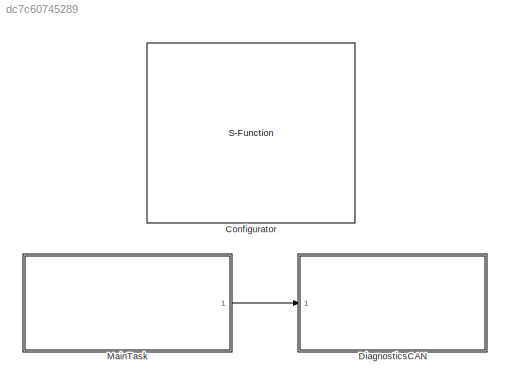
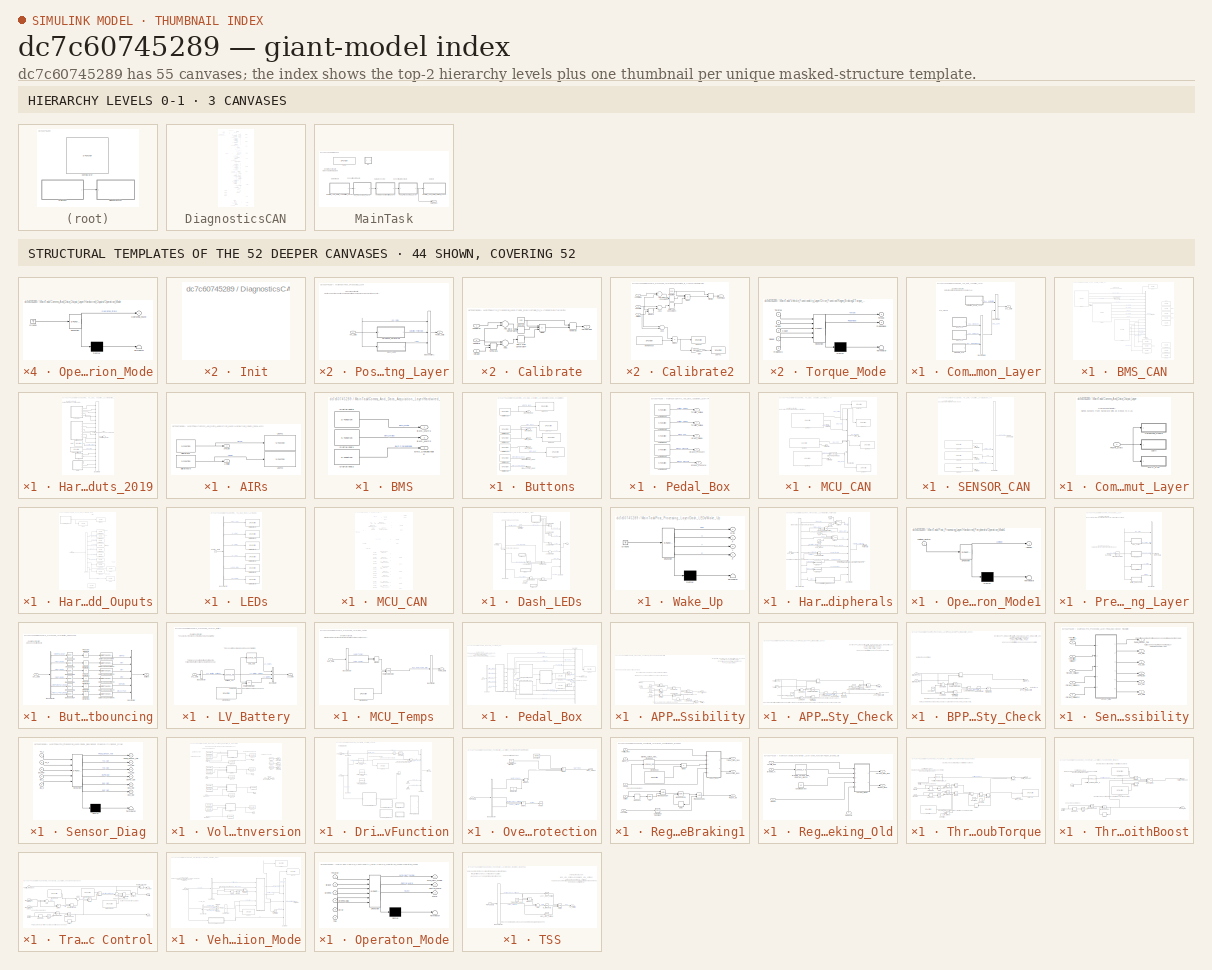
[diagram: thumbnail index - top-2 hierarchy levels (3 canvases) + 44 structural-template representatives of the remaining 52 canvases]
MODEL slx_dc7c60745289
KIND model
CONFIG AbsTol = auto
CONFIG EnableMultiTasking = off
CONFIG FixedStep = 0.0001
CONFIG MaxStep = auto
CONFIG MinStep = auto
CONFIG PostLoadFcn = model_init();
CONFIG RelTol = 1e-3
CONFIG SampleTimeConstraint = Unconstrained
CONFIG Solver = FixedStepDiscrete
CONFIG SolverName = FixedStepDiscrete
CONFIG StartTime = 0.0
CONFIG StopTime = inf
BLOCK [S-Function] Configurator
  EnableBusSupport = off
  FunctionName = NsiSys_Configurator
  OpenFcn = NsiSys_Configurator_OpenFcn();
  Parameters = main,io,nbof_can,can,ccp,flash,nbof_lin,lin,tasks
  Ports = []
  SFcnIsStateOwnerBlock = off
  SFunctionDeploymentMode = off
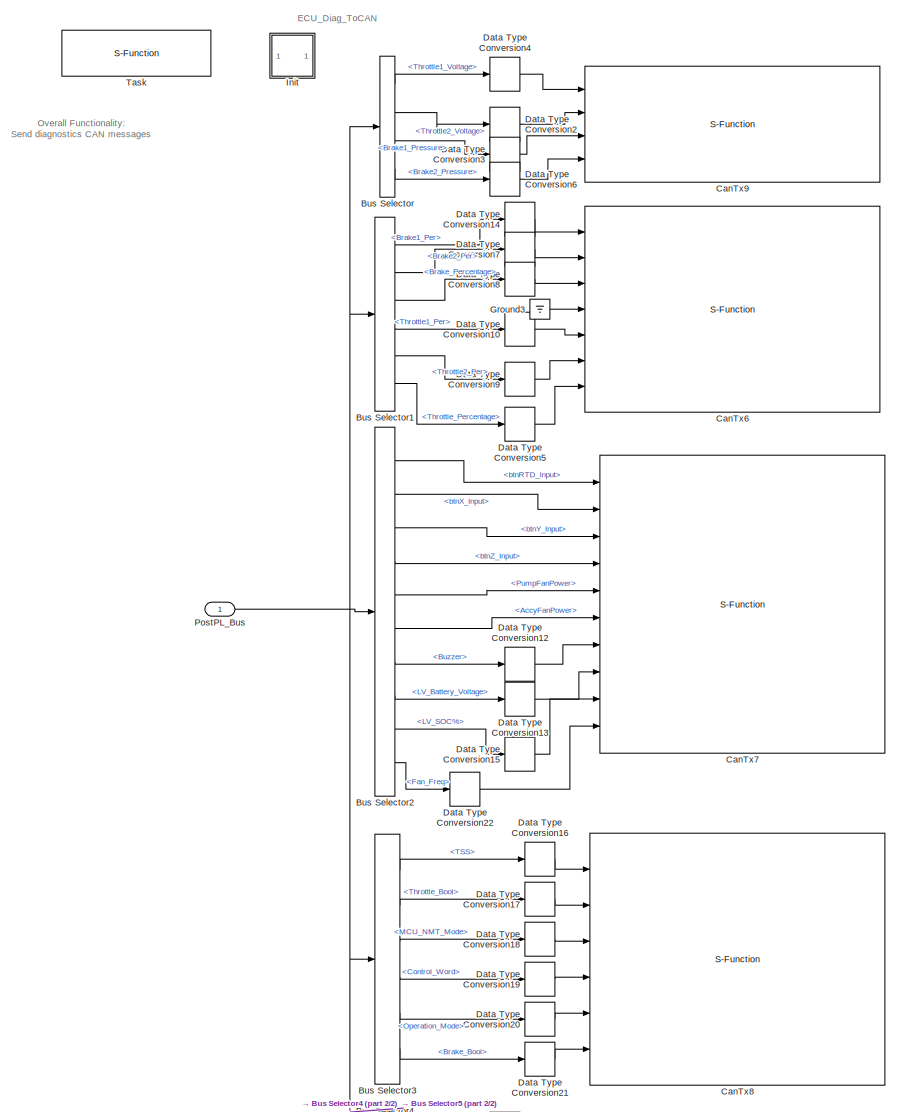
[diagram: DiagnosticsCAN - part 1/2, full width, top band]
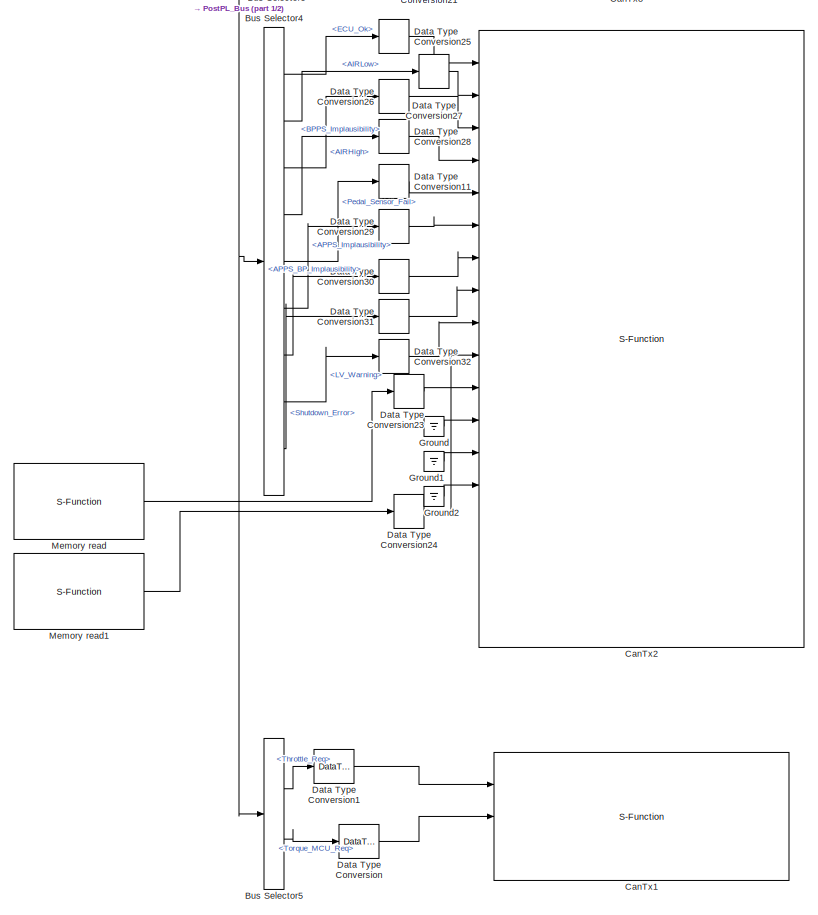
[diagram: DiagnosticsCAN - part 2/2, full width, bottom band]
BLOCK [SubSystem] DiagnosticsCAN
  Commented = on
  OpenFcn = NsiSys_SubSystemTask_OpenFcn();
  Ports = [1]
  RTWFcnName = DiagnosticsCAN
  RTWFcnNameOpts = User specified
  RTWFileName = FileTaskFcn
  RTWFileNameOpts = Use function name
  RTWSystemCode = Nonreusable function
  RequestExecContextInheritance = off
  SystemSampleTime = [0.1]
  TreatAsAtomicUnit = on
  Variant = off
BLOCK [BusSelector] DiagnosticsCAN/Bus Selector
  OutputAsBus = off
  OutputSignals = VFL_Data.PrePL_Data.DAL_Data.DAL_Hardwired.Throttle1_Voltage,VFL_Data.PrePL_Data.DAL_Data.DAL_Hardwired.Throttle2_Voltage,VFL_Data.PrePL_Data.DAL_Data.DAL_Hardwired.Brake1_Pressure,VFL_Data.PrePL_Data.DAL_Data.DAL_Hardwired.Brake2_Pressure
  Ports = [1, 4]
BLOCK [BusSelector] DiagnosticsCAN/Bus Selector1
  OutputAsBus = off
  OutputSignals = VFL_Data.PrePL_Data.Pedal_Box_Data.Brake1_Per,VFL_Data.PrePL_Data.Pedal_Box_Data.Brake2_Per,VFL_Data.PrePL_Data.Pedal_Box_Data.Brake_Percentage,VFL_Data.PrePL_Data.Pedal_Box_Data.Throttle1_Per,VFL_Data.PrePL_Data.Pedal_Box_Data.Throttle2_Per,VFL_Data.PrePL_Data.Pedal_Box_Data.Throttle_Percentage
  Ports = [1, 6]
BLOCK [BusSelector] DiagnosticsCAN/Bus Selector2
  OutputAsBus = off
  OutputSignals = VFL_Data.PrePL_Data.DAL_Data.DAL_Hardwired.btnRTD_Input,VFL_Data.PrePL_Data.DAL_Data.DAL_Hardwired.btnX_Input,VFL_Data.PrePL_Data.DAL_Data.DAL_Hardwired.btnY_Input,VFL_Data.PrePL_Data.DAL_Data.DAL_Hardwired.btnZ_Input,Hardwired_Peripherals.PumpFanPower,Hardwired_Peripherals.AccyFanPower,Hardwired_Peripherals.Buzzer,VFL_Data.PrePL_Data.LV_Battery.LV_Battery_Voltage,VFL_Data.PrePL_Data.LV_Battery.LV...<+57ch>
  Ports = [1, 10]
BLOCK [BusSelector] DiagnosticsCAN/Bus Selector3
  OutputAsBus = off
  OutputSignals = VFL_Data.VOM_Data.TSS,VFL_Data.PrePL_Data.Pedal_Box_Data.Throttle_Bool,VFL_Data.VOM_Data.MCU_NMT_Mode,VFL_Data.VOM_Data.Control_Word,VFL_Data.VOM_Data.Operation_Mode,VFL_Data.PrePL_Data.Pedal_Box_Data.Brake_Bool
  Ports = [1, 6]
BLOCK [BusSelector] DiagnosticsCAN/Bus Selector4
  OutputAsBus = off
  OutputSignals = Hardwired_Peripherals.ECU_Ok,VFL_Data.PrePL_Data.DAL_Data.DAL_Hardwired.AIRLow,VFL_Data.PrePL_Data.DAL_Data.DAL_Hardwired.AIRHigh,VFL_Data.PrePL_Data.Pedal_Box_Data.BPPS_Implausibility,VFL_Data.PrePL_Data.Pedal_Box_Data.Pedal_Sensor_Fail,VFL_Data.PrePL_Data.Pedal_Box_Data.APPS_Implausibility,VFL_Data.PrePL_Data.Pedal_Box_Data.APPS_BP_Implausibility,VFL_Data.PrePL_Data.LV_Battery.LV_Warning,VFL_Dat...<+58ch>
  Ports = [1, 9]
BLOCK [BusSelector] DiagnosticsCAN/Bus Selector5
  OutputAsBus = off
  OutputSignals = VFL_Data.Drive_Data.Throttle_Req,VFL_Data.Drive_Data.Torque_MCU_Req
  Ports = [1, 2]
BLOCK [S-Function] DiagnosticsCAN/CanTx1
  EnableBusSupport = off
  FunctionName = NsiCan_Tx_Ext
  OpenFcn = NsiCan_Tx_Ext_OpenFcn();
  Parameters = data_can,channel,msg_name,ident,ident_type,dlc,signals,is_physical,is_canfd,is_crc
  Ports = [3]
  SFcnIsStateOwnerBlock = off
  SFunctionDeploymentMode = off
BLOCK [S-Function] DiagnosticsCAN/CanTx2
  EnableBusSupport = off
  FunctionName = NsiCan_Tx_Ext
  OpenFcn = NsiCan_Tx_Ext_OpenFcn();
  Parameters = data_can,channel,msg_name,ident,ident_type,dlc,signals,is_physical,is_canfd,is_crc
  Ports = [18]
  SFcnIsStateOwnerBlock = off
  SFunctionDeploymentMode = off
BLOCK [S-Function] DiagnosticsCAN/CanTx6
  EnableBusSupport = off
  FunctionName = NsiCan_Tx_Ext
  OpenFcn = NsiCan_Tx_Ext_OpenFcn();
  Parameters = data_can,channel,msg_name,ident,ident_type,dlc,signals,is_physical,is_canfd,is_crc
  Ports = [7]
  SFcnIsStateOwnerBlock = off
  SFunctionDeploymentMode = off
BLOCK [S-Function] DiagnosticsCAN/CanTx7
  EnableBusSupport = off
  FunctionName = NsiCan_Tx_Ext
  OpenFcn = NsiCan_Tx_Ext_OpenFcn();
  Parameters = data_can,channel,msg_name,ident,ident_type,dlc,signals,is_physical,is_canfd,is_crc
  Ports = [10]
  SFcnIsStateOwnerBlock = off
  SFunctionDeploymentMode = off
BLOCK [S-Function] DiagnosticsCAN/CanTx8
  EnableBusSupport = off
  FunctionName = NsiCan_Tx_Ext
  OpenFcn = NsiCan_Tx_Ext_OpenFcn();
  Parameters = data_can,channel,msg_name,ident,ident_type,dlc,signals,is_physical,is_canfd,is_crc
  Ports = [6]
  SFcnIsStateOwnerBlock = off
  SFunctionDeploymentMode = off
BLOCK [S-Function] DiagnosticsCAN/CanTx9
  EnableBusSupport = off
  FunctionName = NsiCan_Tx_Ext
  OpenFcn = NsiCan_Tx_Ext_OpenFcn();
  Parameters = data_can,channel,msg_name,ident,ident_type,dlc,signals,is_physical,is_canfd,is_crc
  Ports = [4]
  SFcnIsStateOwnerBlock = off
  SFunctionDeploymentMode = off
BLOCK [DataTypeConversion] DiagnosticsCAN/Data Type Conversion
  RndMeth = Floor
  SaturateOnIntegerOverflow = off
BLOCK [DataTypeConversion] DiagnosticsCAN/Data Type Conversion1
  RndMeth = Floor
  SaturateOnIntegerOverflow = off
BLOCK [DataTypeConversion] DiagnosticsCAN/Data Type Conversion10
  RndMeth = Floor
  SaturateOnIntegerOverflow = off
BLOCK [DataTypeConversion] DiagnosticsCAN/Data Type Conversion11
  RndMeth = Floor
  SaturateOnIntegerOverflow = off
BLOCK [DataTypeConversion] DiagnosticsCAN/Data Type Conversion12
  RndMeth = Floor
  SaturateOnIntegerOverflow = off
BLOCK [DataTypeConversion] DiagnosticsCAN/Data Type Conversion13
  RndMeth = Floor
  SaturateOnIntegerOverflow = off
BLOCK [DataTypeConversion] DiagnosticsCAN/Data Type Conversion14
  RndMeth = Floor
  SaturateOnIntegerOverflow = off
BLOCK [DataTypeConversion] DiagnosticsCAN/Data Type Conversion15
  RndMeth = Floor
  SaturateOnIntegerOverflow = off
BLOCK [DataTypeConversion] DiagnosticsCAN/Data Type Conversion16
  RndMeth = Floor
  SaturateOnIntegerOverflow = off
BLOCK [DataTypeConversion] DiagnosticsCAN/Data Type Conversion17
  RndMeth = Floor
  SaturateOnIntegerOverflow = off
BLOCK [DataTypeConversion] DiagnosticsCAN/Data Type Conversion18
  RndMeth = Floor
  SaturateOnIntegerOverflow = off
BLOCK [DataTypeConversion] DiagnosticsCAN/Data Type Conversion19
  RndMeth = Floor
  SaturateOnIntegerOverflow = off
BLOCK [DataTypeConversion] DiagnosticsCAN/Data Type Conversion2
  RndMeth = Floor
  SaturateOnIntegerOverflow = off
BLOCK [DataTypeConversion] DiagnosticsCAN/Data Type Conversion20
  RndMeth = Floor
  SaturateOnIntegerOverflow = off
BLOCK [DataTypeConversion] DiagnosticsCAN/Data Type Conversion21
  RndMeth = Floor
  SaturateOnIntegerOverflow = off
BLOCK [DataTypeConversion] DiagnosticsCAN/Data Type Conversion22
  RndMeth = Floor
  SaturateOnIntegerOverflow = off
BLOCK [DataTypeConversion] DiagnosticsCAN/Data Type Conversion23
  RndMeth = Floor
  SaturateOnIntegerOverflow = off
BLOCK [DataTypeConversion] DiagnosticsCAN/Data Type Conversion24
  RndMeth = Floor
  SaturateOnIntegerOverflow = off
BLOCK [DataTypeConversion] DiagnosticsCAN/Data Type Conversion25
  RndMeth = Floor
  SaturateOnIntegerOverflow = off
BLOCK [DataTypeConversion] DiagnosticsCAN/Data Type Conversion26
  RndMeth = Floor
  SaturateOnIntegerOverflow = off
BLOCK [DataTypeConversion] DiagnosticsCAN/Data Type Conversion27
  RndMeth = Floor
  SaturateOnIntegerOverflow = off
BLOCK [DataTypeConversion] DiagnosticsCAN/Data Type Conversion28
  RndMeth = Floor
  SaturateOnIntegerOverflow = off
BLOCK [DataTypeConversion] DiagnosticsCAN/Data Type Conversion29
  RndMeth = Floor
  SaturateOnIntegerOverflow = off
BLOCK [DataTypeConversion] DiagnosticsCAN/Data Type Conversion3
  RndMeth = Floor
  SaturateOnIntegerOverflow = off
BLOCK [DataTypeConversion] DiagnosticsCAN/Data Type Conversion30
  RndMeth = Floor
  SaturateOnIntegerOverflow = off
BLOCK [DataTypeConversion] DiagnosticsCAN/Data Type Conversion31
  RndMeth = Floor
  SaturateOnIntegerOverflow = off
BLOCK [DataTypeConversion] DiagnosticsCAN/Data Type Conversion32
  RndMeth = Floor
  SaturateOnIntegerOverflow = off
BLOCK [DataTypeConversion] DiagnosticsCAN/Data Type Conversion4
  RndMeth = Floor
  SaturateOnIntegerOverflow = off
BLOCK [DataTypeConversion] DiagnosticsCAN/Data Type Conversion5
  RndMeth = Floor
  SaturateOnIntegerOverflow = off
BLOCK [DataTypeConversion] DiagnosticsCAN/Data Type Conversion6
  RndMeth = Floor
  SaturateOnIntegerOverflow = off
BLOCK [DataTypeConversion] DiagnosticsCAN/Data Type Conversion7
  RndMeth = Floor
  SaturateOnIntegerOverflow = off
BLOCK [DataTypeConversion] DiagnosticsCAN/Data Type Conversion8
  RndMeth = Floor
  SaturateOnIntegerOverflow = off
BLOCK [DataTypeConversion] DiagnosticsCAN/Data Type Conversion9
  RndMeth = Floor
  SaturateOnIntegerOverflow = off
BLOCK [Ground] DiagnosticsCAN/Ground
BLOCK [Ground] DiagnosticsCAN/Ground1
BLOCK [Ground] DiagnosticsCAN/Ground2
BLOCK [Ground] DiagnosticsCAN/Ground3
BLOCK [SubSystem] DiagnosticsCAN/Init
  CopyFcn = cccopyfcn(gcb)
  OpenFcn = ccopenfcn('System Initialize Function')
  Ports = []
  RequestExecContextInheritance = off
  Variant = off
BLOCK [S-Function] DiagnosticsCAN/Memory read
  EnableBusSupport = off
  FunctionName = NsiMem_Read
  OpenFcn = NsiMem_Read_OpenFcn();
  Parameters = name_var,type_var,size_var,tunable_var
  Ports = [0, 1]
  SFcnIsStateOwnerBlock = off
  SFunctionDeploymentMode = off
BLOCK [S-Function] DiagnosticsCAN/Memory read1
  EnableBusSupport = off
  FunctionName = NsiMem_Read
  OpenFcn = NsiMem_Read_OpenFcn();
  Parameters = name_var,type_var,size_var,tunable_var
  Ports = [0, 1]
  SFcnIsStateOwnerBlock = off
  SFunctionDeploymentMode = off
BLOCK [Inport] DiagnosticsCAN/PostPL_Bus
  IconDisplay = Port number
BLOCK [S-Function] DiagnosticsCAN/Task
  EnableBusSupport = off
  FunctionName = NsiSys_TaskREF
  OpenFcn = NsiSys_Task_OpenFcn();
  Parameters = task_initialised,task_periodic, task_sampletime,task_name,task_event,task_offset
  Ports = []
  SFcnIsStateOwnerBlock = off
  SFunctionDeploymentMode = off
BLOCK [SubSystem] MainTask
  OpenFcn = NsiSys_SubSystemTask_OpenFcn();
  Ports = [0, 1]
  RTWFcnName = MainTask
  RTWFcnNameOpts = User specified
  RTWFileName = FileTaskFcn
  RTWFileNameOpts = Use function name
  RTWSystemCode = Nonreusable function
  RequestExecContextInheritance = off
  SystemSampleTime = [0.01]
  TreatAsAtomicUnit = on
  Variant = off
BLOCK [SubSystem] MainTask/Comms_And_Data_Acquisition_Layer
  Ports = [0, 1]
  RequestExecContextInheritance = off
  Variant = off
BLOCK [SubSystem] MainTask/Comms_And_Data_Acquisition_Layer/BMS_CAN
  Ports = [0, 1]
  RequestExecContextInheritance = off
  Variant = off
BLOCK [Outport] MainTask/Comms_And_Data_Acquisition_Layer/BMS_CAN/BMS_Data
  IconDisplay = Port number
BLOCK [BusCreator] MainTask/Comms_And_Data_Acquisition_Layer/BMS_CAN/Bus Creator4
  DisplayOption = bar
  InheritFromInputs = on
  Inputs = 15
  Ports = [15, 1]
BLOCK [S-Function] MainTask/Comms_And_Data_Acquisition_Layer/BMS_CAN/CanRx1
  EnableBusSupport = off
  FunctionName = NsiCan_Rx_Ext
  OpenFcn = NsiCan_Rx_Ext_OpenFcn();
  Parameters = data_can,channel,msg_name,ident,ident_type,dlc,signals,is_trigger,is_physical,is_canfd,is_rxgw
  Ports = [0, 7]
  SFcnIsStateOwnerBlock = off
  SFunctionDeploymentMode = off
BLOCK [S-Function] MainTask/Comms_And_Data_Acquisition_Layer/BMS_CAN/CanRx6
  EnableBusSupport = off
  FunctionName = NsiCan_Rx_Ext
  OpenFcn = NsiCan_Rx_Ext_OpenFcn();
  Parameters = data_can,channel,msg_name,ident,ident_type,dlc,signals,is_trigger,is_physical,is_canfd,is_rxgw
  Ports = [0, 5]
  SFcnIsStateOwnerBlock = off
  SFunctionDeploymentMode = off
BLOCK [S-Function] MainTask/Comms_And_Data_Acquisition_Layer/BMS_CAN/CanRx7
  EnableBusSupport = off
  FunctionName = NsiCan_Rx_Ext
  OpenFcn = NsiCan_Rx_Ext_OpenFcn();
  Parameters = data_can,channel,msg_name,ident,ident_type,dlc,signals,is_trigger,is_physical,is_canfd,is_rxgw
  Ports = [0, 6]
  SFcnIsStateOwnerBlock = off
  SFunctionDeploymentMode = off
BLOCK [DataTypeConversion] MainTask/Comms_And_Data_Acquisition_Layer/BMS_CAN/Data Type Conversion
  OutDataTypeStr = int16
  RndMeth = Floor
  SaturateOnIntegerOverflow = off
BLOCK [Terminator] MainTask/Comms_And_Data_Acquisition_Layer/BMS_CAN/Terminator
BLOCK [S-Function] MainTask/Comms_And_Data_Acquisition_Layer/BMS_CAN/UsbTx1
  EnableBusSupport = off
  FunctionName = NsiUsb_Tx
  OpenFcn = NsiUsb_Tx_OpenFcn();
  Parameters = signame,resolution,offset,unite
  Ports = [1]
  SFcnIsStateOwnerBlock = off
  SFunctionDeploymentMode = off
BLOCK [S-Function] MainTask/Comms_And_Data_Acquisition_Layer/BMS_CAN/UsbTx10
  EnableBusSupport = off
  FunctionName = NsiUsb_Tx
  OpenFcn = NsiUsb_Tx_OpenFcn();
  Parameters = signame,resolution,offset,unite
  Ports = [1]
  SFcnIsStateOwnerBlock = off
  SFunctionDeploymentMode = off
BLOCK [S-Function] MainTask/Comms_And_Data_Acquisition_Layer/BMS_CAN/UsbTx11
  EnableBusSupport = off
  FunctionName = NsiUsb_Tx
  OpenFcn = NsiUsb_Tx_OpenFcn();
  Parameters = signame,resolution,offset,unite
  Ports = [1]
  SFcnIsStateOwnerBlock = off
  SFunctionDeploymentMode = off
BLOCK [S-Function] MainTask/Comms_And_Data_Acquisition_Layer/BMS_CAN/UsbTx12
  EnableBusSupport = off
  FunctionName = NsiUsb_Tx
  OpenFcn = NsiUsb_Tx_OpenFcn();
  Parameters = signame,resolution,offset,unite
  Ports = [1]
  SFcnIsStateOwnerBlock = off
  SFunctionDeploymentMode = off
BLOCK [S-Function] MainTask/Comms_And_Data_Acquisition_Layer/BMS_CAN/UsbTx13
  Commented = on
  EnableBusSupport = off
  FunctionName = NsiUsb_Tx
  OpenFcn = NsiUsb_Tx_OpenFcn();
  Parameters = signame,resolution,offset,unite
  Ports = [1]
  SFcnIsStateOwnerBlock = off
  SFunctionDeploymentMode = off
BLOCK [S-Function] MainTask/Comms_And_Data_Acquisition_Layer/BMS_CAN/UsbTx14
  Commented = on
  EnableBusSupport = off
  FunctionName = NsiUsb_Tx
  OpenFcn = NsiUsb_Tx_OpenFcn();
  Parameters = signame,resolution,offset,unite
  Ports = [1]
  SFcnIsStateOwnerBlock = off
  SFunctionDeploymentMode = off
BLOCK [S-Function] MainTask/Comms_And_Data_Acquisition_Layer/BMS_CAN/UsbTx15
  Commented = on
  EnableBusSupport = off
  FunctionName = NsiUsb_Tx
  OpenFcn = NsiUsb_Tx_OpenFcn();
  Parameters = signame,resolution,offset,unite
  Ports = [1]
  SFcnIsStateOwnerBlock = off
  SFunctionDeploymentMode = off
BLOCK [S-Function] MainTask/Comms_And_Data_Acquisition_Layer/BMS_CAN/UsbTx5
  Commented = on
  EnableBusSupport = off
  FunctionName = NsiUsb_Tx
  OpenFcn = NsiUsb_Tx_OpenFcn();
  Parameters = signame,resolution,offset,unite
  Ports = [1]
  SFcnIsStateOwnerBlock = off
  SFunctionDeploymentMode = off
BLOCK [S-Function] MainTask/Comms_And_Data_Acquisition_Layer/BMS_CAN/UsbTx6
  Commented = on
  EnableBusSupport = off
  FunctionName = NsiUsb_Tx
  OpenFcn = NsiUsb_Tx_OpenFcn();
  Parameters = signame,resolution,offset,unite
  Ports = [1]
  SFcnIsStateOwnerBlock = off
  SFunctionDeploymentMode = off
BLOCK [S-Function] MainTask/Comms_And_Data_Acquisition_Layer/BMS_CAN/UsbTx7
  Commented = on
  EnableBusSupport = off
  FunctionName = NsiUsb_Tx
  OpenFcn = NsiUsb_Tx_OpenFcn();
  Parameters = signame,resolution,offset,unite
  Ports = [1]
  SFcnIsStateOwnerBlock = off
  SFunctionDeploymentMode = off
BLOCK [S-Function] MainTask/Comms_And_Data_Acquisition_Layer/BMS_CAN/UsbTx8
  Commented = on
  EnableBusSupport = off
  FunctionName = NsiUsb_Tx
  OpenFcn = NsiUsb_Tx_OpenFcn();
  Parameters = signame,resolution,offset,unite
  Ports = [1]
  SFcnIsStateOwnerBlock = off
  SFunctionDeploymentMode = off
BLOCK [S-Function] MainTask/Comms_And_Data_Acquisition_Layer/BMS_CAN/UsbTx9
  Commented = on
  EnableBusSupport = off
  FunctionName = NsiUsb_Tx
  OpenFcn = NsiUsb_Tx_OpenFcn();
  Parameters = signame,resolution,offset,unite
  Ports = [1]
  SFcnIsStateOwnerBlock = off
  SFunctionDeploymentMode = off
BLOCK [BusCreator] MainTask/Comms_And_Data_Acquisition_Layer/Bus Creator
  DisplayOption = bar
  InheritFromInputs = on
  Inputs = 2
  Ports = [2, 1]
BLOCK [BusCreator] MainTask/Comms_And_Data_Acquisition_Layer/Bus Creator1
  DisplayOption = bar
  InheritFromInputs = on
  Inputs = 3
  Ports = [3, 1]
BLOCK [Outport] MainTask/Comms_And_Data_Acquisition_Layer/DAL_Data
  IconDisplay = Port number
BLOCK [SubSystem] MainTask/Comms_And_Data_Acquisition_Layer/Hardwired_Inputs_2019
  Ports = [0, 1]
  RequestExecContextInheritance = off
  Variant = off
BLOCK [SubSystem] MainTask/Comms_And_Data_Acquisition_Layer/Hardwired_Inputs_2019/AIRs
  Ports = [0, 2]
  RequestExecContextInheritance = off
  Variant = off
BLOCK [Outport] MainTask/Comms_And_Data_Acquisition_Layer/Hardwired_Inputs_2019/AIRs/AIRHigh
  IconDisplay = Port number
  Port = 2
BLOCK [Outport] MainTask/Comms_And_Data_Acquisition_Layer/Hardwired_Inputs_2019/AIRs/AIRLow
  IconDisplay = Port number
BLOCK [S-Function] MainTask/Comms_And_Data_Acquisition_Layer/Hardwired_Inputs_2019/AIRs/DigitalInput
  EnableBusSupport = off
  FunctionName = NsiIo_DigitalInput
  OpenFcn = NsiIo_DigitalInput_OpenFcn();
  Parameters = channel,is_trigger,typeof_trigger,is_wakeup,wakeup_level
  Ports = [0, 1]
  SFcnIsStateOwnerBlock = off
  SFunctionDeploymentMode = off
BLOCK [S-Function] MainTask/Comms_And_Data_Acquisition_Layer/Hardwired_Inputs_2019/AIRs/DigitalInput5
  EnableBusSupport = off
  FunctionName = NsiIo_DigitalInput
  OpenFcn = NsiIo_DigitalInput_OpenFcn();
  Parameters = channel,is_trigger,typeof_trigger,is_wakeup,wakeup_level
  Ports = [0, 1]
  SFcnIsStateOwnerBlock = off
  SFunctionDeploymentMode = off
BLOCK [S-Function] MainTask/Comms_And_Data_Acquisition_Layer/Hardwired_Inputs_2019/AIRs/UsbTx1
  EnableBusSupport = off
  FunctionName = NsiUsb_Tx
  OpenFcn = NsiUsb_Tx_OpenFcn();
  Parameters = signame,resolution,offset,unite
  Ports = [1]
  SFcnIsStateOwnerBlock = off
  SFunctionDeploymentMode = off
BLOCK [S-Function] MainTask/Comms_And_Data_Acquisition_Layer/Hardwired_Inputs_2019/AIRs/UsbTx2
  EnableBusSupport = off
  FunctionName = NsiUsb_Tx
  OpenFcn = NsiUsb_Tx_OpenFcn();
  Parameters = signame,resolution,offset,unite
  Ports = [1]
  SFcnIsStateOwnerBlock = off
  SFunctionDeploymentMode = off
BLOCK [SubSystem] MainTask/Comms_And_Data_Acquisition_Layer/Hardwired_Inputs_2019/BMS
  Ports = [0, 3]
  RequestExecContextInheritance = off
  Variant = off
BLOCK [Outport] MainTask/Comms_And_Data_Acquisition_Layer/Hardwired_Inputs_2019/BMS/BMS_ChargeEnable
  IconDisplay = Port number
  Port = 3
BLOCK [Outport] MainTask/Comms_And_Data_Acquisition_Layer/Hardwired_Inputs_2019/BMS/BMS_Multi1
  IconDisplay = Port number
BLOCK [Outport] MainTask/Comms_And_Data_Acquisition_Layer/Hardwired_Inputs_2019/BMS/BMS_Multi2
  IconDisplay = Port number
  Port = 2
BLOCK [S-Function] MainTask/Comms_And_Data_Acquisition_Layer/Hardwired_Inputs_2019/BMS/DigitalInput1
  EnableBusSupport = off
  FunctionName = NsiIo_DigitalInput
  OpenFcn = NsiIo_DigitalInput_OpenFcn();
  Parameters = channel,is_trigger,typeof_trigger,is_wakeup,wakeup_level
  Ports = [0, 1]
  SFcnIsStateOwnerBlock = off
  SFunctionDeploymentMode = off
BLOCK [S-Function] MainTask/Comms_And_Data_Acquisition_Layer/Hardwired_Inputs_2019/BMS/DigitalInput2
  EnableBusSupport = off
  FunctionName = NsiIo_DigitalInput
  OpenFcn = NsiIo_DigitalInput_OpenFcn();
  Parameters = channel,is_trigger,typeof_trigger,is_wakeup,wakeup_level
  Ports = [0, 1]
  SFcnIsStateOwnerBlock = off
  SFunctionDeploymentMode = off
BLOCK [S-Function] MainTask/Comms_And_Data_Acquisition_Layer/Hardwired_Inputs_2019/BMS/DigitalInput6
  EnableBusSupport = off
  FunctionName = NsiIo_DigitalInput
  OpenFcn = NsiIo_DigitalInput_OpenFcn();
  Parameters = channel,is_trigger,typeof_trigger,is_wakeup,wakeup_level
  Ports = [0, 1]
  SFcnIsStateOwnerBlock = off
  SFunctionDeploymentMode = off
BLOCK [BusCreator] MainTask/Comms_And_Data_Acquisition_Layer/Hardwired_Inputs_2019/Bus Creator
  DisplayOption = bar
  InheritFromInputs = on
  Inputs = 18
  Ports = [18, 1]
BLOCK [SubSystem] MainTask/Comms_And_Data_Acquisition_Layer/Hardwired_Inputs_2019/Buttons
  Ports = [0, 6]
  RequestExecContextInheritance = off
  Variant = off
BLOCK [S-Function] MainTask/Comms_And_Data_Acquisition_Layer/Hardwired_Inputs_2019/Buttons/DigitalInput1
  EnableBusSupport = off
  FunctionName = NsiIo_DigitalInput
  OpenFcn = NsiIo_DigitalInput_OpenFcn();
  Parameters = channel,is_trigger,typeof_trigger,is_wakeup,wakeup_level
  Ports = [0, 1]
  SFcnIsStateOwnerBlock = off
  SFunctionDeploymentMode = off
BLOCK [S-Function] MainTask/Comms_And_Data_Acquisition_Layer/Hardwired_Inputs_2019/Buttons/DigitalInput2
  EnableBusSupport = off
  FunctionName = NsiIo_DigitalInput
  OpenFcn = NsiIo_DigitalInput_OpenFcn();
  Parameters = channel,is_trigger,typeof_trigger,is_wakeup,wakeup_level
  Ports = [0, 1]
  SFcnIsStateOwnerBlock = off
  SFunctionDeploymentMode = off
BLOCK [S-Function] MainTask/Comms_And_Data_Acquisition_Layer/Hardwired_Inputs_2019/Buttons/DigitalInput3
  EnableBusSupport = off
  FunctionName = NsiIo_DigitalInput
  OpenFcn = NsiIo_DigitalInput_OpenFcn();
  Parameters = channel,is_trigger,typeof_trigger,is_wakeup,wakeup_level
  Ports = [0, 1]
  SFcnIsStateOwnerBlock = off
  SFunctionDeploymentMode = off
BLOCK [S-Function] MainTask/Comms_And_Data_Acquisition_Layer/Hardwired_Inputs_2019/Buttons/DigitalInput4
  EnableBusSupport = off
  FunctionName = NsiIo_DigitalInput
  OpenFcn = NsiIo_DigitalInput_OpenFcn();
  Parameters = channel,is_trigger,typeof_trigger,is_wakeup,wakeup_level
  Ports = [0, 1]
  SFcnIsStateOwnerBlock = off
  SFunctionDeploymentMode = off
BLOCK [S-Function] MainTask/Comms_And_Data_Acquisition_Layer/Hardwired_Inputs_2019/Buttons/DigitalInput5
  EnableBusSupport = off
  FunctionName = NsiIo_DigitalInput
  OpenFcn = NsiIo_DigitalInput_OpenFcn();
  Parameters = channel,is_trigger,typeof_trigger,is_wakeup,wakeup_level
  Ports = [0, 1]
  SFcnIsStateOwnerBlock = off
  SFunctionDeploymentMode = off
BLOCK [S-Function] MainTask/Comms_And_Data_Acquisition_Layer/Hardwired_Inputs_2019/Buttons/DigitalInput6
  EnableBusSupport = off
  FunctionName = NsiIo_DigitalInput
  OpenFcn = NsiIo_DigitalInput_OpenFcn();
  Parameters = channel,is_trigger,typeof_trigger,is_wakeup,wakeup_level
  Ports = [0, 1]
  SFcnIsStateOwnerBlock = off
  SFunctionDeploymentMode = off
BLOCK [S-Function] MainTask/Comms_And_Data_Acquisition_Layer/Hardwired_Inputs_2019/Buttons/UsbTx1
  EnableBusSupport = off
  FunctionName = NsiUsb_Tx
  OpenFcn = NsiUsb_Tx_OpenFcn();
  Parameters = signame,resolution,offset,unite
  Ports = [1]
  SFcnIsStateOwnerBlock = off
  SFunctionDeploymentMode = off
BLOCK [S-Function] MainTask/Comms_And_Data_Acquisition_Layer/Hardwired_Inputs_2019/Buttons/UsbTx2
  EnableBusSupport = off
  FunctionName = NsiUsb_Tx
  OpenFcn = NsiUsb_Tx_OpenFcn();
  Parameters = signame,resolution,offset,unite
  Ports = [1]
  SFcnIsStateOwnerBlock = off
  SFunctionDeploymentMode = off
BLOCK [S-Function] MainTask/Comms_And_Data_Acquisition_Layer/Hardwired_Inputs_2019/Buttons/UsbTx3
  EnableBusSupport = off
  FunctionName = NsiUsb_Tx
  OpenFcn = NsiUsb_Tx_OpenFcn();
  Parameters = signame,resolution,offset,unite
  Ports = [1]
  SFcnIsStateOwnerBlock = off
  SFunctionDeploymentMode = off
BLOCK [S-Function] MainTask/Comms_And_Data_Acquisition_Layer/Hardwired_Inputs_2019/Buttons/UsbTx4
  EnableBusSupport = off
  FunctionName = NsiUsb_Tx
  OpenFcn = NsiUsb_Tx_OpenFcn();
  Parameters = signame,resolution,offset,unite
  Ports = [1]
  SFcnIsStateOwnerBlock = off
  SFunctionDeploymentMode = off
BLOCK [Outport] MainTask/Comms_And_Data_Acquisition_Layer/Hardwired_Inputs_2019/Buttons/btnAccyFan_Input
  IconDisplay = Port number
  Port = 6
BLOCK [Outport] MainTask/Comms_And_Data_Acquisition_Layer/Hardwired_Inputs_2019/Buttons/btnPumpFan_Input
  IconDisplay = Port number
  Port = 5
BLOCK [Outport] MainTask/Comms_And_Data_Acquisition_Layer/Hardwired_Inputs_2019/Buttons/btnRTD_Input
  IconDisplay = Port number
BLOCK [Outport] MainTask/Comms_And_Data_Acquisition_Layer/Hardwired_Inputs_2019/Buttons/btnX_Input
  IconDisplay = Port number
  Port = 2
BLOCK [Outport] MainTask/Comms_And_Data_Acquisition_Layer/Hardwired_Inputs_2019/Buttons/btnY_Input
  IconDisplay = Port number
  Port = 3
BLOCK [Outport] MainTask/Comms_And_Data_Acquisition_Layer/Hardwired_Inputs_2019/Buttons/btnZ_Input
  IconDisplay = Port number
  Port = 4
BLOCK [S-Function] MainTask/Comms_And_Data_Acquisition_Layer/Hardwired_Inputs_2019/FrequentialInput1
  EnableBusSupport = off
  FunctionName = NsiIo_FrequencyInput
  OpenFcn = NsiIo_FrequencyInput_OpenFcn();
  Parameters = channel,max_freq,is_digital_input,DutyCycle,MUXlabType
  Ports = [0, 1]
  SFcnIsStateOwnerBlock = off
  SFunctionDeploymentMode = off
BLOCK [Outport] MainTask/Comms_And_Data_Acquisition_Layer/Hardwired_Inputs_2019/Hardwired_Inputs
  IconDisplay = Port number
BLOCK [SubSystem] MainTask/Comms_And_Data_Acquisition_Layer/Hardwired_Inputs_2019/Pedal_Box
  Ports = [0, 5]
  RequestExecContextInheritance = off
  Variant = off
BLOCK [S-Function] MainTask/Comms_And_Data_Acquisition_Layer/Hardwired_Inputs_2019/Pedal_Box/AnalogInput1
  EnableBusSupport = off
  FunctionName = NsiIo_AnalogInput
  OpenFcn = NsiIo_AnalogInput_OpenFcn();
  Parameters = channel
  Ports = [0, 1]
  SFcnIsStateOwnerBlock = off
  SFunctionDeploymentMode = off
BLOCK [S-Function] MainTask/Comms_And_Data_Acquisition_Layer/Hardwired_Inputs_2019/Pedal_Box/AnalogInput2
  EnableBusSupport = off
  FunctionName = NsiIo_AnalogInput
  OpenFcn = NsiIo_AnalogInput_OpenFcn();
  Parameters = channel
  Ports = [0, 1]
  SFcnIsStateOwnerBlock = off
  SFunctionDeploymentMode = off
BLOCK [S-Function] MainTask/Comms_And_Data_Acquisition_Layer/Hardwired_Inputs_2019/Pedal_Box/AnalogInput3
  EnableBusSupport = off
  FunctionName = NsiIo_AnalogInput
  OpenFcn = NsiIo_AnalogInput_OpenFcn();
  Parameters = channel
  Ports = [0, 1]
  SFcnIsStateOwnerBlock = off
  SFunctionDeploymentMode = off
BLOCK [S-Function] MainTask/Comms_And_Data_Acquisition_Layer/Hardwired_Inputs_2019/Pedal_Box/AnalogInput6
  EnableBusSupport = off
  FunctionName = NsiIo_AnalogInput
  OpenFcn = NsiIo_AnalogInput_OpenFcn();
  Parameters = channel
  Ports = [0, 1]
  SFcnIsStateOwnerBlock = off
  SFunctionDeploymentMode = off
BLOCK [S-Function] MainTask/Comms_And_Data_Acquisition_Layer/Hardwired_Inputs_2019/Pedal_Box/AnalogInput7
  EnableBusSupport = off
  FunctionName = NsiIo_AnalogInput
  OpenFcn = NsiIo_AnalogInput_OpenFcn();
  Parameters = channel
  Ports = [0, 1]
  SFcnIsStateOwnerBlock = off
  SFunctionDeploymentMode = off
BLOCK [Outport] MainTask/Comms_And_Data_Acquisition_Layer/Hardwired_Inputs_2019/Pedal_Box/Brake1_Pressure
  IconDisplay = Port number
  Port = 4
BLOCK [Outport] MainTask/Comms_And_Data_Acquisition_Layer/Hardwired_Inputs_2019/Pedal_Box/Brake2_Pressure
  IconDisplay = Port number
  Port = 5
BLOCK [Outport] MainTask/Comms_And_Data_Acquisition_Layer/Hardwired_Inputs_2019/Pedal_Box/Brake_Voltage
  IconDisplay = Port number
  Port = 3
BLOCK [Outport] MainTask/Comms_And_Data_Acquisition_Layer/Hardwired_Inputs_2019/Pedal_Box/Throttle1_Voltage
  IconDisplay = Port number
BLOCK [Outport] MainTask/Comms_And_Data_Acquisition_Layer/Hardwired_Inputs_2019/Pedal_Box/Throttle2_Voltage
  IconDisplay = Port number
  Port = 2
BLOCK [S-Function] MainTask/Comms_And_Data_Acquisition_Layer/Hardwired_Inputs_2019/VBat
  EnableBusSupport = off
  FunctionName = NsiIo_Vbat
  OpenFcn = NsiIo_Vbat_OpenFcn();
  Ports = [0, 1]
  SFcnIsStateOwnerBlock = off
  SFunctionDeploymentMode = off
BLOCK [SubSystem] MainTask/Comms_And_Data_Acquisition_Layer/MCU_CAN
  Ports = [0, 1]
  RequestExecContextInheritance = off
  Variant = off
BLOCK [BusCreator] MainTask/Comms_And_Data_Acquisition_Layer/MCU_CAN/Bus Creator1
  DisplayOption = bar
  InheritFromInputs = on
  Inputs = 4
  Ports = [4, 1]
BLOCK [S-Function] MainTask/Comms_And_Data_Acquisition_Layer/MCU_CAN/CanRx1
  EnableBusSupport = off
  FunctionName = NsiCan_Rx_J1939_Ext
  OpenFcn = NsiCan_Rx_J1939_Ext_OpenFcn();
  Parameters = data_can,channel,msg_name,ident,ident_type,dlc,signals,is_trigger,is_SA_Masked,is_TA_Masked,is_physical,is_canfd
  Ports = [0, 3]
  SFcnIsStateOwnerBlock = off
  SFunctionDeploymentMode = off
BLOCK [S-Function] MainTask/Comms_And_Data_Acquisition_Layer/MCU_CAN/CanRx2
  EnableBusSupport = off
  FunctionName = NsiCan_Rx_J1939_Ext
  OpenFcn = NsiCan_Rx_J1939_Ext_OpenFcn();
  Parameters = data_can,channel,msg_name,ident,ident_type,dlc,signals,is_trigger,is_SA_Masked,is_TA_Masked,is_physical,is_canfd
  Ports = [0, 2]
  SFcnIsStateOwnerBlock = off
  SFunctionDeploymentMode = off
BLOCK [S-Function] MainTask/Comms_And_Data_Acquisition_Layer/MCU_CAN/CanRx3
  EnableBusSupport = off
  FunctionName = NsiCan_Rx_J1939_Ext
  OpenFcn = NsiCan_Rx_J1939_Ext_OpenFcn();
  Parameters = data_can,channel,msg_name,ident,ident_type,dlc,signals,is_trigger,is_SA_Masked,is_TA_Masked,is_physical,is_canfd
  Ports = [0, 3]
  SFcnIsStateOwnerBlock = off
  SFunctionDeploymentMode = off
BLOCK [DataTypeConversion] MainTask/Comms_And_Data_Acquisition_Layer/MCU_CAN/Data Type Conversion
  OutDataTypeStr = int16
  RndMeth = Floor
  SaturateOnIntegerOverflow = off
BLOCK [Outport] MainTask/Comms_And_Data_Acquisition_Layer/MCU_CAN/HAL_MCU
  IconDisplay = Port number
BLOCK [Terminator] MainTask/Comms_And_Data_Acquisition_Layer/MCU_CAN/Terminator
BLOCK [Terminator] MainTask/Comms_And_Data_Acquisition_Layer/MCU_CAN/Terminator1
BLOCK [Terminator] MainTask/Comms_And_Data_Acquisition_Layer/MCU_CAN/Terminator2
BLOCK [S-Function] MainTask/Comms_And_Data_Acquisition_Layer/MCU_CAN/UsbTx1
  EnableBusSupport = off
  FunctionName = NsiUsb_Tx
  OpenFcn = NsiUsb_Tx_OpenFcn();
  Parameters = signame,resolution,offset,unite
  Ports = [1]
  SFcnIsStateOwnerBlock = off
  SFunctionDeploymentMode = off
BLOCK [S-Function] MainTask/Comms_And_Data_Acquisition_Layer/MCU_CAN/UsbTx2
  EnableBusSupport = off
  FunctionName = NsiUsb_Tx
  OpenFcn = NsiUsb_Tx_OpenFcn();
  Parameters = signame,resolution,offset,unite
  Ports = [1]
  SFcnIsStateOwnerBlock = off
  SFunctionDeploymentMode = off
BLOCK [S-Function] MainTask/Comms_And_Data_Acquisition_Layer/MCU_CAN/UsbTx3
  EnableBusSupport = off
  FunctionName = NsiUsb_Tx
  OpenFcn = NsiUsb_Tx_OpenFcn();
  Parameters = signame,resolution,offset,unite
  Ports = [1]
  SFcnIsStateOwnerBlock = off
  SFunctionDeploymentMode = off
BLOCK [S-Function] MainTask/Comms_And_Data_Acquisition_Layer/MCU_CAN/UsbTx4
  EnableBusSupport = off
  FunctionName = NsiUsb_Tx
  OpenFcn = NsiUsb_Tx_OpenFcn();
  Parameters = signame,resolution,offset,unite
  Ports = [1]
  SFcnIsStateOwnerBlock = off
  SFunctionDeploymentMode = off
BLOCK [SubSystem] MainTask/Comms_And_Data_Acquisition_Layer/SENSOR_CAN
  Ports = [0, 1]
  RequestExecContextInheritance = off
  Variant = off
BLOCK [BusCreator] MainTask/Comms_And_Data_Acquisition_Layer/SENSOR_CAN/Bus Creator3
  DisplayOption = bar
  InheritFromInputs = on
  Inputs = 9
  Ports = [9, 1]
BLOCK [S-Function] MainTask/Comms_And_Data_Acquisition_Layer/SENSOR_CAN/CanRx5
  EnableBusSupport = off
  FunctionName = NsiCan_Rx_Ext
  OpenFcn = NsiCan_Rx_Ext_OpenFcn();
  Parameters = data_can,channel,msg_name,ident,ident_type,dlc,signals,is_trigger,is_physical,is_canfd,is_rxgw
  Ports = [0, 2]
  SFcnIsStateOwnerBlock = off
  SFunctionDeploymentMode = off
BLOCK [S-Function] MainTask/Comms_And_Data_Acquisition_Layer/SENSOR_CAN/CanRx8
  EnableBusSupport = off
  FunctionName = NsiCan_Rx_Ext
  OpenFcn = NsiCan_Rx_Ext_OpenFcn();
  Parameters = data_can,channel,msg_name,ident,ident_type,dlc,signals,is_trigger,is_physical,is_canfd,is_rxgw
  Ports = [0, 2]
  SFcnIsStateOwnerBlock = off
  SFunctionDeploymentMode = off
BLOCK [S-Function] MainTask/Comms_And_Data_Acquisition_Layer/SENSOR_CAN/CanRx9
  EnableBusSupport = off
  FunctionName = NsiCan_Rx_Ext
  OpenFcn = NsiCan_Rx_Ext_OpenFcn();
  Parameters = data_can,channel,msg_name,ident,ident_type,dlc,signals,is_trigger,is_physical,is_canfd,is_rxgw
  Ports = [0, 2]
  SFcnIsStateOwnerBlock = off
  SFunctionDeploymentMode = off
BLOCK [Outport] MainTask/Comms_And_Data_Acquisition_Layer/SENSOR_CAN/Sensor_Data
  IconDisplay = Port number
BLOCK [Terminator] MainTask/Comms_And_Data_Acquisition_Layer/SENSOR_CAN/Terminator2
BLOCK [Terminator] MainTask/Comms_And_Data_Acquisition_Layer/SENSOR_CAN/Terminator3
BLOCK [Terminator] MainTask/Comms_And_Data_Acquisition_Layer/SENSOR_CAN/Terminator4
BLOCK [SubSystem] MainTask/Comms_And_Data_Output_Layer
  Ports = [1]
  RequestExecContextInheritance = off
  Variant = off
BLOCK [SubSystem] MainTask/Comms_And_Data_Output_Layer/Hardwired_Ouputs
  Ports = [1]
  RequestExecContextInheritance = off
  Variant = off
BLOCK [S-Function] MainTask/Comms_And_Data_Output_Layer/Hardwired_Ouputs/AnalogOutput1
  Description = This block interface the 8 Analog Outputs. The analog outputs are 0/20V. Voltage input is set in mV
  EnableBusSupport = off
  FunctionName = NsiIo_AnalogOutput
  OpenFcn = NsiIo_AnalogOutput_OpenFcn();
  Parameters = Channel,Feedback
  Ports = [1]
  SFcnIsStateOwnerBlock = off
  SFunctionDeploymentMode = off
BLOCK [S-Function] MainTask/Comms_And_Data_Output_Layer/Hardwired_Ouputs/AnalogOutput2
  Description = This block interface the 8 Analog Outputs. The analog outputs are 0/20V. Voltage input is set in mV
  EnableBusSupport = off
  FunctionName = NsiIo_AnalogOutput
  OpenFcn = NsiIo_AnalogOutput_OpenFcn();
  Parameters = Channel,Feedback
  Ports = [1]
  SFcnIsStateOwnerBlock = off
  SFunctionDeploymentMode = off
BLOCK [BusSelector] MainTask/Comms_And_Data_Output_Layer/Hardwired_Ouputs/Bus Selector
  OutputAsBus = off
  OutputSignals = Hardwired_Peripherals.Coolant_Enable,Hardwired_Peripherals.PumpFanPower,Hardwired_Peripherals.AccyFanPower,Hardwired_Peripherals.Brake_Light,Hardwired_Peripherals.Buzzer,Hardwired_Peripherals.ECU_Ok,Hardwired_Peripherals.TSS,Hardwired_Peripherals.Ignition
  Ports = [1, 8]
BLOCK [S-Function] MainTask/Comms_And_Data_Output_Layer/Hardwired_Ouputs/DigitalOutput1
  EnableBusSupport = off
  FunctionName = NsiIo_DigitalOutput
  OpenFcn = NsiIo_DigitalOutput_OpenFcn();
  Parameters = channel,side,feedback
  Ports = [1]
  SFcnIsStateOwnerBlock = off
  SFunctionDeploymentMode = off
BLOCK [S-Function] MainTask/Comms_And_Data_Output_Layer/Hardwired_Ouputs/DigitalOutput2
  EnableBusSupport = off
  FunctionName = NsiIo_DigitalOutput
  OpenFcn = NsiIo_DigitalOutput_OpenFcn();
  Parameters = channel,side,feedback
  Ports = [1]
  SFcnIsStateOwnerBlock = off
  SFunctionDeploymentMode = off
BLOCK [S-Function] MainTask/Comms_And_Data_Output_Layer/Hardwired_Ouputs/DigitalOutput3
  EnableBusSupport = off
  FunctionName = NsiIo_DigitalOutput
  OpenFcn = NsiIo_DigitalOutput_OpenFcn();
  Parameters = channel,side,feedback
  Ports = [1]
  SFcnIsStateOwnerBlock = off
  SFunctionDeploymentMode = off
BLOCK [S-Function] MainTask/Comms_And_Data_Output_Layer/Hardwired_Ouputs/DigitalOutput4
  EnableBusSupport = off
  FunctionName = NsiIo_DigitalOutput
  OpenFcn = NsiIo_DigitalOutput_OpenFcn();
  Parameters = channel,side,feedback
  Ports = [1]
  SFcnIsStateOwnerBlock = off
  SFunctionDeploymentMode = off
BLOCK [S-Function] MainTask/Comms_And_Data_Output_Layer/Hardwired_Ouputs/DigitalOutput5
  EnableBusSupport = off
  FunctionName = NsiIo_DigitalOutput
  OpenFcn = NsiIo_DigitalOutput_OpenFcn();
  Parameters = channel,side,feedback
  Ports = [1]
  SFcnIsStateOwnerBlock = off
  SFunctionDeploymentMode = off
BLOCK [S-Function] MainTask/Comms_And_Data_Output_Layer/Hardwired_Ouputs/DigitalOutput6
  EnableBusSupport = off
  FunctionName = NsiIo_DigitalOutput
  OpenFcn = NsiIo_DigitalOutput_OpenFcn();
  Parameters = channel,side,feedback
  Ports = [1]
  SFcnIsStateOwnerBlock = off
  SFunctionDeploymentMode = off
BLOCK [S-Function] MainTask/Comms_And_Data_Output_Layer/Hardwired_Ouputs/DigitalOutput7
  EnableBusSupport = off
  FunctionName = NsiIo_DigitalOutput
  OpenFcn = NsiIo_DigitalOutput_OpenFcn();
  Parameters = channel,side,feedback
  Ports = [1]
  SFcnIsStateOwnerBlock = off
  SFunctionDeploymentMode = off
BLOCK [S-Function] MainTask/Comms_And_Data_Output_Layer/Hardwired_Ouputs/DigitalOutput8
  EnableBusSupport = off
  FunctionName = NsiIo_DigitalOutput
  OpenFcn = NsiIo_DigitalOutput_OpenFcn();
  Parameters = channel,side,feedback
  Ports = [1]
  SFcnIsStateOwnerBlock = off
  SFunctionDeploymentMode = off
BLOCK [S-Function] MainTask/Comms_And_Data_Output_Layer/Hardwired_Ouputs/Memory read
  EnableBusSupport = off
  FunctionName = NsiMem_Read
  OpenFcn = NsiMem_Read_OpenFcn();
  Parameters = name_var,type_var,size_var,tunable_var
  Ports = [0, 1]
  SFcnIsStateOwnerBlock = off
  SFunctionDeploymentMode = off
BLOCK [SubSystem] MainTask/Comms_And_Data_Output_Layer/Hardwired_Ouputs/Operation_Mode
  ErrorFcn = Stateflow.Translate.translate
  PermitHierarchicalResolution = ExplicitOnly
  Ports = [0, 1]
  RequestExecContextInheritance = off
  SFBlockType = Chart
  TreatAsAtomicUnit = on
  Variant = off
BLOCK [Demux] MainTask/Comms_And_Data_Output_Layer/Hardwired_Ouputs/Operation_Mode/ Demux 
  Outputs = 1
  Ports = [1, 1]
BLOCK [Ground] MainTask/Comms_And_Data_Output_Layer/Hardwired_Ouputs/Operation_Mode/ Ground 
BLOCK [S-Function] MainTask/Comms_And_Data_Output_Layer/Hardwired_Ouputs/Operation_Mode/ SFunction 
  EnableBusSupport = on
  FunctionName = sf_sfun
  PortCounts = [1 2]
  Ports = [1, 2]
  SFcnIsStateOwnerBlock = off
  SFunctionDeploymentMode = off
  Tag = Stateflow S-Function TBRe19_ECU_1_Brake_Pressure_Conversion 6
BLOCK [Terminator] MainTask/Comms_And_Data_Output_Layer/Hardwired_Ouputs/Operation_Mode/ Terminator 
BLOCK [Outport] MainTask/Comms_And_Data_Output_Layer/Hardwired_Ouputs/Operation_Mode/Operating_State
  IconDisplay = Port number
BLOCK [Inport] MainTask/Comms_And_Data_Output_Layer/Hardwired_Ouputs/PostPL_Data
  IconDisplay = Port number
BLOCK [S-Function] MainTask/Comms_And_Data_Output_Layer/Hardwired_Ouputs/UsbTx1
  EnableBusSupport = off
  FunctionName = NsiUsb_Tx
  OpenFcn = NsiUsb_Tx_OpenFcn();
  Parameters = signame,resolution,offset,unite
  Ports = [1]
  SFcnIsStateOwnerBlock = off
  SFunctionDeploymentMode = off
BLOCK [S-Function] MainTask/Comms_And_Data_Output_Layer/Hardwired_Ouputs/UsbTx2
  EnableBusSupport = off
  FunctionName = NsiUsb_Tx
  OpenFcn = NsiUsb_Tx_OpenFcn();
  Parameters = signame,resolution,offset,unite
  Ports = [1]
  SFcnIsStateOwnerBlock = off
  SFunctionDeploymentMode = off
BLOCK [S-Function] MainTask/Comms_And_Data_Output_Layer/Hardwired_Ouputs/UsbTx3
  EnableBusSupport = off
  FunctionName = NsiUsb_Tx
  OpenFcn = NsiUsb_Tx_OpenFcn();
  Parameters = signame,resolution,offset,unite
  Ports = [1]
  SFcnIsStateOwnerBlock = off
  SFunctionDeploymentMode = off
BLOCK [SubSystem] MainTask/Comms_And_Data_Output_Layer/LEDs
  Ports = [1]
  RequestExecContextInheritance = off
  Variant = off
BLOCK [BusSelector] MainTask/Comms_And_Data_Output_Layer/LEDs/Bus Selector
  OutputAsBus = off
  OutputSignals = LEDs.RTD_LED,LEDs.X_LED,LEDs.Y_LED,LEDs.Z_LED,LEDs.APPS_LED,LEDs.TSAL RED
  Ports = [1, 6]
BLOCK [S-Function] MainTask/Comms_And_Data_Output_Layer/LEDs/DigitalOutput1
  EnableBusSupport = off
  FunctionName = NsiIo_DigitalOutput
  OpenFcn = NsiIo_DigitalOutput_OpenFcn();
  Parameters = channel,side,feedback
  Ports = [1]
  SFcnIsStateOwnerBlock = off
  SFunctionDeploymentMode = off
BLOCK [S-Function] MainTask/Comms_And_Data_Output_Layer/LEDs/DigitalOutput2
  EnableBusSupport = off
  FunctionName = NsiIo_DigitalOutput
  OpenFcn = NsiIo_DigitalOutput_OpenFcn();
  Parameters = channel,side,feedback
  Ports = [1]
  SFcnIsStateOwnerBlock = off
  SFunctionDeploymentMode = off
BLOCK [S-Function] MainTask/Comms_And_Data_Output_Layer/LEDs/DigitalOutput3
  EnableBusSupport = off
  FunctionName = NsiIo_DigitalOutput
  OpenFcn = NsiIo_DigitalOutput_OpenFcn();
  Parameters = channel,side,feedback
  Ports = [1]
  SFcnIsStateOwnerBlock = off
  SFunctionDeploymentMode = off
BLOCK [S-Function] MainTask/Comms_And_Data_Output_Layer/LEDs/DigitalOutput4
  EnableBusSupport = off
  FunctionName = NsiIo_DigitalOutput
  OpenFcn = NsiIo_DigitalOutput_OpenFcn();
  Parameters = channel,side,feedback
  Ports = [1]
  SFcnIsStateOwnerBlock = off
  SFunctionDeploymentMode = off
BLOCK [S-Function] MainTask/Comms_And_Data_Output_Layer/LEDs/DigitalOutput5
  EnableBusSupport = off
  FunctionName = NsiIo_DigitalOutput
  OpenFcn = NsiIo_DigitalOutput_OpenFcn();
  Parameters = channel,side,feedback
  Ports = [1]
  SFcnIsStateOwnerBlock = off
  SFunctionDeploymentMode = off
BLOCK [S-Function] MainTask/Comms_And_Data_Output_Layer/LEDs/DigitalOutput6
  EnableBusSupport = off
  FunctionName = NsiIo_DigitalOutput
  OpenFcn = NsiIo_DigitalOutput_OpenFcn();
  Parameters = channel,side,feedback
  Ports = [1]
  SFcnIsStateOwnerBlock = off
  SFunctionDeploymentMode = off
BLOCK [Inport] MainTask/Comms_And_Data_Output_Layer/LEDs/PostPL_Data
  IconDisplay = Port number
BLOCK [SubSystem] MainTask/Comms_And_Data_Output_Layer/MCU_CAN
  Ports = [1]
  RequestExecContextInheritance = off
  Variant = off
BLOCK [BusSelector] MainTask/Comms_And_Data_Output_Layer/MCU_CAN/Bus Selector
  OutputAsBus = off
  OutputSignals = VFL_Data.Drive_Data.Throttle_Req,VFL_Data.VOM_Data.Control_Word,VFL_Data.VOM_Data.MCU_NMT_Mode
  Ports = [1, 3]
BLOCK [S-Function] MainTask/Comms_And_Data_Output_Layer/MCU_CAN/CanTx1
  Commented = on
  EnableBusSupport = off
  FunctionName = NsiCan_Tx_Ext
  OpenFcn = NsiCan_Tx_Ext_OpenFcn();
  Parameters = data_can,channel,msg_name,ident,ident_type,dlc,signals,is_physical,is_canfd,is_crc
  Ports = []
  SFcnIsStateOwnerBlock = off
  SFunctionDeploymentMode = off
BLOCK [S-Function] MainTask/Comms_And_Data_Output_Layer/MCU_CAN/CanTx2
  EnableBusSupport = off
  FunctionName = NsiCan_Tx_J1939_Ext
  OpenFcn = NsiCan_Tx_J1939_Ext_OpenFcn();
  Parameters = data_can,channel,msg_name,ident,ident_type,dlc,signals,is_SA_Masked,is_physical,is_canfd
  Ports = [3]
  SFcnIsStateOwnerBlock = off
  SFunctionDeploymentMode = off
BLOCK [S-Function] MainTask/Comms_And_Data_Output_Layer/MCU_CAN/CanTx3
  Commented = on
  EnableBusSupport = off
  FunctionName = NsiCan_Tx_Ext
  OpenFcn = NsiCan_Tx_Ext_OpenFcn();
  Parameters = data_can,channel,msg_name,ident,ident_type,dlc,signals,is_physical,is_canfd,is_crc
  Ports = [1]
  SFcnIsStateOwnerBlock = off
  SFunctionDeploymentMode = off
BLOCK [S-Function] MainTask/Comms_And_Data_Output_Layer/MCU_CAN/CanTx4
  EnableBusSupport = off
  FunctionName = NsiCan_Tx_J1939_Ext
  OpenFcn = NsiCan_Tx_J1939_Ext_OpenFcn();
  Parameters = data_can,channel,msg_name,ident,ident_type,dlc,signals,is_SA_Masked,is_physical,is_canfd
  Ports = [3]
  SFcnIsStateOwnerBlock = off
  SFunctionDeploymentMode = off
BLOCK [S-Function] MainTask/Comms_And_Data_Output_Layer/MCU_CAN/CanTx6
  EnableBusSupport = off
  FunctionName = NsiCan_Tx_J1939_Ext
  OpenFcn = NsiCan_Tx_J1939_Ext_OpenFcn();
  Parameters = data_can,channel,msg_name,ident,ident_type,dlc,signals,is_SA_Masked,is_physical,is_canfd
  Ports = [3]
  SFcnIsStateOwnerBlock = off
  SFunctionDeploymentMode = off
BLOCK [S-Function] MainTask/Comms_And_Data_Output_Layer/MCU_CAN/CanTx7
  EnableBusSupport = off
  FunctionName = NsiCan_Tx_J1939_Ext
  OpenFcn = NsiCan_Tx_J1939_Ext_OpenFcn();
  Parameters = data_can,channel,msg_name,ident,ident_type,dlc,signals,is_SA_Masked,is_physical,is_canfd
  Ports = [2]
  SFcnIsStateOwnerBlock = off
  SFunctionDeploymentMode = off
BLOCK [DataTypeConversion] MainTask/Comms_And_Data_Output_Layer/MCU_CAN/Data Type Conversion1
  OutDataTypeStr = uint16
  RndMeth = Floor
  SaturateOnIntegerOverflow = off
BLOCK [DataTypeConversion] MainTask/Comms_And_Data_Output_Layer/MCU_CAN/Data Type Conversion10
  OutDataTypeStr = uint16
  RndMeth = Floor
  SaturateOnIntegerOverflow = off
BLOCK [DataTypeConversion] MainTask/Comms_And_Data_Output_Layer/MCU_CAN/Data Type Conversion12
  OutDataTypeStr = uint16
  RndMeth = Floor
  SaturateOnIntegerOverflow = off
BLOCK [DataTypeConversion] MainTask/Comms_And_Data_Output_Layer/MCU_CAN/Data Type Conversion20
  OutDataTypeStr = uint16
  RndMeth = Floor
  SaturateOnIntegerOverflow = off
BLOCK [DataTypeConversion] MainTask/Comms_And_Data_Output_Layer/MCU_CAN/Data Type Conversion21
  OutDataTypeStr = uint16
  RndMeth = Floor
  SaturateOnIntegerOverflow = off
BLOCK [DataTypeConversion] MainTask/Comms_And_Data_Output_Layer/MCU_CAN/Data Type Conversion22
  OutDataTypeStr = uint16
  RndMeth = Floor
  SaturateOnIntegerOverflow = off
BLOCK [DataTypeConversion] MainTask/Comms_And_Data_Output_Layer/MCU_CAN/Data Type Conversion3
  OutDataTypeStr = uint16
  RndMeth = Floor
  SaturateOnIntegerOverflow = off
BLOCK [DataTypeConversion] MainTask/Comms_And_Data_Output_Layer/MCU_CAN/Data Type Conversion6
  OutDataTypeStr = uint16
  RndMeth = Floor
  SaturateOnIntegerOverflow = off
BLOCK [DataTypeConversion] MainTask/Comms_And_Data_Output_Layer/MCU_CAN/Data Type Conversion7
  OutDataTypeStr = uint16
  RndMeth = Floor
  SaturateOnIntegerOverflow = off
BLOCK [DataTypeConversion] MainTask/Comms_And_Data_Output_Layer/MCU_CAN/Data Type Conversion8
  OutDataTypeStr = uint16
  RndMeth = Floor
  SaturateOnIntegerOverflow = off
BLOCK [DataTypeConversion] MainTask/Comms_And_Data_Output_Layer/MCU_CAN/Data Type Conversion9
  OutDataTypeStr = uint16
  RndMeth = Floor
  SaturateOnIntegerOverflow = off
BLOCK [Gain] MainTask/Comms_And_Data_Output_Layer/MCU_CAN/Gain
  Gain = -1
  OutDataTypeStr = Inherit: Inherit via internal rule
  ParamDataTypeStr = int16
  SaturateOnIntegerOverflow = off
BLOCK [Gain] MainTask/Comms_And_Data_Output_Layer/MCU_CAN/Gain1
  Gain = 16
  OutDataTypeStr = Inherit: Inherit via internal rule
  ParamDataTypeStr = int16
  SaturateOnIntegerOverflow = off
BLOCK [Gain] MainTask/Comms_And_Data_Output_Layer/MCU_CAN/Gain2
  Gain = 16
  OutDataTypeStr = Inherit: Inherit via internal rule
  ParamDataTypeStr = int16
  SaturateOnIntegerOverflow = off
BLOCK [Gain] MainTask/Comms_And_Data_Output_Layer/MCU_CAN/Gain3
  Gain = 16
  OutDataTypeStr = Inherit: Inherit via internal rule
  ParamDataTypeStr = int16
  SaturateOnIntegerOverflow = off
BLOCK [Gain] MainTask/Comms_And_Data_Output_Layer/MCU_CAN/Gain4
  Gain = 16
  OutDataTypeStr = Inherit: Inherit via internal rule
  ParamDataTypeStr = int16
  SaturateOnIntegerOverflow = off
BLOCK [Gain] MainTask/Comms_And_Data_Output_Layer/MCU_CAN/Gain5
  Gain = 16
  OutDataTypeStr = Inherit: Inherit via internal rule
  ParamDataTypeStr = int16
  SaturateOnIntegerOverflow = off
BLOCK [Gain] MainTask/Comms_And_Data_Output_Layer/MCU_CAN/Gain6
  Gain = 16
  OutDataTypeStr = Inherit: Inherit via internal rule
  ParamDataTypeStr = int16
  SaturateOnIntegerOverflow = off
BLOCK [S-Function] MainTask/Comms_And_Data_Output_Layer/MCU_CAN/Memory read
  EnableBusSupport = off
  FunctionName = NsiMem_Read
  OpenFcn = NsiMem_Read_OpenFcn();
  Parameters = name_var,type_var,size_var,tunable_var
  Ports = [0, 1]
  SFcnIsStateOwnerBlock = off
  SFunctionDeploymentMode = off
BLOCK [S-Function] MainTask/Comms_And_Data_Output_Layer/MCU_CAN/Memory read1
  EnableBusSupport = off
  FunctionName = NsiMem_Read
  OpenFcn = NsiMem_Read_OpenFcn();
  Parameters = name_var,type_var,size_var,tunable_var
  Ports = [0, 1]
  SFcnIsStateOwnerBlock = off
  SFunctionDeploymentMode = off
BLOCK [S-Function] MainTask/Comms_And_Data_Output_Layer/MCU_CAN/Memory read2
  EnableBusSupport = off
  FunctionName = NsiMem_Read
  OpenFcn = NsiMem_Read_OpenFcn();
  Parameters = name_var,type_var,size_var,tunable_var
  Ports = [0, 1]
  SFcnIsStateOwnerBlock = off
  SFunctionDeploymentMode = off
BLOCK [S-Function] MainTask/Comms_And_Data_Output_Layer/MCU_CAN/Memory read3
  EnableBusSupport = off
  FunctionName = NsiMem_Read
  OpenFcn = NsiMem_Read_OpenFcn();
  Parameters = name_var,type_var,size_var,tunable_var
  Ports = [0, 1]
  SFcnIsStateOwnerBlock = off
  SFunctionDeploymentMode = off
BLOCK [S-Function] MainTask/Comms_And_Data_Output_Layer/MCU_CAN/Memory read4
  EnableBusSupport = off
  FunctionName = NsiMem_Read
  OpenFcn = NsiMem_Read_OpenFcn();
  Parameters = name_var,type_var,size_var,tunable_var
  Ports = [0, 1]
  SFcnIsStateOwnerBlock = off
  SFunctionDeploymentMode = off
BLOCK [S-Function] MainTask/Comms_And_Data_Output_Layer/MCU_CAN/Memory read5
  EnableBusSupport = off
  FunctionName = NsiMem_Read
  OpenFcn = NsiMem_Read_OpenFcn();
  Parameters = name_var,type_var,size_var,tunable_var
  Ports = [0, 1]
  SFcnIsStateOwnerBlock = off
  SFunctionDeploymentMode = off
BLOCK [S-Function] MainTask/Comms_And_Data_Output_Layer/MCU_CAN/Memory read6
  EnableBusSupport = off
  FunctionName = NsiMem_Read
  OpenFcn = NsiMem_Read_OpenFcn();
  Parameters = name_var,type_var,size_var,tunable_var
  Ports = [0, 1]
  SFcnIsStateOwnerBlock = off
  SFunctionDeploymentMode = off
BLOCK [S-Function] MainTask/Comms_And_Data_Output_Layer/MCU_CAN/Memory read7
  EnableBusSupport = off
  FunctionName = NsiMem_Read
  OpenFcn = NsiMem_Read_OpenFcn();
  Parameters = name_var,type_var,size_var,tunable_var
  Ports = [0, 1]
  SFcnIsStateOwnerBlock = off
  SFunctionDeploymentMode = off
BLOCK [S-Function] MainTask/Comms_And_Data_Output_Layer/MCU_CAN/Memory read8
  EnableBusSupport = off
  FunctionName = NsiMem_Read
  OpenFcn = NsiMem_Read_OpenFcn();
  Parameters = name_var,type_var,size_var,tunable_var
  Ports = [0, 1]
  SFcnIsStateOwnerBlock = off
  SFunctionDeploymentMode = off
BLOCK [Inport] MainTask/Comms_And_Data_Output_Layer/MCU_CAN/PostPL_Data
  IconDisplay = Port number
BLOCK [S-Function] MainTask/Comms_And_Data_Output_Layer/MCU_CAN/UsbTx2
  EnableBusSupport = off
  FunctionName = NsiUsb_Tx
  OpenFcn = NsiUsb_Tx_OpenFcn();
  Parameters = signame,resolution,offset,unite
  Ports = [1]
  SFcnIsStateOwnerBlock = off
  SFunctionDeploymentMode = off
BLOCK [Inport] MainTask/Comms_And_Data_Output_Layer/PostPL_Data
  IconDisplay = Port number
BLOCK [Outport] MainTask/Data_Bus
  IconDisplay = Port number
BLOCK [SubSystem] MainTask/Init
  CopyFcn = cccopyfcn(gcb)
  OpenFcn = ccopenfcn('System Initialize Function')
  Ports = []
  RequestExecContextInheritance = off
  Variant = off
BLOCK [SubSystem] MainTask/Post_Processing_Layer
  Ports = [1, 1]
  RequestExecContextInheritance = off
  Variant = off
BLOCK [BusCreator] MainTask/Post_Processing_Layer/Bus Creator1
  DisplayOption = bar
  InheritFromInputs = on
  Inputs = 3
  Ports = [3, 1]
BLOCK [SubSystem] MainTask/Post_Processing_Layer/Dash_LEDs
  Ports = [1, 1]
  RequestExecContextInheritance = off
  Variant = off
BLOCK [BusCreator] MainTask/Post_Processing_Layer/Dash_LEDs/Bus Creator
  DisplayOption = bar
  InheritFromInputs = on
  Inputs = 6
  Ports = [6, 1]
BLOCK [BusSelector] MainTask/Post_Processing_Layer/Dash_LEDs/Bus Selector
  OutputAsBus = off
  OutputSignals = VOM_Data.Operation_Mode,PrePL_Data.MCU_Temps_Data.MCU_Motor_Temp_Error,PrePL_Data.Pedal_Box_Data.APPS_Implausibility,PrePL_Data.Pedal_Box_Data.APPS_BP_Implausibility,PrePL_Data.LV_Battery.LV_Warning,PrePL_Data.DAL_Data.DAL_CAN.DAL_MCUCAN.MCU_Voltage
  Ports = [1, 6]
BLOCK [Reference] MainTask/Post_Processing_Layer/Dash_LEDs/Compare To Constant  REF=simulink/Logic and Bit
Operations/Compare
To Constant
  Ports = [1, 1]
  SourceBlock = simulink/Logic and Bit\nOperations/Compare\nTo Constant
  SourceProductBaseCode = SL
  SourceProductName = Simulink
  SourceType = Compare To Constant
BLOCK [Constant] MainTask/Post_Processing_Layer/Dash_LEDs/Constant
  Value = 60
BLOCK [SubSystem] MainTask/Post_Processing_Layer/Dash_LEDs/Flashy
  ErrorFcn = Stateflow.Translate.translate
  PermitHierarchicalResolution = ExplicitOnly
  Ports = [0, 1]
  RequestExecContextInheritance = off
  SFBlockType = Chart
  TreatAsAtomicUnit = on
  Variant = off
BLOCK [Demux] MainTask/Post_Processing_Layer/Dash_LEDs/Flashy/ Demux 
  Outputs = 1
  Ports = [1, 1]
BLOCK [Ground] MainTask/Post_Processing_Layer/Dash_LEDs/Flashy/ Ground 
BLOCK [S-Function] MainTask/Post_Processing_Layer/Dash_LEDs/Flashy/ SFunction 
  EnableBusSupport = on
  FunctionName = sf_sfun
  PortCounts = [1 2]
  Ports = [1, 2]
  SFcnIsStateOwnerBlock = off
  SFunctionDeploymentMode = off
  Tag = Stateflow S-Function TBRe19_ECU_1_Brake_Pressure_Conversion 5
BLOCK [Terminator] MainTask/Post_Processing_Layer/Dash_LEDs/Flashy/ Terminator 
BLOCK [Outport] MainTask/Post_Processing_Layer/Dash_LEDs/Flashy/Light
  IconDisplay = Port number
BLOCK [SubSystem] MainTask/Post_Processing_Layer/Dash_LEDs/Flashy1
  ErrorFcn = Stateflow.Translate.translate
  PermitHierarchicalResolution = ExplicitOnly
  Ports = [0, 1]
  RequestExecContextInheritance = off
  SFBlockType = Chart
  TreatAsAtomicUnit = on
  Variant = off
BLOCK [Demux] MainTask/Post_Processing_Layer/Dash_LEDs/Flashy1/ Demux 
  Outputs = 1
  Ports = [1, 1]
BLOCK [Ground] MainTask/Post_Processing_Layer/Dash_LEDs/Flashy1/ Ground 
BLOCK [S-Function] MainTask/Post_Processing_Layer/Dash_LEDs/Flashy1/ SFunction 
  EnableBusSupport = on
  FunctionName = sf_sfun
  PortCounts = [1 2]
  Ports = [1, 2]
  SFcnIsStateOwnerBlock = off
  SFunctionDeploymentMode = off
  Tag = Stateflow S-Function TBRe19_ECU_1_Brake_Pressure_Conversion 7
BLOCK [Terminator] MainTask/Post_Processing_Layer/Dash_LEDs/Flashy1/ Terminator 
BLOCK [Outport] MainTask/Post_Processing_Layer/Dash_LEDs/Flashy1/Light
  IconDisplay = Port number
BLOCK [SubSystem] MainTask/Post_Processing_Layer/Dash_LEDs/InitLight
  ErrorFcn = Stateflow.Translate.translate
  PermitHierarchicalResolution = ExplicitOnly
  Ports = [0, 1]
  RequestExecContextInheritance = off
  SFBlockType = Chart
  TreatAsAtomicUnit = on
  Variant = off
BLOCK [Demux] MainTask/Post_Processing_Layer/Dash_LEDs/InitLight/ Demux 
  Outputs = 1
  Ports = [1, 1]
BLOCK [Ground] MainTask/Post_Processing_Layer/Dash_LEDs/InitLight/ Ground 
BLOCK [S-Function] MainTask/Post_Processing_Layer/Dash_LEDs/InitLight/ SFunction 
  EnableBusSupport = on
  FunctionName = sf_sfun
  PortCounts = [1 2]
  Ports = [1, 2]
  SFcnIsStateOwnerBlock = off
  SFunctionDeploymentMode = off
  Tag = Stateflow S-Function TBRe19_ECU_1_Brake_Pressure_Conversion 3
BLOCK [Terminator] MainTask/Post_Processing_Layer/Dash_LEDs/InitLight/ Terminator 
BLOCK [Outport] MainTask/Post_Processing_Layer/Dash_LEDs/InitLight/Light
  IconDisplay = Port number
BLOCK [Outport] MainTask/Post_Processing_Layer/Dash_LEDs/LED
  IconDisplay = Port number
BLOCK [Logic] MainTask/Post_Processing_Layer/Dash_LEDs/Logical Operator
  AllPortsSameDT = off
  Inputs = 3
  Operator = OR
  OutDataTypeStr = boolean
  Ports = [3, 1]
BLOCK [Logic] MainTask/Post_Processing_Layer/Dash_LEDs/Logical Operator1
  AllPortsSameDT = off
  OutDataTypeStr = boolean
  Ports = [2, 1]
BLOCK [Logic] MainTask/Post_Processing_Layer/Dash_LEDs/Logical Operator2
  AllPortsSameDT = off
  Operator = OR
  OutDataTypeStr = boolean
  Ports = [2, 1]
BLOCK [Logic] MainTask/Post_Processing_Layer/Dash_LEDs/Logical Operator3
  AllPortsSameDT = off
  Operator = OR
  OutDataTypeStr = boolean
  Ports = [2, 1]
BLOCK [Logic] MainTask/Post_Processing_Layer/Dash_LEDs/Logical Operator4
  AllPortsSameDT = off
  Operator = OR
  OutDataTypeStr = boolean
  Ports = [2, 1]
BLOCK [Logic] MainTask/Post_Processing_Layer/Dash_LEDs/Logical Operator5
  AllPortsSameDT = off
  Operator = OR
  OutDataTypeStr = boolean
  Ports = [2, 1]
BLOCK [Logic] MainTask/Post_Processing_Layer/Dash_LEDs/Logical Operator6
  AllPortsSameDT = off
  OutDataTypeStr = boolean
  Ports = [2, 1]
BLOCK [RelationalOperator] MainTask/Post_Processing_Layer/Dash_LEDs/Relational Operator
  InputSameDT = off
  OutDataTypeStr = boolean
  Ports = [2, 1]
  RndMeth = Simplest
BLOCK [Inport] MainTask/Post_Processing_Layer/Dash_LEDs/VFL_Data
  IconDisplay = Port number
BLOCK [SubSystem] MainTask/Post_Processing_Layer/Dash_LEDs/Wake_Up
  ErrorFcn = Stateflow.Translate.translate
  PermitHierarchicalResolution = ExplicitOnly
  Ports = [0, 4]
  RequestExecContextInheritance = off
  SFBlockType = Chart
  TreatAsAtomicUnit = on
  Variant = off
BLOCK [Demux] MainTask/Post_Processing_Layer/Dash_LEDs/Wake_Up/ Demux 
  Outputs = 1
  Ports = [1, 1]
BLOCK [Ground] MainTask/Post_Processing_Layer/Dash_LEDs/Wake_Up/ Ground 
BLOCK [S-Function] MainTask/Post_Processing_Layer/Dash_LEDs/Wake_Up/ SFunction 
  EnableBusSupport = on
  FunctionName = sf_sfun
  PortCounts = [1 5]
  Ports = [1, 5]
  SFcnIsStateOwnerBlock = off
  SFunctionDeploymentMode = off
  Tag = Stateflow S-Function TBRe19_ECU_1_Brake_Pressure_Conversion 4
BLOCK [Terminator] MainTask/Post_Processing_Layer/Dash_LEDs/Wake_Up/ Terminator 
BLOCK [Outport] MainTask/Post_Processing_Layer/Dash_LEDs/Wake_Up/RTD
  IconDisplay = Port number
BLOCK [Outport] MainTask/Post_Processing_Layer/Dash_LEDs/Wake_Up/X
  IconDisplay = Port number
  Port = 2
BLOCK [Outport] MainTask/Post_Processing_Layer/Dash_LEDs/Wake_Up/Y
  IconDisplay = Port number
  Port = 3
BLOCK [Outport] MainTask/Post_Processing_Layer/Dash_LEDs/Wake_Up/Z
  IconDisplay = Port number
  Port = 4
BLOCK [SubSystem] MainTask/Post_Processing_Layer/Hardwired_Peripherals
  Ports = [1, 1]
  RequestExecContextInheritance = off
  Variant = off
BLOCK [Constant] MainTask/Post_Processing_Layer/Hardwired_Peripherals/20V
  OutDataTypeStr = Inherit: Inherit via back propagation
  Value = 8000
BLOCK [Constant] MainTask/Post_Processing_Layer/Hardwired_Peripherals/8V
  OutDataTypeStr = Inherit: Inherit via back propagation
  Value = 8000
BLOCK [BusCreator] MainTask/Post_Processing_Layer/Hardwired_Peripherals/Bus Creator
  DisplayOption = bar
  InheritFromInputs = on
  Inputs = 8
  Ports = [8, 1]
BLOCK [BusSelector] MainTask/Post_Processing_Layer/Hardwired_Peripherals/Bus Selector3
  OutputAsBus = off
  OutputSignals = VOM_Data.ECU_Ok,PrePL_Data.Pedal_Box_Data.Brake_Bool,VOM_Data.TSS,VOM_Data.Operation_Mode,PrePL_Data.DAL_Data.DAL_Hardwired.AIRLow,PrePL_Data.DAL_Data.DAL_Hardwired.AIRHigh,PrePL_Data.Buttons.btnPump,PrePL_Data.Buttons.btnAccyFan,PrePL_Data.Buttons.btnY
  Ports = [1, 9]
BLOCK [Constant] MainTask/Post_Processing_Layer/Hardwired_Peripherals/Ground
  OutDataTypeStr = Inherit: Inherit via back propagation
  Value = 0
BLOCK [Constant] MainTask/Post_Processing_Layer/Hardwired_Peripherals/Ground1
  OutDataTypeStr = Inherit: Inherit via back propagation
  Value = 0
BLOCK [Ground] MainTask/Post_Processing_Layer/Hardwired_Peripherals/Ground2
BLOCK [Outport] MainTask/Post_Processing_Layer/Hardwired_Peripherals/Hardwired_Peripherals
  IconDisplay = Port number
BLOCK [Logic] MainTask/Post_Processing_Layer/Hardwired_Peripherals/Logical Operator
  AllPortsSameDT = off
  Operator = XOR
  OutDataTypeStr = boolean
  Ports = [2, 1]
BLOCK [Logic] MainTask/Post_Processing_Layer/Hardwired_Peripherals/Logical Operator1
  AllPortsSameDT = off
  Operator = OR
  OutDataTypeStr = boolean
  Ports = [2, 1]
BLOCK [SubSystem] MainTask/Post_Processing_Layer/Hardwired_Peripherals/Operation_Mode1
  ErrorFcn = Stateflow.Translate.translate
  PermitHierarchicalResolution = ExplicitOnly
  Ports = [1, 1]
  RequestExecContextInheritance = off
  SFBlockType = Chart
  TreatAsAtomicUnit = on
  Variant = off
BLOCK [Demux] MainTask/Post_Processing_Layer/Hardwired_Peripherals/Operation_Mode1/ Demux 
  Outputs = 1
  Ports = [1, 1]
BLOCK [S-Function] MainTask/Post_Processing_Layer/Hardwired_Peripherals/Operation_Mode1/ SFunction 
  EnableBusSupport = on
  FunctionName = sf_sfun
  PortCounts = [1 2]
  Ports = [1, 2]
  SFcnIsStateOwnerBlock = off
  SFunctionDeploymentMode = off
  Tag = Stateflow S-Function TBRe19_ECU_1_Brake_Pressure_Conversion 8
BLOCK [Terminator] MainTask/Post_Processing_Layer/Hardwired_Peripherals/Operation_Mode1/ Terminator 
BLOCK [Outport] MainTask/Post_Processing_Layer/Hardwired_Peripherals/Operation_Mode1/Ignition
  IconDisplay = Port number
BLOCK [Inport] MainTask/Post_Processing_Layer/Hardwired_Peripherals/Operation_Mode1/Ignition_Switch
  IconDisplay = Port number
BLOCK [Reference] MainTask/Post_Processing_Layer/Hardwired_Peripherals/RTD_Mode1  REF=simulink/Logic and Bit
Operations/Compare
To Constant
  Ports = [1, 1]
  SourceBlock = simulink/Logic and Bit\nOperations/Compare\nTo Constant
  SourceProductBaseCode = SL
  SourceProductName = Simulink
  SourceType = Compare To Constant
BLOCK [DataTypeConversion] MainTask/Post_Processing_Layer/Hardwired_Peripherals/Spacer
  RndMeth = Floor
  SaturateOnIntegerOverflow = off
BLOCK [DataTypeConversion] MainTask/Post_Processing_Layer/Hardwired_Peripherals/Spacer1
  RndMeth = Floor
  SaturateOnIntegerOverflow = off
BLOCK [Switch] MainTask/Post_Processing_Layer/Hardwired_Peripherals/Switch1
  Criteria = u2 > Threshold
  InputSameDT = off
  OutDataTypeStr = uint16
  SaturateOnIntegerOverflow = off
BLOCK [Switch] MainTask/Post_Processing_Layer/Hardwired_Peripherals/Switch4
  Criteria = u2 > Threshold
  InputSameDT = off
  OutDataTypeStr = uint16
  SaturateOnIntegerOverflow = off
BLOCK [Inport] MainTask/Post_Processing_Layer/Hardwired_Peripherals/VFL_Data
  IconDisplay = Port number
BLOCK [Outport] MainTask/Post_Processing_Layer/PostPL_Data
  IconDisplay = Port number
BLOCK [Inport] MainTask/Post_Processing_Layer/VFL_Data
  IconDisplay = Port number
BLOCK [SubSystem] MainTask/Pre_Processing_Layer
  Ports = [1, 1]
  RequestExecContextInheritance = off
  Variant = off
BLOCK [BusCreator] MainTask/Pre_Processing_Layer/Bus Creator
  DisplayOption = bar
  InheritFromInputs = on
  Inputs = 5
  Ports = [5, 1]
BLOCK [SubSystem] MainTask/Pre_Processing_Layer/Button_Debouncing
  Ports = [1, 1]
  RequestExecContextInheritance = off
  Variant = off
BLOCK [BusCreator] MainTask/Pre_Processing_Layer/Button_Debouncing/Bus Creator
  DisplayOption = bar
  InheritFromInputs = on
  Inputs = 6
  Ports = [6, 1]
BLOCK [BusSelector] MainTask/Pre_Processing_Layer/Button_Debouncing/Bus Selector
  OutputAsBus = off
  OutputSignals = DAL_Hardwired.btnRTD_Input,DAL_Hardwired.btnX_Input,DAL_Hardwired.btnY_Input,DAL_Hardwired.btnZ_Input,DAL_Hardwired.btnPumpFan_Input,DAL_Hardwired.btnAccyFan_Input
  Ports = [1, 6]
BLOCK [Outport] MainTask/Pre_Processing_Layer/Button_Debouncing/Buttons
  IconDisplay = Port number
BLOCK [Inport] MainTask/Pre_Processing_Layer/Button_Debouncing/DAL_Data
  IconDisplay = Port number
BLOCK [DataTypeConversion] MainTask/Pre_Processing_Layer/Button_Debouncing/Data Type Conversion
  OutDataTypeStr = boolean
  RndMeth = Floor
  SaturateOnIntegerOverflow = off
BLOCK [DataTypeConversion] MainTask/Pre_Processing_Layer/Button_Debouncing/Data Type Conversion1
  OutDataTypeStr = boolean
  RndMeth = Floor
  SaturateOnIntegerOverflow = off
BLOCK [DataTypeConversion] MainTask/Pre_Processing_Layer/Button_Debouncing/Data Type Conversion2
  OutDataTypeStr = boolean
  RndMeth = Floor
  SaturateOnIntegerOverflow = off
BLOCK [DataTypeConversion] MainTask/Pre_Processing_Layer/Button_Debouncing/Data Type Conversion3
  OutDataTypeStr = boolean
  RndMeth = Floor
  SaturateOnIntegerOverflow = off
BLOCK [DataTypeConversion] MainTask/Pre_Processing_Layer/Button_Debouncing/Data Type Conversion4
  OutDataTypeStr = boolean
  RndMeth = Floor
  SaturateOnIntegerOverflow = off
BLOCK [DataTypeConversion] MainTask/Pre_Processing_Layer/Button_Debouncing/Data Type Conversion5
  OutDataTypeStr = boolean
  RndMeth = Floor
  SaturateOnIntegerOverflow = off
BLOCK [Reference] MainTask/Pre_Processing_Layer/Button_Debouncing/Debouncing  REF=simulink/Discrete/Tapped Delay
  Ports = [1, 1]
  SourceBlock = simulink/Discrete/Tapped Delay
  SourceProductBaseCode = SL
  SourceProductName = Simulink
  SourceType = Tapped Delay Line
BLOCK [Reference] MainTask/Pre_Processing_Layer/Button_Debouncing/Debouncing1  REF=simulink/Discrete/Tapped Delay
  Ports = [1, 1]
  SourceBlock = simulink/Discrete/Tapped Delay
  SourceProductBaseCode = SL
  SourceProductName = Simulink
  SourceType = Tapped Delay Line
BLOCK [Reference] MainTask/Pre_Processing_Layer/Button_Debouncing/Debouncing2  REF=simulink/Discrete/Tapped Delay
  Ports = [1, 1]
  SourceBlock = simulink/Discrete/Tapped Delay
  SourceProductBaseCode = SL
  SourceProductName = Simulink
  SourceType = Tapped Delay Line
BLOCK [Reference] MainTask/Pre_Processing_Layer/Button_Debouncing/Debouncing3  REF=simulink/Discrete/Tapped Delay
  Ports = [1, 1]
  SourceBlock = simulink/Discrete/Tapped Delay
  SourceProductBaseCode = SL
  SourceProductName = Simulink
  SourceType = Tapped Delay Line
BLOCK [Reference] MainTask/Pre_Processing_Layer/Button_Debouncing/Debouncing4  REF=simulink/Discrete/Tapped Delay
  Ports = [1, 1]
  SourceBlock = simulink/Discrete/Tapped Delay
  SourceProductBaseCode = SL
  SourceProductName = Simulink
  SourceType = Tapped Delay Line
BLOCK [Reference] MainTask/Pre_Processing_Layer/Button_Debouncing/Debouncing5  REF=simulink/Discrete/Tapped Delay
  Ports = [1, 1]
  SourceBlock = simulink/Discrete/Tapped Delay
  SourceProductBaseCode = SL
  SourceProductName = Simulink
  SourceType = Tapped Delay Line
BLOCK [Product] MainTask/Pre_Processing_Layer/Button_Debouncing/Product of Elements
  InputSameDT = off
  Inputs = *
  OutDataTypeStr = Inherit: Inherit via internal rule
  Ports = [1, 1]
  RndMeth = Floor
  SaturateOnIntegerOverflow = off
BLOCK [Product] MainTask/Pre_Processing_Layer/Button_Debouncing/Product of Elements1
  InputSameDT = off
  Inputs = *
  OutDataTypeStr = Inherit: Inherit via internal rule
  Ports = [1, 1]
  RndMeth = Floor
  SaturateOnIntegerOverflow = off
BLOCK [Product] MainTask/Pre_Processing_Layer/Button_Debouncing/Product of Elements2
  InputSameDT = off
  Inputs = *
  OutDataTypeStr = Inherit: Inherit via internal rule
  Ports = [1, 1]
  RndMeth = Floor
  SaturateOnIntegerOverflow = off
BLOCK [Product] MainTask/Pre_Processing_Layer/Button_Debouncing/Product of Elements3
  InputSameDT = off
  Inputs = *
  OutDataTypeStr = Inherit: Inherit via internal rule
  Ports = [1, 1]
  RndMeth = Floor
  SaturateOnIntegerOverflow = off
BLOCK [Product] MainTask/Pre_Processing_Layer/Button_Debouncing/Product of Elements4
  InputSameDT = off
  Inputs = *
  OutDataTypeStr = Inherit: Inherit via internal rule
  Ports = [1, 1]
  RndMeth = Floor
  SaturateOnIntegerOverflow = off
BLOCK [Product] MainTask/Pre_Processing_Layer/Button_Debouncing/Product of Elements5
  InputSameDT = off
  Inputs = *
  OutDataTypeStr = Inherit: Inherit via internal rule
  Ports = [1, 1]
  RndMeth = Floor
  SaturateOnIntegerOverflow = off
BLOCK [Inport] MainTask/Pre_Processing_Layer/DAL_Data
  IconDisplay = Port number
BLOCK [SubSystem] MainTask/Pre_Processing_Layer/LV_Battery
  Ports = [1, 1]
  RequestExecContextInheritance = off
  Variant = off
BLOCK [BusCreator] MainTask/Pre_Processing_Layer/LV_Battery/Bus Creator
  DisplayOption = bar
  InheritFromInputs = on
  Inputs = 3
  Ports = [3, 1]
BLOCK [BusSelector] MainTask/Pre_Processing_Layer/LV_Battery/Bus Selector
  OutputAsBus = off
  OutputSignals = DAL_Hardwired.LV_Battery_Voltage
  Ports = [1, 1]
BLOCK [Inport] MainTask/Pre_Processing_Layer/LV_Battery/DAL_Data
  IconDisplay = Port number
BLOCK [Outport] MainTask/Pre_Processing_Layer/LV_Battery/LV_Data
  IconDisplay = Port number
BLOCK [S-Function] MainTask/Pre_Processing_Layer/LV_Battery/Memory read
  EnableBusSupport = off
  FunctionName = NsiMem_Read
  OpenFcn = NsiMem_Read_OpenFcn();
  Parameters = name_var,type_var,size_var,tunable_var
  Ports = [0, 1]
  SFcnIsStateOwnerBlock = off
  SFunctionDeploymentMode = off
BLOCK [RelationalOperator] MainTask/Pre_Processing_Layer/LV_Battery/Relational Operator
  InputSameDT = off
  Operator = <=
  OutDataTypeStr = boolean
  Ports = [2, 1]
  RndMeth = Simplest
BLOCK [Lookup_n-D] MainTask/Pre_Processing_Layer/LV_Battery/SOC_Calc
  BreakpointsForDimension1 = [0,16000,24000,24800,25800,26000,26400,33000]
  ExtrapMethod = Clip
  InternalRulePriority = Speed
  NumberOfTableDimensions = 1
  OutDataTypeStr = uint16
  Ports = [1, 1]
  RndMeth = Simplest
  Table = [0,0,10,20,25,50,100,100]
  TableDataTypeStr = Inherit: Inherit from 'Table data'
  UseLastTableValue = on
BLOCK [Lookup_n-D] MainTask/Pre_Processing_Layer/LV_Battery/Voltage_Act
  BreakpointsForDimension1 = [0,20000]
  ExtrapMethod = Clip
  InternalRulePriority = Speed
  NumberOfTableDimensions = 1
  OutDataTypeStr = uint16
  Ports = [1, 1]
  RndMeth = Simplest
  Table = [500,33000]
  TableDataTypeStr = Inherit: Inherit from 'Table data'
  UseLastTableValue = on
BLOCK [SubSystem] MainTask/Pre_Processing_Layer/MCU_Temps
  Ports = [1, 1]
  RequestExecContextInheritance = off
  Variant = off
BLOCK [BusCreator] MainTask/Pre_Processing_Layer/MCU_Temps/Bus Creator
  DisplayOption = bar
  InheritFromInputs = on
  Inputs = 1
  Ports = [1, 1]
BLOCK [BusSelector] MainTask/Pre_Processing_Layer/MCU_Temps/Bus Selector
  OutputAsBus = off
  OutputSignals = DAL_CAN.DAL_MCUCAN.Motor_Temp,DAL_CAN.DAL_MCUCAN.MCU_Temp
  Ports = [1, 2]
BLOCK [Inport] MainTask/Pre_Processing_Layer/MCU_Temps/DAL_Data
  IconDisplay = Port number
BLOCK [S-Function] MainTask/Pre_Processing_Layer/MCU_Temps/Memory read
  EnableBusSupport = off
  FunctionName = NsiMem_Read
  OpenFcn = NsiMem_Read_OpenFcn();
  Parameters = name_var,type_var,size_var,tunable_var
  Ports = [0, 1]
  SFcnIsStateOwnerBlock = off
  SFunctionDeploymentMode = off
BLOCK [MinMax] MainTask/Pre_Processing_Layer/MCU_Temps/MinMax
  Function = max
  InputSameDT = off
  Inputs = 2
  Ports = [2, 1]
  SaturateOnIntegerOverflow = off
BLOCK [RelationalOperator] MainTask/Pre_Processing_Layer/MCU_Temps/Relational Operator
  InputSameDT = off
  OutDataTypeStr = boolean
  Ports = [2, 1]
  RndMeth = Simplest
BLOCK [Outport] MainTask/Pre_Processing_Layer/MCU_Temps/Temp_Data
  IconDisplay = Port number
BLOCK [SubSystem] MainTask/Pre_Processing_Layer/Pedal_Box
  Ports = [1, 1]
  RequestExecContextInheritance = off
  Variant = off
BLOCK [SubSystem] MainTask/Pre_Processing_Layer/Pedal_Box/APPS and BP Plausibility
  Ports = [2, 2]
  RequestExecContextInheritance = off
  Variant = off
BLOCK [Outport] MainTask/Pre_Processing_Layer/Pedal_Box/APPS and BP Plausibility/APPS_BP_Implausibility
  IconDisplay = Port number
  Port = 2
BLOCK [Inport] MainTask/Pre_Processing_Layer/Pedal_Box/APPS and BP Plausibility/Brake_%
  IconDisplay = Port number
  Port = 2
BLOCK [Constant] MainTask/Pre_Processing_Layer/Pedal_Box/APPS and BP Plausibility/Constant
  Value = 20
BLOCK [Constant] MainTask/Pre_Processing_Layer/Pedal_Box/APPS and BP Plausibility/Constant1
  Value = 25
BLOCK [Constant] MainTask/Pre_Processing_Layer/Pedal_Box/APPS and BP Plausibility/Constant2
  Value = 5
BLOCK [Logic] MainTask/Pre_Processing_Layer/Pedal_Box/APPS and BP Plausibility/Logical Operator
  AllPortsSameDT = off
  OutDataTypeStr = boolean
  Ports = [2, 1]
BLOCK [Logic] MainTask/Pre_Processing_Layer/Pedal_Box/APPS and BP Plausibility/Logical Operator1
  AllPortsSameDT = off
  OutDataTypeStr = boolean
  Ports = [2, 1]
BLOCK [Logic] MainTask/Pre_Processing_Layer/Pedal_Box/APPS and BP Plausibility/Logical Operator2
  AllPortsSameDT = off
  Operator = OR
  OutDataTypeStr = boolean
  Ports = [2, 1]
BLOCK [Logic] MainTask/Pre_Processing_Layer/Pedal_Box/APPS and BP Plausibility/Logical Operator3
  AllPortsSameDT = off
  Inputs = 1
  Operator = NOT
  OutDataTypeStr = boolean
  Ports = [1, 1]
BLOCK [Product] MainTask/Pre_Processing_Layer/Pedal_Box/APPS and BP Plausibility/Product
  InputSameDT = off
  OutDataTypeStr = uint8
  Ports = [2, 1]
  RndMeth = Floor
  SaturateOnIntegerOverflow = off
BLOCK [RelationalOperator] MainTask/Pre_Processing_Layer/Pedal_Box/APPS and BP Plausibility/Relational Operator
  InputSameDT = off
  OutDataTypeStr = boolean
  Ports = [2, 1]
  RndMeth = Simplest
BLOCK [RelationalOperator] MainTask/Pre_Processing_Layer/Pedal_Box/APPS and BP Plausibility/Relational Operator1
  InputSameDT = off
  Operator = >
  OutDataTypeStr = boolean
  Ports = [2, 1]
  RndMeth = Simplest
BLOCK [RelationalOperator] MainTask/Pre_Processing_Layer/Pedal_Box/APPS and BP Plausibility/Relational Operator2
  InputSameDT = off
  Operator = >
  OutDataTypeStr = boolean
  Ports = [2, 1]
  RndMeth = Simplest
BLOCK [Outport] MainTask/Pre_Processing_Layer/Pedal_Box/APPS and BP Plausibility/Throttle_%
  IconDisplay = Port number
BLOCK [Inport] MainTask/Pre_Processing_Layer/Pedal_Box/APPS and BP Plausibility/Throttle_In
  IconDisplay = Port number
BLOCK [Delay] MainTask/Pre_Processing_Layer/Pedal_Box/APPS and BP Plausibility/prv_APPS_BP1
  DelayLength = 1
  InitialCondition = 0
  InputPortMap = u0
  Ports = [1, 1]
BLOCK [SubSystem] MainTask/Pre_Processing_Layer/Pedal_Box/APPS_Implausibility_Check
  Ports = [2, 2]
  RequestExecContextInheritance = off
  Variant = off
BLOCK [Outport] MainTask/Pre_Processing_Layer/Pedal_Box/APPS_Implausibility_Check/APPS_Implausibility
  IconDisplay = Port number
BLOCK [Constant] MainTask/Pre_Processing_Layer/Pedal_Box/APPS_Implausibility_Check/Constant
  Value = 15
BLOCK [DataTypeConversion] MainTask/Pre_Processing_Layer/Pedal_Box/APPS_Implausibility_Check/Data Type Conversion
  OutDataTypeStr = int8
  RndMeth = Floor
  SaturateOnIntegerOverflow = off
BLOCK [Logic] MainTask/Pre_Processing_Layer/Pedal_Box/APPS_Implausibility_Check/Logical Operator
  AllPortsSameDT = off
  Operator = OR
  OutDataTypeStr = boolean
  Ports = [2, 1]
BLOCK [Logic] MainTask/Pre_Processing_Layer/Pedal_Box/APPS_Implausibility_Check/Logical Operator3
  AllPortsSameDT = off
  Inputs = 1
  Operator = NOT
  OutDataTypeStr = boolean
  Ports = [1, 1]
BLOCK [Sum] MainTask/Pre_Processing_Layer/Pedal_Box/APPS_Implausibility_Check/LowerLinit
  InputSameDT = off
  Inputs = -+
  OutDataTypeStr = Inherit: Inherit via internal rule
  Ports = [2, 1]
  SaturateOnIntegerOverflow = off
BLOCK [MinMax] MainTask/Pre_Processing_Layer/Pedal_Box/APPS_Implausibility_Check/MinMax
  InputSameDT = off
  Inputs = 2
  Ports = [2, 1]
  SaturateOnIntegerOverflow = off
BLOCK [Product] MainTask/Pre_Processing_Layer/Pedal_Box/APPS_Implausibility_Check/Product
  InputSameDT = off
  OutDataTypeStr = Inherit: Inherit via internal rule
  Ports = [2, 1]
  RndMeth = Floor
  SaturateOnIntegerOverflow = off
BLOCK [Product] MainTask/Pre_Processing_Layer/Pedal_Box/APPS_Implausibility_Check/Product of Elements
  InputSameDT = off
  Inputs = *
  OutDataTypeStr = Inherit: Inherit via internal rule
  Ports = [1, 1]
  RndMeth = Floor
  SaturateOnIntegerOverflow = off
BLOCK [RelationalOperator] MainTask/Pre_Processing_Layer/Pedal_Box/APPS_Implausibility_Check/Relational Operator
  InputSameDT = off
  OutDataTypeStr = boolean
  Ports = [2, 1]
  RndMeth = Simplest
BLOCK [RelationalOperator] MainTask/Pre_Processing_Layer/Pedal_Box/APPS_Implausibility_Check/Relational Operator1
  InputSameDT = off
  Operator = <=
  OutDataTypeStr = boolean
  Ports = [2, 1]
  RndMeth = Simplest
BLOCK [Reference] MainTask/Pre_Processing_Layer/Pedal_Box/APPS_Implausibility_Check/Tapped Delay  REF=simulink/Discrete/Tapped Delay
  Ports = [1, 1]
  SourceBlock = simulink/Discrete/Tapped Delay
  SourceProductBaseCode = SL
  SourceProductName = Simulink
  SourceType = Tapped Delay Line
BLOCK [Inport] MainTask/Pre_Processing_Layer/Pedal_Box/APPS_Implausibility_Check/Throttle1_Per
  IconDisplay = Port number
BLOCK [Inport] MainTask/Pre_Processing_Layer/Pedal_Box/APPS_Implausibility_Check/Throttle2_Per
  IconDisplay = Port number
  Port = 2
BLOCK [Outport] MainTask/Pre_Processing_Layer/Pedal_Box/APPS_Implausibility_Check/Throttle_%
  IconDisplay = Port number
  Port = 2
BLOCK [Sum] MainTask/Pre_Processing_Layer/Pedal_Box/APPS_Implausibility_Check/UpperLinit
  InputSameDT = off
  OutDataTypeStr = Inherit: Inherit via internal rule
  Ports = [2, 1]
  SaturateOnIntegerOverflow = off
BLOCK [SubSystem] MainTask/Pre_Processing_Layer/Pedal_Box/BPPS_Implausibility_Check
  Ports = [2, 2]
  RequestExecContextInheritance = off
  Variant = off
BLOCK [Outport] MainTask/Pre_Processing_Layer/Pedal_Box/BPPS_Implausibility_Check/BPPS_Implausibility
  IconDisplay = Port number
  Port = 2
BLOCK [Inport] MainTask/Pre_Processing_Layer/Pedal_Box/BPPS_Implausibility_Check/Brake1_Per
  IconDisplay = Port number
BLOCK [Inport] MainTask/Pre_Processing_Layer/Pedal_Box/BPPS_Implausibility_Check/Brake2_Per
  IconDisplay = Port number
  Port = 2
BLOCK [Outport] MainTask/Pre_Processing_Layer/Pedal_Box/BPPS_Implausibility_Check/Brake_%
  IconDisplay = Port number
BLOCK [Constant] MainTask/Pre_Processing_Layer/Pedal_Box/BPPS_Implausibility_Check/Constant
  Value = 15
BLOCK [Logic] MainTask/Pre_Processing_Layer/Pedal_Box/BPPS_Implausibility_Check/Logical Operator
  AllPortsSameDT = off
  Operator = OR
  OutDataTypeStr = boolean
  Ports = [2, 1]
BLOCK [Sum] MainTask/Pre_Processing_Layer/Pedal_Box/BPPS_Implausibility_Check/LowerLinit
  InputSameDT = off
  Inputs = -+
  OutDataTypeStr = Inherit: Inherit via internal rule
  Ports = [2, 1]
  SaturateOnIntegerOverflow = off
BLOCK [MinMax] MainTask/Pre_Processing_Layer/Pedal_Box/BPPS_Implausibility_Check/MinMax
  Function = max
  InputSameDT = off
  Inputs = 2
  Ports = [2, 1]
  SaturateOnIntegerOverflow = off
BLOCK [Product] MainTask/Pre_Processing_Layer/Pedal_Box/BPPS_Implausibility_Check/Product of Elements
  InputSameDT = off
  Inputs = *
  OutDataTypeStr = Inherit: Inherit via internal rule
  Ports = [1, 1]
  RndMeth = Floor
  SaturateOnIntegerOverflow = off
BLOCK [RelationalOperator] MainTask/Pre_Processing_Layer/Pedal_Box/BPPS_Implausibility_Check/Relational Operator
  InputSameDT = off
  OutDataTypeStr = boolean
  Ports = [2, 1]
  RndMeth = Simplest
BLOCK [RelationalOperator] MainTask/Pre_Processing_Layer/Pedal_Box/BPPS_Implausibility_Check/Relational Operator1
  InputSameDT = off
  Operator = <=
  OutDataTypeStr = boolean
  Ports = [2, 1]
  RndMeth = Simplest
BLOCK [Reference] MainTask/Pre_Processing_Layer/Pedal_Box/BPPS_Implausibility_Check/Tapped Delay  REF=simulink/Discrete/Tapped Delay
  Ports = [1, 1]
  SourceBlock = simulink/Discrete/Tapped Delay
  SourceProductBaseCode = SL
  SourceProductName = Simulink
  SourceType = Tapped Delay Line
BLOCK [Sum] MainTask/Pre_Processing_Layer/Pedal_Box/BPPS_Implausibility_Check/UpperLinit
  InputSameDT = off
  OutDataTypeStr = Inherit: Inherit via internal rule
  Ports = [2, 1]
  SaturateOnIntegerOverflow = off
BLOCK [BusCreator] MainTask/Pre_Processing_Layer/Pedal_Box/Bus Creator
  DisplayOption = bar
  InheritFromInputs = on
  Inputs = 12
  Ports = [12, 1]
BLOCK [BusSelector] MainTask/Pre_Processing_Layer/Pedal_Box/Bus Selector
  OutputAsBus = off
  OutputSignals = DAL_Hardwired.Throttle1_Voltage,DAL_Hardwired.Throttle2_Voltage,DAL_Hardwired.Brake_POT,DAL_Hardwired.Brake1_Pressure,DAL_Hardwired.Brake2_Pressure
  Ports = [1, 5]
BLOCK [Inport] MainTask/Pre_Processing_Layer/Pedal_Box/DAL_In
  IconDisplay = Port number
BLOCK [S-Function] MainTask/Pre_Processing_Layer/Pedal_Box/Memory read
  EnableBusSupport = off
  FunctionName = NsiMem_Read
  OpenFcn = NsiMem_Read_OpenFcn();
  Parameters = name_var,type_var,size_var,tunable_var
  Ports = [0, 1]
  SFcnIsStateOwnerBlock = off
  SFunctionDeploymentMode = off
BLOCK [S-Function] MainTask/Pre_Processing_Layer/Pedal_Box/Memory read1
  EnableBusSupport = off
  FunctionName = NsiMem_Read
  OpenFcn = NsiMem_Read_OpenFcn();
  Parameters = name_var,type_var,size_var,tunable_var
  Ports = [0, 1]
  SFcnIsStateOwnerBlock = off
  SFunctionDeploymentMode = off
BLOCK [Outport] MainTask/Pre_Processing_Layer/Pedal_Box/Pedal_Box_Data
  IconDisplay = Port number
BLOCK [RelationalOperator] MainTask/Pre_Processing_Layer/Pedal_Box/Relational Operator
  InputSameDT = off
  OutDataTypeStr = boolean
  Ports = [2, 1]
  RndMeth = Simplest
BLOCK [RelationalOperator] MainTask/Pre_Processing_Layer/Pedal_Box/Relational Operator1
  InputSameDT = off
  OutDataTypeStr = boolean
  Ports = [2, 1]
  RndMeth = Simplest
BLOCK [SubSystem] MainTask/Pre_Processing_Layer/Pedal_Box/Sensor Plausibility
  Ports = [5, 6]
  RequestExecContextInheritance = off
  Variant = off
BLOCK [Inport] MainTask/Pre_Processing_Layer/Pedal_Box/Sensor Plausibility/<Brake_Voltage>
  IconDisplay = Port number
  Port = 3
BLOCK [Inport] MainTask/Pre_Processing_Layer/Pedal_Box/Sensor Plausibility/<Brake_Voltage>1
  IconDisplay = Port number
  Port = 4
BLOCK [Inport] MainTask/Pre_Processing_Layer/Pedal_Box/Sensor Plausibility/<Brake_Voltage>2
  IconDisplay = Port number
  Port = 5
BLOCK [Inport] MainTask/Pre_Processing_Layer/Pedal_Box/Sensor Plausibility/<Throttle1_Voltage>
  IconDisplay = Port number
BLOCK [Inport] MainTask/Pre_Processing_Layer/Pedal_Box/Sensor Plausibility/<Throttle2_Voltage>
  IconDisplay = Port number
  Port = 2
BLOCK [Outport] MainTask/Pre_Processing_Layer/Pedal_Box/Sensor Plausibility/BV1_Out
  IconDisplay = Port number
  Port = 5
BLOCK [Outport] MainTask/Pre_Processing_Layer/Pedal_Box/Sensor Plausibility/BV1_Out1
  IconDisplay = Port number
  Port = 6
BLOCK [Outport] MainTask/Pre_Processing_Layer/Pedal_Box/Sensor Plausibility/BVPot_Out
  IconDisplay = Port number
  Port = 4
BLOCK [Outport] MainTask/Pre_Processing_Layer/Pedal_Box/Sensor Plausibility/Pedal_Sensor_Fail
  IconDisplay = Port number
BLOCK [SubSystem] MainTask/Pre_Processing_Layer/Pedal_Box/Sensor Plausibility/Sensor_Diag
  ErrorFcn = Stateflow.Translate.translate
  PermitHierarchicalResolution = ExplicitOnly
  Ports = [5, 6]
  RequestExecContextInheritance = off
  SFBlockType = MATLAB Function
  TreatAsAtomicUnit = on
  Variant = off
BLOCK [Demux] MainTask/Pre_Processing_Layer/Pedal_Box/Sensor Plausibility/Sensor_Diag/ Demux 
  Outputs = 1
  Ports = [1, 1]
BLOCK [S-Function] MainTask/Pre_Processing_Layer/Pedal_Box/Sensor Plausibility/Sensor_Diag/ SFunction 
  EnableBusSupport = on
  FunctionName = sf_sfun
  PortCounts = [5 7]
  Ports = [5, 7]
  SFcnIsStateOwnerBlock = off
  SFunctionDeploymentMode = off
  Tag = Stateflow S-Function TBRe19_ECU_1_Brake_Pressure_Conversion 11
BLOCK [Terminator] MainTask/Pre_Processing_Layer/Pedal_Box/Sensor Plausibility/Sensor_Diag/ Terminator 
BLOCK [Outport] MainTask/Pre_Processing_Layer/Pedal_Box/Sensor Plausibility/Sensor_Diag/BV1_Out
  IconDisplay = Port number
  Port = 5
BLOCK [Outport] MainTask/Pre_Processing_Layer/Pedal_Box/Sensor Plausibility/Sensor_Diag/BV2_Out
  IconDisplay = Port number
  Port = 6
BLOCK [Outport] MainTask/Pre_Processing_Layer/Pedal_Box/Sensor Plausibility/Sensor_Diag/BVPot_Out
  IconDisplay = Port number
  Port = 4
BLOCK [Inport] MainTask/Pre_Processing_Layer/Pedal_Box/Sensor Plausibility/Sensor_Diag/BV_1
  IconDisplay = Port number
  Port = 4
BLOCK [Inport] MainTask/Pre_Processing_Layer/Pedal_Box/Sensor Plausibility/Sensor_Diag/BV_2
  IconDisplay = Port number
  Port = 5
BLOCK [Inport] MainTask/Pre_Processing_Layer/Pedal_Box/Sensor Plausibility/Sensor_Diag/BV_POT
  IconDisplay = Port number
  Port = 3
BLOCK [Outport] MainTask/Pre_Processing_Layer/Pedal_Box/Sensor Plausibility/Sensor_Diag/Pedal_Sensor_Fail
  IconDisplay = Port number
BLOCK [Outport] MainTask/Pre_Processing_Layer/Pedal_Box/Sensor Plausibility/Sensor_Diag/TV1_Out
  IconDisplay = Port number
  Port = 2
BLOCK [Outport] MainTask/Pre_Processing_Layer/Pedal_Box/Sensor Plausibility/Sensor_Diag/TV2_Out
  IconDisplay = Port number
  Port = 3
BLOCK [Inport] MainTask/Pre_Processing_Layer/Pedal_Box/Sensor Plausibility/Sensor_Diag/TV_1
  IconDisplay = Port number
BLOCK [Inport] MainTask/Pre_Processing_Layer/Pedal_Box/Sensor Plausibility/Sensor_Diag/TV_2
  IconDisplay = Port number
  Port = 2
BLOCK [Outport] MainTask/Pre_Processing_Layer/Pedal_Box/Sensor Plausibility/TV1_Out
  IconDisplay = Port number
  Port = 2
BLOCK [Outport] MainTask/Pre_Processing_Layer/Pedal_Box/Sensor Plausibility/TV2_Out
  IconDisplay = Port number
  Port = 3
BLOCK [Terminator] MainTask/Pre_Processing_Layer/Pedal_Box/Terminator
BLOCK [S-Function] MainTask/Pre_Processing_Layer/Pedal_Box/UsbTx1
  EnableBusSupport = off
  FunctionName = NsiUsb_Tx
  OpenFcn = NsiUsb_Tx_OpenFcn();
  Parameters = signame,resolution,offset,unite
  Ports = [1]
  SFcnIsStateOwnerBlock = off
  SFunctionDeploymentMode = off
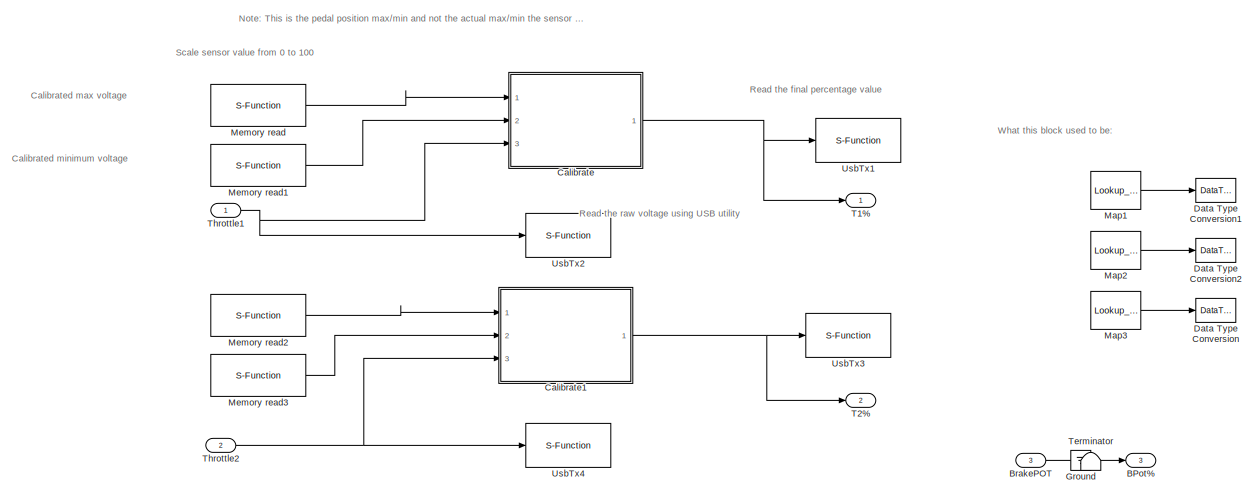
[diagram: MainTask/Pre_Processing_Layer/Pedal_Box/Voltage_to_% Conversion - part 1/2, full width, top band]
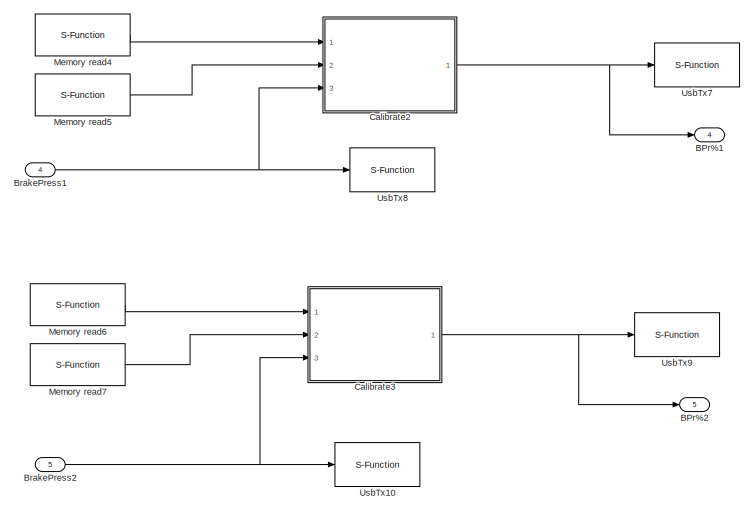
[diagram: MainTask/Pre_Processing_Layer/Pedal_Box/Voltage_to_% Conversion - part 2/2, bottom center region]
BLOCK [SubSystem] MainTask/Pre_Processing_Layer/Pedal_Box/Voltage_to_% Conversion
  Ports = [5, 5]
  RequestExecContextInheritance = off
  Variant = off
BLOCK [Outport] MainTask/Pre_Processing_Layer/Pedal_Box/Voltage_to_% Conversion/BPot%
  IconDisplay = Port number
  Port = 3
BLOCK [Outport] MainTask/Pre_Processing_Layer/Pedal_Box/Voltage_to_% Conversion/BPr%1
  IconDisplay = Port number
  Port = 4
BLOCK [Outport] MainTask/Pre_Processing_Layer/Pedal_Box/Voltage_to_% Conversion/BPr%2
  IconDisplay = Port number
  Port = 5
BLOCK [Inport] MainTask/Pre_Processing_Layer/Pedal_Box/Voltage_to_% Conversion/BrakePOT
  IconDisplay = Port number
  Port = 3
BLOCK [Inport] MainTask/Pre_Processing_Layer/Pedal_Box/Voltage_to_% Conversion/BrakePress1
  IconDisplay = Port number
  Port = 4
BLOCK [Inport] MainTask/Pre_Processing_Layer/Pedal_Box/Voltage_to_% Conversion/BrakePress2
  IconDisplay = Port number
  Port = 5
BLOCK [SubSystem] MainTask/Pre_Processing_Layer/Pedal_Box/Voltage_to_% Conversion/Calibrate
  Ports = [3, 1]
  RequestExecContextInheritance = off
  Variant = off
BLOCK [Sum] MainTask/Pre_Processing_Layer/Pedal_Box/Voltage_to_% Conversion/Calibrate/Add
  InputSameDT = off
  Inputs = +-
  OutDataTypeStr = Inherit: Inherit via internal rule
  Ports = [2, 1]
  SaturateOnIntegerOverflow = off
BLOCK [Sum] MainTask/Pre_Processing_Layer/Pedal_Box/Voltage_to_% Conversion/Calibrate/Add1
  InputSameDT = off
  Inputs = -+
  OutDataTypeStr = Inherit: Inherit via internal rule
  Ports = [2, 1]
  SaturateOnIntegerOverflow = off
BLOCK [Constant] MainTask/Pre_Processing_Layer/Pedal_Box/Voltage_to_% Conversion/Calibrate/Constant
  OutDataTypeStr = double
  Value = 100
BLOCK [DataTypeConversion] MainTask/Pre_Processing_Layer/Pedal_Box/Voltage_to_% Conversion/Calibrate/Data Type Conversion3
  OutDataTypeStr = double
  RndMeth = Floor
  SaturateOnIntegerOverflow = off
BLOCK [DataTypeConversion] MainTask/Pre_Processing_Layer/Pedal_Box/Voltage_to_% Conversion/Calibrate/Data Type Conversion4
  OutDataTypeStr = double
  RndMeth = Floor
  SaturateOnIntegerOverflow = off
BLOCK [Product] MainTask/Pre_Processing_Layer/Pedal_Box/Voltage_to_% Conversion/Calibrate/Divide
  InputSameDT = off
  Inputs = */*
  OutDataTypeStr = double
  Ports = [3, 1]
  RndMeth = Floor
  SaturateOnIntegerOverflow = off
BLOCK [MinMax] MainTask/Pre_Processing_Layer/Pedal_Box/Voltage_to_% Conversion/Calibrate/MinMax
  InputSameDT = off
  Inputs = 2
  OutDataTypeStr = uint16
  Ports = [2, 1]
  SaturateOnIntegerOverflow = off
BLOCK [MinMax] MainTask/Pre_Processing_Layer/Pedal_Box/Voltage_to_% Conversion/Calibrate/MinMax5
  Function = max
  InputSameDT = off
  Inputs = 2
  OutDataTypeStr = uint16
  Ports = [2, 1]
  SaturateOnIntegerOverflow = off
BLOCK [Inport] MainTask/Pre_Processing_Layer/Pedal_Box/Voltage_to_% Conversion/Calibrate/PedalMax
  IconDisplay = Port number
BLOCK [Inport] MainTask/Pre_Processing_Layer/Pedal_Box/Voltage_to_% Conversion/Calibrate/PedalMin
  IconDisplay = Port number
  Port = 2
BLOCK [Outport] MainTask/Pre_Processing_Layer/Pedal_Box/Voltage_to_% Conversion/Calibrate/Percentage
  IconDisplay = Port number
BLOCK [Inport] MainTask/Pre_Processing_Layer/Pedal_Box/Voltage_to_% Conversion/Calibrate/Voltage
  IconDisplay = Port number
  Port = 3
BLOCK [SubSystem] MainTask/Pre_Processing_Layer/Pedal_Box/Voltage_to_% Conversion/Calibrate1
  Ports = [3, 1]
  RequestExecContextInheritance = off
  Variant = off
BLOCK [Sum] MainTask/Pre_Processing_Layer/Pedal_Box/Voltage_to_% Conversion/Calibrate1/Add
  InputSameDT = off
  Inputs = +-
  OutDataTypeStr = Inherit: Inherit via internal rule
  Ports = [2, 1]
  SaturateOnIntegerOverflow = off
BLOCK [Sum] MainTask/Pre_Processing_Layer/Pedal_Box/Voltage_to_% Conversion/Calibrate1/Add1
  InputSameDT = off
  Inputs = -+
  OutDataTypeStr = Inherit: Inherit via internal rule
  Ports = [2, 1]
  SaturateOnIntegerOverflow = off
BLOCK [Constant] MainTask/Pre_Processing_Layer/Pedal_Box/Voltage_to_% Conversion/Calibrate1/Constant
  OutDataTypeStr = double
  Value = 100
BLOCK [DataTypeConversion] MainTask/Pre_Processing_Layer/Pedal_Box/Voltage_to_% Conversion/Calibrate1/Data Type Conversion3
  OutDataTypeStr = double
  RndMeth = Floor
  SaturateOnIntegerOverflow = off
BLOCK [DataTypeConversion] MainTask/Pre_Processing_Layer/Pedal_Box/Voltage_to_% Conversion/Calibrate1/Data Type Conversion4
  OutDataTypeStr = double
  RndMeth = Floor
  SaturateOnIntegerOverflow = off
BLOCK [Product] MainTask/Pre_Processing_Layer/Pedal_Box/Voltage_to_% Conversion/Calibrate1/Divide
  InputSameDT = off
  Inputs = */*
  OutDataTypeStr = double
  Ports = [3, 1]
  RndMeth = Floor
  SaturateOnIntegerOverflow = off
BLOCK [MinMax] MainTask/Pre_Processing_Layer/Pedal_Box/Voltage_to_% Conversion/Calibrate1/MinMax
  InputSameDT = off
  Inputs = 2
  OutDataTypeStr = uint16
  Ports = [2, 1]
  SaturateOnIntegerOverflow = off
BLOCK [MinMax] MainTask/Pre_Processing_Layer/Pedal_Box/Voltage_to_% Conversion/Calibrate1/MinMax5
  Function = max
  InputSameDT = off
  Inputs = 2
  OutDataTypeStr = uint16
  Ports = [2, 1]
  SaturateOnIntegerOverflow = off
BLOCK [Inport] MainTask/Pre_Processing_Layer/Pedal_Box/Voltage_to_% Conversion/Calibrate1/PedalMax
  IconDisplay = Port number
BLOCK [Inport] MainTask/Pre_Processing_Layer/Pedal_Box/Voltage_to_% Conversion/Calibrate1/PedalMin
  IconDisplay = Port number
  Port = 2
BLOCK [Outport] MainTask/Pre_Processing_Layer/Pedal_Box/Voltage_to_% Conversion/Calibrate1/Percentage
  IconDisplay = Port number
BLOCK [Inport] MainTask/Pre_Processing_Layer/Pedal_Box/Voltage_to_% Conversion/Calibrate1/Voltage
  IconDisplay = Port number
  Port = 3
BLOCK [SubSystem] MainTask/Pre_Processing_Layer/Pedal_Box/Voltage_to_% Conversion/Calibrate2
  Ports = [3, 1]
  RequestExecContextInheritance = off
  Variant = off
BLOCK [Sum] MainTask/Pre_Processing_Layer/Pedal_Box/Voltage_to_% Conversion/Calibrate2/Add
  InputSameDT = off
  Inputs = +-
  OutDataTypeStr = Inherit: Inherit via internal rule
  Ports = [2, 1]
  SaturateOnIntegerOverflow = off
BLOCK [Sum] MainTask/Pre_Processing_Layer/Pedal_Box/Voltage_to_% Conversion/Calibrate2/Add1
  InputSameDT = off
  Inputs = -+
  OutDataTypeStr = Inherit: Inherit via internal rule
  Ports = [2, 1]
  SaturateOnIntegerOverflow = off
BLOCK [Sum] MainTask/Pre_Processing_Layer/Pedal_Box/Voltage_to_% Conversion/Calibrate2/Add2
  InputSameDT = off
  Inputs = -+
  OutDataTypeStr = Inherit: Inherit via internal rule
  Ports = [2, 1]
  SaturateOnIntegerOverflow = off
BLOCK [Constant] MainTask/Pre_Processing_Layer/Pedal_Box/Voltage_to_% Conversion/Calibrate2/Constant
  OutDataTypeStr = double
  Value = 100
BLOCK [DataTypeConversion] MainTask/Pre_Processing_Layer/Pedal_Box/Voltage_to_% Conversion/Calibrate2/Data Type Conversion3
  OutDataTypeStr = double
  RndMeth = Floor
  SaturateOnIntegerOverflow = off
BLOCK [DataTypeConversion] MainTask/Pre_Processing_Layer/Pedal_Box/Voltage_to_% Conversion/Calibrate2/Data Type Conversion4
  OutDataTypeStr = double
  RndMeth = Floor
  SaturateOnIntegerOverflow = off
BLOCK [Product] MainTask/Pre_Processing_Layer/Pedal_Box/Voltage_to_% Conversion/Calibrate2/Divide
  InputSameDT = off
  Inputs = */*
  OutDataTypeStr = double
  Ports = [3, 1]
  RndMeth = Floor
  SaturateOnIntegerOverflow = off
BLOCK [Product] MainTask/Pre_Processing_Layer/Pedal_Box/Voltage_to_% Conversion/Calibrate2/Divide1
  InputSameDT = off
  Inputs = **
  OutDataTypeStr = double
  Ports = [2, 1]
  RndMeth = Floor
  SaturateOnIntegerOverflow = off
BLOCK [Gain] MainTask/Pre_Processing_Layer/Pedal_Box/Voltage_to_% Conversion/Calibrate2/Gain
  Gain = 0.0145038
  OutDataTypeStr = Inherit: Inherit via internal rule
  ParamDataTypeStr = Inherit: Inherit via internal rule
  SaturateOnIntegerOverflow = off
BLOCK [S-Function] MainTask/Pre_Processing_Layer/Pedal_Box/Voltage_to_% Conversion/Calibrate2/Memory read9
  EnableBusSupport = off
  FunctionName = NsiMem_Read
  OpenFcn = NsiMem_Read_OpenFcn();
  Parameters = name_var,type_var,size_var,tunable_var
  Ports = [0, 1]
  SFcnIsStateOwnerBlock = off
  SFunctionDeploymentMode = off
BLOCK [MinMax] MainTask/Pre_Processing_Layer/Pedal_Box/Voltage_to_% Conversion/Calibrate2/MinMax
  InputSameDT = off
  Inputs = 2
  OutDataTypeStr = uint16
  Ports = [2, 1]
  SaturateOnIntegerOverflow = off
BLOCK [MinMax] MainTask/Pre_Processing_Layer/Pedal_Box/Voltage_to_% Conversion/Calibrate2/MinMax5
  Function = max
  InputSameDT = off
  Inputs = 2
  OutDataTypeStr = uint16
  Ports = [2, 1]
  SaturateOnIntegerOverflow = off
BLOCK [Inport] MainTask/Pre_Processing_Layer/Pedal_Box/Voltage_to_% Conversion/Calibrate2/PedalMax
  IconDisplay = Port number
BLOCK [Inport] MainTask/Pre_Processing_Layer/Pedal_Box/Voltage_to_% Conversion/Calibrate2/PedalMin
  IconDisplay = Port number
  Port = 2
BLOCK [Outport] MainTask/Pre_Processing_Layer/Pedal_Box/Voltage_to_% Conversion/Calibrate2/Percentage
  IconDisplay = Port number
BLOCK [S-Function] MainTask/Pre_Processing_Layer/Pedal_Box/Voltage_to_% Conversion/Calibrate2/UsbTx1
  EnableBusSupport = off
  FunctionName = NsiUsb_Tx
  OpenFcn = NsiUsb_Tx_OpenFcn();
  Parameters = signame,resolution,offset,unite
  Ports = [1]
  SFcnIsStateOwnerBlock = off
  SFunctionDeploymentMode = off
BLOCK [S-Function] MainTask/Pre_Processing_Layer/Pedal_Box/Voltage_to_% Conversion/Calibrate2/UsbTx5
  EnableBusSupport = off
  FunctionName = NsiUsb_Tx
  OpenFcn = NsiUsb_Tx_OpenFcn();
  Parameters = signame,resolution,offset,unite
  Ports = [1]
  SFcnIsStateOwnerBlock = off
  SFunctionDeploymentMode = off
BLOCK [Inport] MainTask/Pre_Processing_Layer/Pedal_Box/Voltage_to_% Conversion/Calibrate2/Voltage
  IconDisplay = Port number
  Port = 3
BLOCK [SubSystem] MainTask/Pre_Processing_Layer/Pedal_Box/Voltage_to_% Conversion/Calibrate3
  Ports = [3, 1]
  RequestExecContextInheritance = off
  Variant = off
BLOCK [Sum] MainTask/Pre_Processing_Layer/Pedal_Box/Voltage_to_% Conversion/Calibrate3/Add
  InputSameDT = off
  Inputs = +-
  OutDataTypeStr = Inherit: Inherit via internal rule
  Ports = [2, 1]
  SaturateOnIntegerOverflow = off
BLOCK [Sum] MainTask/Pre_Processing_Layer/Pedal_Box/Voltage_to_% Conversion/Calibrate3/Add1
  InputSameDT = off
  Inputs = -+
  OutDataTypeStr = Inherit: Inherit via internal rule
  Ports = [2, 1]
  SaturateOnIntegerOverflow = off
BLOCK [Sum] MainTask/Pre_Processing_Layer/Pedal_Box/Voltage_to_% Conversion/Calibrate3/Add2
  InputSameDT = off
  Inputs = -+
  OutDataTypeStr = Inherit: Inherit via internal rule
  Ports = [2, 1]
  SaturateOnIntegerOverflow = off
BLOCK [Constant] MainTask/Pre_Processing_Layer/Pedal_Box/Voltage_to_% Conversion/Calibrate3/Constant
  OutDataTypeStr = double
  Value = 100
BLOCK [DataTypeConversion] MainTask/Pre_Processing_Layer/Pedal_Box/Voltage_to_% Conversion/Calibrate3/Data Type Conversion3
  OutDataTypeStr = double
  RndMeth = Floor
  SaturateOnIntegerOverflow = off
BLOCK [DataTypeConversion] MainTask/Pre_Processing_Layer/Pedal_Box/Voltage_to_% Conversion/Calibrate3/Data Type Conversion4
  OutDataTypeStr = double
  RndMeth = Floor
  SaturateOnIntegerOverflow = off
BLOCK [Product] MainTask/Pre_Processing_Layer/Pedal_Box/Voltage_to_% Conversion/Calibrate3/Divide
  InputSameDT = off
  Inputs = */*
  OutDataTypeStr = double
  Ports = [3, 1]
  RndMeth = Floor
  SaturateOnIntegerOverflow = off
BLOCK [Product] MainTask/Pre_Processing_Layer/Pedal_Box/Voltage_to_% Conversion/Calibrate3/Divide1
  InputSameDT = off
  Inputs = **
  OutDataTypeStr = double
  Ports = [2, 1]
  RndMeth = Floor
  SaturateOnIntegerOverflow = off
BLOCK [Gain] MainTask/Pre_Processing_Layer/Pedal_Box/Voltage_to_% Conversion/Calibrate3/Gain
  Gain = 0.0145038
  OutDataTypeStr = Inherit: Inherit via internal rule
  ParamDataTypeStr = Inherit: Inherit via internal rule
  SaturateOnIntegerOverflow = off
BLOCK [S-Function] MainTask/Pre_Processing_Layer/Pedal_Box/Voltage_to_% Conversion/Calibrate3/Memory read8
  EnableBusSupport = off
  FunctionName = NsiMem_Read
  OpenFcn = NsiMem_Read_OpenFcn();
  Parameters = name_var,type_var,size_var,tunable_var
  Ports = [0, 1]
  SFcnIsStateOwnerBlock = off
  SFunctionDeploymentMode = off
BLOCK [MinMax] MainTask/Pre_Processing_Layer/Pedal_Box/Voltage_to_% Conversion/Calibrate3/MinMax
  InputSameDT = off
  Inputs = 2
  OutDataTypeStr = uint16
  Ports = [2, 1]
  SaturateOnIntegerOverflow = off
BLOCK [MinMax] MainTask/Pre_Processing_Layer/Pedal_Box/Voltage_to_% Conversion/Calibrate3/MinMax5
  Function = max
  InputSameDT = off
  Inputs = 2
  OutDataTypeStr = uint16
  Ports = [2, 1]
  SaturateOnIntegerOverflow = off
BLOCK [Inport] MainTask/Pre_Processing_Layer/Pedal_Box/Voltage_to_% Conversion/Calibrate3/PedalMax
  IconDisplay = Port number
BLOCK [Inport] MainTask/Pre_Processing_Layer/Pedal_Box/Voltage_to_% Conversion/Calibrate3/PedalMin
  IconDisplay = Port number
  Port = 2
BLOCK [Outport] MainTask/Pre_Processing_Layer/Pedal_Box/Voltage_to_% Conversion/Calibrate3/Percentage
  IconDisplay = Port number
BLOCK [S-Function] MainTask/Pre_Processing_Layer/Pedal_Box/Voltage_to_% Conversion/Calibrate3/UsbTx1
  EnableBusSupport = off
  FunctionName = NsiUsb_Tx
  OpenFcn = NsiUsb_Tx_OpenFcn();
  Parameters = signame,resolution,offset,unite
  Ports = [1]
  SFcnIsStateOwnerBlock = off
  SFunctionDeploymentMode = off
BLOCK [S-Function] MainTask/Pre_Processing_Layer/Pedal_Box/Voltage_to_% Conversion/Calibrate3/UsbTx6
  EnableBusSupport = off
  FunctionName = NsiUsb_Tx
  OpenFcn = NsiUsb_Tx_OpenFcn();
  Parameters = signame,resolution,offset,unite
  Ports = [1]
  SFcnIsStateOwnerBlock = off
  SFunctionDeploymentMode = off
BLOCK [Inport] MainTask/Pre_Processing_Layer/Pedal_Box/Voltage_to_% Conversion/Calibrate3/Voltage
  IconDisplay = Port number
  Port = 3
BLOCK [DataTypeConversion] MainTask/Pre_Processing_Layer/Pedal_Box/Voltage_to_% Conversion/Data Type Conversion
  Commented = on
  OutDataTypeStr = uint8
  RndMeth = Floor
  SaturateOnIntegerOverflow = off
BLOCK [DataTypeConversion] MainTask/Pre_Processing_Layer/Pedal_Box/Voltage_to_% Conversion/Data Type Conversion1
  Commented = on
  OutDataTypeStr = uint8
  RndMeth = Floor
  SaturateOnIntegerOverflow = off
BLOCK [DataTypeConversion] MainTask/Pre_Processing_Layer/Pedal_Box/Voltage_to_% Conversion/Data Type Conversion2
  Commented = on
  OutDataTypeStr = uint8
  RndMeth = Floor
  SaturateOnIntegerOverflow = off
BLOCK [Ground] MainTask/Pre_Processing_Layer/Pedal_Box/Voltage_to_% Conversion/Ground
BLOCK [Lookup_n-D] MainTask/Pre_Processing_Layer/Pedal_Box/Voltage_to_% Conversion/Map1
  BreakpointsForDimension1 = [0000,5000]
  Commented = on
  ExtrapMethod = Clip
  InternalRulePriority = Speed
  NumberOfTableDimensions = 1
  Ports = [1, 1]
  RndMeth = Simplest
  Table = [0,100]
  UseLastTableValue = on
BLOCK [Lookup_n-D] MainTask/Pre_Processing_Layer/Pedal_Box/Voltage_to_% Conversion/Map2
  BreakpointsForDimension1 = [0000,5000]
  Commented = on
  ExtrapMethod = Clip
  InternalRulePriority = Speed
  NumberOfTableDimensions = 1
  Ports = [1, 1]
  RndMeth = Simplest
  Table = [0,100]
  UseLastTableValue = on
BLOCK [Lookup_n-D] MainTask/Pre_Processing_Layer/Pedal_Box/Voltage_to_% Conversion/Map3
  BreakpointsForDimension1 = [2800,5600]
  Commented = on
  ExtrapMethod = Clip
  InternalRulePriority = Speed
  NumberOfTableDimensions = 1
  Ports = [1, 1]
  RndMeth = Simplest
  Table = [0,100]
  UseLastTableValue = on
BLOCK [S-Function] MainTask/Pre_Processing_Layer/Pedal_Box/Voltage_to_% Conversion/Memory read
  EnableBusSupport = off
  FunctionName = NsiMem_Read
  OpenFcn = NsiMem_Read_OpenFcn();
  Parameters = name_var,type_var,size_var,tunable_var
  Ports = [0, 1]
  SFcnIsStateOwnerBlock = off
  SFunctionDeploymentMode = off
BLOCK [S-Function] MainTask/Pre_Processing_Layer/Pedal_Box/Voltage_to_% Conversion/Memory read1
  EnableBusSupport = off
  FunctionName = NsiMem_Read
  OpenFcn = NsiMem_Read_OpenFcn();
  Parameters = name_var,type_var,size_var,tunable_var
  Ports = [0, 1]
  SFcnIsStateOwnerBlock = off
  SFunctionDeploymentMode = off
BLOCK [S-Function] MainTask/Pre_Processing_Layer/Pedal_Box/Voltage_to_% Conversion/Memory read2
  EnableBusSupport = off
  FunctionName = NsiMem_Read
  OpenFcn = NsiMem_Read_OpenFcn();
  Parameters = name_var,type_var,size_var,tunable_var
  Ports = [0, 1]
  SFcnIsStateOwnerBlock = off
  SFunctionDeploymentMode = off
BLOCK [S-Function] MainTask/Pre_Processing_Layer/Pedal_Box/Voltage_to_% Conversion/Memory read3
  EnableBusSupport = off
  FunctionName = NsiMem_Read
  OpenFcn = NsiMem_Read_OpenFcn();
  Parameters = name_var,type_var,size_var,tunable_var
  Ports = [0, 1]
  SFcnIsStateOwnerBlock = off
  SFunctionDeploymentMode = off
BLOCK [S-Function] MainTask/Pre_Processing_Layer/Pedal_Box/Voltage_to_% Conversion/Memory read4
  EnableBusSupport = off
  FunctionName = NsiMem_Read
  OpenFcn = NsiMem_Read_OpenFcn();
  Parameters = name_var,type_var,size_var,tunable_var
  Ports = [0, 1]
  SFcnIsStateOwnerBlock = off
  SFunctionDeploymentMode = off
BLOCK [S-Function] MainTask/Pre_Processing_Layer/Pedal_Box/Voltage_to_% Conversion/Memory read5
  EnableBusSupport = off
  FunctionName = NsiMem_Read
  OpenFcn = NsiMem_Read_OpenFcn();
  Parameters = name_var,type_var,size_var,tunable_var
  Ports = [0, 1]
  SFcnIsStateOwnerBlock = off
  SFunctionDeploymentMode = off
BLOCK [S-Function] MainTask/Pre_Processing_Layer/Pedal_Box/Voltage_to_% Conversion/Memory read6
  EnableBusSupport = off
  FunctionName = NsiMem_Read
  OpenFcn = NsiMem_Read_OpenFcn();
  Parameters = name_var,type_var,size_var,tunable_var
  Ports = [0, 1]
  SFcnIsStateOwnerBlock = off
  SFunctionDeploymentMode = off
BLOCK [S-Function] MainTask/Pre_Processing_Layer/Pedal_Box/Voltage_to_% Conversion/Memory read7
  EnableBusSupport = off
  FunctionName = NsiMem_Read
  OpenFcn = NsiMem_Read_OpenFcn();
  Parameters = name_var,type_var,size_var,tunable_var
  Ports = [0, 1]
  SFcnIsStateOwnerBlock = off
  SFunctionDeploymentMode = off
BLOCK [Outport] MainTask/Pre_Processing_Layer/Pedal_Box/Voltage_to_% Conversion/T1%
  IconDisplay = Port number
BLOCK [Outport] MainTask/Pre_Processing_Layer/Pedal_Box/Voltage_to_% Conversion/T2%
  IconDisplay = Port number
  Port = 2
BLOCK [Terminator] MainTask/Pre_Processing_Layer/Pedal_Box/Voltage_to_% Conversion/Terminator
BLOCK [Inport] MainTask/Pre_Processing_Layer/Pedal_Box/Voltage_to_% Conversion/Throttle1
  IconDisplay = Port number
BLOCK [Inport] MainTask/Pre_Processing_Layer/Pedal_Box/Voltage_to_% Conversion/Throttle2
  IconDisplay = Port number
  Port = 2
BLOCK [S-Function] MainTask/Pre_Processing_Layer/Pedal_Box/Voltage_to_% Conversion/UsbTx1
  EnableBusSupport = off
  FunctionName = NsiUsb_Tx
  OpenFcn = NsiUsb_Tx_OpenFcn();
  Parameters = signame,resolution,offset,unite
  Ports = [1]
  SFcnIsStateOwnerBlock = off
  SFunctionDeploymentMode = off
BLOCK [S-Function] MainTask/Pre_Processing_Layer/Pedal_Box/Voltage_to_% Conversion/UsbTx10
  EnableBusSupport = off
  FunctionName = NsiUsb_Tx
  OpenFcn = NsiUsb_Tx_OpenFcn();
  Parameters = signame,resolution,offset,unite
  Ports = [1]
  SFcnIsStateOwnerBlock = off
  SFunctionDeploymentMode = off
BLOCK [S-Function] MainTask/Pre_Processing_Layer/Pedal_Box/Voltage_to_% Conversion/UsbTx2
  EnableBusSupport = off
  FunctionName = NsiUsb_Tx
  OpenFcn = NsiUsb_Tx_OpenFcn();
  Parameters = signame,resolution,offset,unite
  Ports = [1]
  SFcnIsStateOwnerBlock = off
  SFunctionDeploymentMode = off
BLOCK [S-Function] MainTask/Pre_Processing_Layer/Pedal_Box/Voltage_to_% Conversion/UsbTx3
  EnableBusSupport = off
  FunctionName = NsiUsb_Tx
  OpenFcn = NsiUsb_Tx_OpenFcn();
  Parameters = signame,resolution,offset,unite
  Ports = [1]
  SFcnIsStateOwnerBlock = off
  SFunctionDeploymentMode = off
BLOCK [S-Function] MainTask/Pre_Processing_Layer/Pedal_Box/Voltage_to_% Conversion/UsbTx4
  EnableBusSupport = off
  FunctionName = NsiUsb_Tx
  OpenFcn = NsiUsb_Tx_OpenFcn();
  Parameters = signame,resolution,offset,unite
  Ports = [1]
  SFcnIsStateOwnerBlock = off
  SFunctionDeploymentMode = off
BLOCK [S-Function] MainTask/Pre_Processing_Layer/Pedal_Box/Voltage_to_% Conversion/UsbTx7
  EnableBusSupport = off
  FunctionName = NsiUsb_Tx
  OpenFcn = NsiUsb_Tx_OpenFcn();
  Parameters = signame,resolution,offset,unite
  Ports = [1]
  SFcnIsStateOwnerBlock = off
  SFunctionDeploymentMode = off
BLOCK [S-Function] MainTask/Pre_Processing_Layer/Pedal_Box/Voltage_to_% Conversion/UsbTx8
  EnableBusSupport = off
  FunctionName = NsiUsb_Tx
  OpenFcn = NsiUsb_Tx_OpenFcn();
  Parameters = signame,resolution,offset,unite
  Ports = [1]
  SFcnIsStateOwnerBlock = off
  SFunctionDeploymentMode = off
BLOCK [S-Function] MainTask/Pre_Processing_Layer/Pedal_Box/Voltage_to_% Conversion/UsbTx9
  EnableBusSupport = off
  FunctionName = NsiUsb_Tx
  OpenFcn = NsiUsb_Tx_OpenFcn();
  Parameters = signame,resolution,offset,unite
  Ports = [1]
  SFcnIsStateOwnerBlock = off
  SFunctionDeploymentMode = off
BLOCK [Outport] MainTask/Pre_Processing_Layer/PrePL_Data
  IconDisplay = Port number
BLOCK [SignalConversion] MainTask/Pre_Processing_Layer/Signal Conversion
  OverrideOpt = off
BLOCK [S-Function] MainTask/Task
  EnableBusSupport = off
  FunctionName = NsiSys_TaskREF
  OpenFcn = NsiSys_Task_OpenFcn();
  Parameters = task_initialised,task_periodic, task_sampletime,task_name,task_event,task_offset
  Ports = []
  SFcnIsStateOwnerBlock = off
  SFunctionDeploymentMode = off
BLOCK [SubSystem] MainTask/Vehicle_Functionality_Layer
  Ports = [1, 1]
  RequestExecContextInheritance = off
  Variant = off
BLOCK [BusCreator] MainTask/Vehicle_Functionality_Layer/Bus Creator
  DisplayOption = bar
  InheritFromInputs = on
  Inputs = 3
  Ports = [3, 1]
BLOCK [SubSystem] MainTask/Vehicle_Functionality_Layer/Drive_Function
  Ports = [2, 1]
  RequestExecContextInheritance = off
  Variant = off
BLOCK [BusCreator] MainTask/Vehicle_Functionality_Layer/Drive_Function/Bus Creator
  DisplayOption = bar
  InheritFromInputs = on
  Inputs = 7
  Ports = [7, 1]
BLOCK [BusSelector] MainTask/Vehicle_Functionality_Layer/Drive_Function/Bus Selector
  OutputAsBus = off
  OutputSignals = Pedal_Box_Data.Throttle_Percentage,DAL_Data.DAL_Hardwired.btnX_Input,DAL_Data.DAL_Hardwired.btnY_Input,DAL_Data.DAL_Hardwired.btnZ_Input
  Ports = [1, 4]
BLOCK [BusSelector] MainTask/Vehicle_Functionality_Layer/Drive_Function/Bus Selector1
  OutputAsBus = off
  OutputSignals = Operation_Mode
  Ports = [1, 1]
BLOCK [Inport] MainTask/Vehicle_Functionality_Layer/Drive_Function/DAL_Data
  IconDisplay = Port number
  Port = 2
BLOCK [DataTypeConversion] MainTask/Vehicle_Functionality_Layer/Drive_Function/Data Type Conversion
  OutDataTypeStr = int16
  RndMeth = Floor
  SaturateOnIntegerOverflow = off
BLOCK [Outport] MainTask/Vehicle_Functionality_Layer/Drive_Function/Drive_Data
  IconDisplay = Port number
BLOCK [Ground] MainTask/Vehicle_Functionality_Layer/Drive_Function/Ground1
BLOCK [Ground] MainTask/Vehicle_Functionality_Layer/Drive_Function/Ground2
BLOCK [MinMax] MainTask/Vehicle_Functionality_Layer/Drive_Function/MinMax
  InputSameDT = off
  Inputs = 2
  Ports = [2, 1]
  SaturateOnIntegerOverflow = off
BLOCK [Product] MainTask/Vehicle_Functionality_Layer/Drive_Function/OnlyDriveWhenPWMOn
  InputSameDT = off
  OutDataTypeStr = int16
  Ports = [2, 1]
  RndMeth = Floor
  SaturateOnIntegerOverflow = off
BLOCK [SubSystem] MainTask/Vehicle_Functionality_Layer/Drive_Function/OverPowerProtection
  Ports = [1, 1]
  RequestExecContextInheritance = off
  Variant = off
BLOCK [Constant] MainTask/Vehicle_Functionality_Layer/Drive_Function/OverPowerProtection/80kW with 88% efficentlcy
  OutDataTypeStr = Inherit: Inherit via back propagation
  Value = 70
BLOCK [BusSelector] MainTask/Vehicle_Functionality_Layer/Drive_Function/OverPowerProtection/Bus Selector
  OutputAsBus = off
  OutputSignals = DAL_Data.DAL_CAN.DAL_MCUCAN.Motor_Speed,DAL_Data.DAL_CAN.DAL_BMSCAN.Instant_Pack_Voltage,DAL_Data.DAL_CAN.DAL_BMSCAN.Pack_Current
  Ports = [1, 3]
BLOCK [Constant] MainTask/Vehicle_Functionality_Layer/Drive_Function/OverPowerProtection/Constant
  OutDataTypeStr = uint16
  Value = 9548
BLOCK [Product] MainTask/Vehicle_Functionality_Layer/Drive_Function/OverPowerProtection/Divide
  InputSameDT = off
  Inputs = **/
  OutDataTypeStr = uint16
  Ports = [3, 1]
  RndMeth = Floor
  SaturateOnIntegerOverflow = off
BLOCK [Product] MainTask/Vehicle_Functionality_Layer/Drive_Function/OverPowerProtection/Divide1
  InputSameDT = off
  Inputs = **
  OutDataTypeStr = uint16
  Ports = [2, 1]
  RndMeth = Floor
  SaturateOnIntegerOverflow = off
BLOCK [Outport] MainTask/Vehicle_Functionality_Layer/Drive_Function/OverPowerProtection/Max_Torque
  IconDisplay = Port number
BLOCK [MinMax] MainTask/Vehicle_Functionality_Layer/Drive_Function/OverPowerProtection/MinMax1
  Function = max
  InputSameDT = off
  Inputs = 2
  OutDataTypeStr = uint16
  Ports = [2, 1]
  SaturateOnIntegerOverflow = off
BLOCK [Reference] MainTask/Vehicle_Functionality_Layer/Drive_Function/OverPowerProtection/Power  REF=simulink/Logic and Bit
Operations/Compare
To Constant
  Ports = [1, 1]
  SourceBlock = simulink/Logic and Bit\nOperations/Compare\nTo Constant
  SourceProductBaseCode = SL
  SourceProductName = Simulink
  SourceType = Compare To Constant
BLOCK [Inport] MainTask/Vehicle_Functionality_Layer/Drive_Function/OverPowerProtection/PrePLData
  IconDisplay = Port number
BLOCK [Constant] MainTask/Vehicle_Functionality_Layer/Drive_Function/OverPowerProtection/infProtection
BLOCK [Reference] MainTask/Vehicle_Functionality_Layer/Drive_Function/R2D  REF=simulink/Logic and Bit
Operations/Compare
To Constant
  Ports = [1, 1]
  SourceBlock = simulink/Logic and Bit\nOperations/Compare\nTo Constant
  SourceProductBaseCode = SL
  SourceProductName = Simulink
  SourceType = Compare To Constant
BLOCK [SubSystem] MainTask/Vehicle_Functionality_Layer/Drive_Function/Regen_Braking1
  Commented = on
  Ports = [5, 3]
  RequestExecContextInheritance = off
  Variant = off
BLOCK [Inport] MainTask/Vehicle_Functionality_Layer/Drive_Function/Regen_Braking1/AccySOC
  IconDisplay = Port number
  Port = 5
BLOCK [Inport] MainTask/Vehicle_Functionality_Layer/Drive_Function/Regen_Braking1/Brake_%
  IconDisplay = Port number
  Port = 4
BLOCK [Lookup_n-D] MainTask/Vehicle_Functionality_Layer/Drive_Function/Regen_Braking1/Braking_Torque_Map_OnSpeed
  BreakpointsForDimension1 = [0,1.5,40,255]
  ExtrapMethod = Clip
  InternalRulePriority = Speed
  NumberOfTableDimensions = 1
  OutDataTypeStr = double
  Ports = [1, 1]
  RndMeth = Simplest
  Table = [0,0,-1,-1]
  UseLastTableValue = on
BLOCK [Inport] MainTask/Vehicle_Functionality_Layer/Drive_Function/Regen_Braking1/Button
  IconDisplay = Port number
  Port = 3
BLOCK [Reference] MainTask/Vehicle_Functionality_Layer/Drive_Function/Regen_Braking1/Compare To Constant  REF=simulink/Logic and Bit
Operations/Compare
To Constant
  Ports = [1, 1]
  SourceBlock = simulink/Logic and Bit\nOperations/Compare\nTo Constant
  SourceProductBaseCode = SL
  SourceProductName = Simulink
  SourceType = Compare To Constant
BLOCK [Delay] MainTask/Vehicle_Functionality_Layer/Drive_Function/Regen_Braking1/Delay
  DelayLength = 1
  InitialCondition = 0
  InputPortMap = u0
  Ports = [1, 1]
BLOCK [Product] MainTask/Vehicle_Functionality_Layer/Drive_Function/Regen_Braking1/Divide
  InputSameDT = off
  OutDataTypeStr = int16
  Ports = [2, 1]
  RndMeth = Floor
  SaturateOnIntegerOverflow = off
BLOCK [S-Function] MainTask/Vehicle_Functionality_Layer/Drive_Function/Regen_Braking1/Memory read
  EnableBusSupport = off
  FunctionName = NsiMem_Read
  OpenFcn = NsiMem_Read_OpenFcn();
  Parameters = name_var,type_var,size_var,tunable_var
  Ports = [0, 1]
  SFcnIsStateOwnerBlock = off
  SFunctionDeploymentMode = off
BLOCK [Logic] MainTask/Vehicle_Functionality_Layer/Drive_Function/Regen_Braking1/ModeChange
  AllPortsSameDT = off
  Operator = XOR
  OutDataTypeStr = boolean
  Ports = [2, 1]
BLOCK [Logic] MainTask/Vehicle_Functionality_Layer/Drive_Function/Regen_Braking1/NOT
  AllPortsSameDT = off
  Operator = NOT
  OutDataTypeStr = boolean
  Ports = [1, 1]
BLOCK [Outport] MainTask/Vehicle_Functionality_Layer/Drive_Function/Regen_Braking1/RegenActive_Bool
  IconDisplay = Port number
  Port = 2
BLOCK [Outport] MainTask/Vehicle_Functionality_Layer/Drive_Function/Regen_Braking1/Regen_On
  IconDisplay = Port number
  Port = 3
BLOCK [Logic] MainTask/Vehicle_Functionality_Layer/Drive_Function/Regen_Braking1/RisingEdgeDet
  AllPortsSameDT = off
  OutDataTypeStr = boolean
  Ports = [2, 1]
BLOCK [Logic] MainTask/Vehicle_Functionality_Layer/Drive_Function/Regen_Braking1/RisingEdgeDet1
  AllPortsSameDT = off
  OutDataTypeStr = boolean
  Ports = [2, 1]
BLOCK [Inport] MainTask/Vehicle_Functionality_Layer/Drive_Function/Regen_Braking1/Speed
  IconDisplay = Port number
  Port = 2
BLOCK [Inport] MainTask/Vehicle_Functionality_Layer/Drive_Function/Regen_Braking1/Throttle_Req
  IconDisplay = Port number
BLOCK [Outport] MainTask/Vehicle_Functionality_Layer/Drive_Function/Regen_Braking1/Torque_MCU_Req
  IconDisplay = Port number
BLOCK [SubSystem] MainTask/Vehicle_Functionality_Layer/Drive_Function/Regen_Braking1/Torque_Mode
  ErrorFcn = Stateflow.Translate.translate
  PermitHierarchicalResolution = ExplicitOnly
  Ports = [5, 2]
  RequestExecContextInheritance = off
  SFBlockType = MATLAB Function
  TreatAsAtomicUnit = on
  Variant = off
BLOCK [Demux] MainTask/Vehicle_Functionality_Layer/Drive_Function/Regen_Braking1/Torque_Mode/ Demux 
  Outputs = 1
  Ports = [1, 1]
BLOCK [S-Function] MainTask/Vehicle_Functionality_Layer/Drive_Function/Regen_Braking1/Torque_Mode/ SFunction 
  EnableBusSupport = on
  FunctionName = sf_sfun
  PortCounts = [5 3]
  Ports = [5, 3]
  SFcnIsStateOwnerBlock = off
  SFunctionDeploymentMode = off
  Tag = Stateflow S-Function TBRe19_ECU_1_Brake_Pressure_Conversion 1
BLOCK [Terminator] MainTask/Vehicle_Functionality_Layer/Drive_Function/Regen_Braking1/Torque_Mode/ Terminator 
BLOCK [Inport] MainTask/Vehicle_Functionality_Layer/Drive_Function/Regen_Braking1/Torque_Mode/Brake
  IconDisplay = Port number
  Port = 2
BLOCK [Inport] MainTask/Vehicle_Functionality_Layer/Drive_Function/Regen_Braking1/Torque_Mode/Coast
  IconDisplay = Port number
  Port = 3
BLOCK [Outport] MainTask/Vehicle_Functionality_Layer/Drive_Function/Regen_Braking1/Torque_Mode/RegenBool
  IconDisplay = Port number
  Port = 2
BLOCK [Inport] MainTask/Vehicle_Functionality_Layer/Drive_Function/Regen_Braking1/Torque_Mode/RegenOk
  IconDisplay = Port number
  Port = 5
BLOCK [Inport] MainTask/Vehicle_Functionality_Layer/Drive_Function/Regen_Braking1/Torque_Mode/Speed
  IconDisplay = Port number
  Port = 4
BLOCK [Inport] MainTask/Vehicle_Functionality_Layer/Drive_Function/Regen_Braking1/Torque_Mode/Throttle
  IconDisplay = Port number
BLOCK [Outport] MainTask/Vehicle_Functionality_Layer/Drive_Function/Regen_Braking1/Torque_Mode/Torque
  IconDisplay = Port number
BLOCK [Delay] MainTask/Vehicle_Functionality_Layer/Drive_Function/Regen_Braking1/prvCheck
  DelayLength = 1
  InitialCondition = 0
  InputPortMap = u0
  Ports = [1, 1]
BLOCK [SubSystem] MainTask/Vehicle_Functionality_Layer/Drive_Function/Regen_Braking_Old
  Commented = on
  Ports = [4, 2]
  RequestExecContextInheritance = off
  Variant = off
BLOCK [Inport] MainTask/Vehicle_Functionality_Layer/Drive_Function/Regen_Braking_Old/Braking_%
  IconDisplay = Port number
  Port = 2
BLOCK [Lookup_n-D] MainTask/Vehicle_Functionality_Layer/Drive_Function/Regen_Braking_Old/Braking_Torque_Map_OnBrake_Max30
  BreakpointsForDimension1 = [0,50,70,90,100]
  ExtrapMethod = Clip
  InternalRulePriority = Speed
  NumberOfTableDimensions = 1
  OutDataTypeStr = int16
  Ports = [1, 1]
  RndMeth = Simplest
  Table = [0,-30,-30,0,0]
  UseLastTableValue = on
BLOCK [Constant] MainTask/Vehicle_Functionality_Layer/Drive_Function/Regen_Braking_Old/Coasting Brake
  OutDataTypeStr = int16
  Value = -10
BLOCK [Inport] MainTask/Vehicle_Functionality_Layer/Drive_Function/Regen_Braking_Old/RegenOk
  IconDisplay = Port number
  Port = 4
BLOCK [Outport] MainTask/Vehicle_Functionality_Layer/Drive_Function/Regen_Braking_Old/Regen_Bool
  IconDisplay = Port number
  Port = 2
BLOCK [Inport] MainTask/Vehicle_Functionality_Layer/Drive_Function/Regen_Braking_Old/Speed
  IconDisplay = Port number
  Port = 3
BLOCK [Inport] MainTask/Vehicle_Functionality_Layer/Drive_Function/Regen_Braking_Old/Throttle_Req
  IconDisplay = Port number
BLOCK [Outport] MainTask/Vehicle_Functionality_Layer/Drive_Function/Regen_Braking_Old/Torque_MCU_Req
  IconDisplay = Port number
BLOCK [SubSystem] MainTask/Vehicle_Functionality_Layer/Drive_Function/Regen_Braking_Old/Torque_Mode
  ErrorFcn = Stateflow.Translate.translate
  PermitHierarchicalResolution = ExplicitOnly
  Ports = [5, 2]
  RequestExecContextInheritance = off
  SFBlockType = MATLAB Function
  TreatAsAtomicUnit = on
  Variant = off
BLOCK [Demux] MainTask/Vehicle_Functionality_Layer/Drive_Function/Regen_Braking_Old/Torque_Mode/ Demux 
  Outputs = 1
  Ports = [1, 1]
BLOCK [S-Function] MainTask/Vehicle_Functionality_Layer/Drive_Function/Regen_Braking_Old/Torque_Mode/ SFunction 
  EnableBusSupport = on
  FunctionName = sf_sfun
  PortCounts = [5 3]
  Ports = [5, 3]
  SFcnIsStateOwnerBlock = off
  SFunctionDeploymentMode = off
  Tag = Stateflow S-Function TBRe19_ECU_1_Brake_Pressure_Conversion 10
BLOCK [Terminator] MainTask/Vehicle_Functionality_Layer/Drive_Function/Regen_Braking_Old/Torque_Mode/ Terminator 
BLOCK [Inport] MainTask/Vehicle_Functionality_Layer/Drive_Function/Regen_Braking_Old/Torque_Mode/Brake
  IconDisplay = Port number
  Port = 2
BLOCK [Inport] MainTask/Vehicle_Functionality_Layer/Drive_Function/Regen_Braking_Old/Torque_Mode/Coast
  IconDisplay = Port number
  Port = 3
BLOCK [Outport] MainTask/Vehicle_Functionality_Layer/Drive_Function/Regen_Braking_Old/Torque_Mode/RegenBool
  IconDisplay = Port number
  Port = 2
BLOCK [Inport] MainTask/Vehicle_Functionality_Layer/Drive_Function/Regen_Braking_Old/Torque_Mode/RegenOk
  IconDisplay = Port number
  Port = 5
BLOCK [Inport] MainTask/Vehicle_Functionality_Layer/Drive_Function/Regen_Braking_Old/Torque_Mode/Speed
  IconDisplay = Port number
  Port = 4
BLOCK [Inport] MainTask/Vehicle_Functionality_Layer/Drive_Function/Regen_Braking_Old/Torque_Mode/Throttle
  IconDisplay = Port number
BLOCK [Outport] MainTask/Vehicle_Functionality_Layer/Drive_Function/Regen_Braking_Old/Torque_Mode/Torque
  IconDisplay = Port number
BLOCK [SubSystem] MainTask/Vehicle_Functionality_Layer/Drive_Function/ThrottleAddSubTorque
  Commented = on
  Ports = [3, 2]
  RequestExecContextInheritance = off
  Variant = off
BLOCK [Sum] MainTask/Vehicle_Functionality_Layer/Drive_Function/ThrottleAddSubTorque/Add
  InputSameDT = off
  Inputs = +++
  OutDataTypeStr = Inherit: Inherit via internal rule
  Ports = [3, 1]
  SaturateOnIntegerOverflow = off
BLOCK [Constant] MainTask/Vehicle_Functionality_Layer/Drive_Function/ThrottleAddSubTorque/Constant
  Value = -1
BLOCK [Constant] MainTask/Vehicle_Functionality_Layer/Drive_Function/ThrottleAddSubTorque/Constant1
  Value = 240
BLOCK [Constant] MainTask/Vehicle_Functionality_Layer/Drive_Function/ThrottleAddSubTorque/Constant2
  Value = 0
BLOCK [Delay] MainTask/Vehicle_Functionality_Layer/Drive_Function/ThrottleAddSubTorque/Delay
  DelayLength = 1
  InitialCondition = 100
  InputPortMap = u0
  Ports = [1, 1]
BLOCK [Product] MainTask/Vehicle_Functionality_Layer/Drive_Function/ThrottleAddSubTorque/Divide
  InputSameDT = off
  Inputs = **
  OutDataTypeStr = Inherit: Inherit via internal rule
  Ports = [2, 1]
  RndMeth = Floor
  SaturateOnIntegerOverflow = off
BLOCK [Product] MainTask/Vehicle_Functionality_Layer/Drive_Function/ThrottleAddSubTorque/Divide1
  InputSameDT = off
  Inputs = **
  OutDataTypeStr = Inherit: Inherit via internal rule
  Ports = [2, 1]
  RndMeth = Floor
  SaturateOnIntegerOverflow = off
BLOCK [Product] MainTask/Vehicle_Functionality_Layer/Drive_Function/ThrottleAddSubTorque/Divide2
  InputSameDT = off
  Inputs = **
  OutDataTypeStr = Inherit: Inherit via internal rule
  Ports = [2, 1]
  RndMeth = Floor
  SaturateOnIntegerOverflow = off
BLOCK [Product] MainTask/Vehicle_Functionality_Layer/Drive_Function/ThrottleAddSubTorque/Divide3
  InputSameDT = off
  Inputs = **
  OutDataTypeStr = Inherit: Inherit via internal rule
  Ports = [2, 1]
  RndMeth = Floor
  SaturateOnIntegerOverflow = off
BLOCK [Outport] MainTask/Vehicle_Functionality_Layer/Drive_Function/ThrottleAddSubTorque/Max_Torque
  IconDisplay = Port number
  Port = 2
BLOCK [MinMax] MainTask/Vehicle_Functionality_Layer/Drive_Function/ThrottleAddSubTorque/MinMax
  InputSameDT = off
  Inputs = 2
  Ports = [2, 1]
  SaturateOnIntegerOverflow = off
BLOCK [MinMax] MainTask/Vehicle_Functionality_Layer/Drive_Function/ThrottleAddSubTorque/MinMax1
  Function = max
  InputSameDT = off
  Inputs = 2
  Ports = [2, 1]
  SaturateOnIntegerOverflow = off
BLOCK [Logic] MainTask/Vehicle_Functionality_Layer/Drive_Function/ThrottleAddSubTorque/NOT
  AllPortsSameDT = off
  Operator = NOT
  OutDataTypeStr = boolean
  Ports = [1, 1]
BLOCK [Logic] MainTask/Vehicle_Functionality_Layer/Drive_Function/ThrottleAddSubTorque/NOT1
  AllPortsSameDT = off
  Operator = NOT
  OutDataTypeStr = boolean
  Ports = [1, 1]
BLOCK [Logic] MainTask/Vehicle_Functionality_Layer/Drive_Function/ThrottleAddSubTorque/RisingEdgeDet
  AllPortsSameDT = off
  OutDataTypeStr = boolean
  Ports = [2, 1]
BLOCK [Logic] MainTask/Vehicle_Functionality_Layer/Drive_Function/ThrottleAddSubTorque/RisingEdgeDet1
  AllPortsSameDT = off
  OutDataTypeStr = boolean
  Ports = [2, 1]
BLOCK [Inport] MainTask/Vehicle_Functionality_Layer/Drive_Function/ThrottleAddSubTorque/Throttle
  IconDisplay = Port number
BLOCK [Outport] MainTask/Vehicle_Functionality_Layer/Drive_Function/ThrottleAddSubTorque/Throttle_Request
  IconDisplay = Port number
BLOCK [Lookup_n-D] MainTask/Vehicle_Functionality_Layer/Drive_Function/ThrottleAddSubTorque/Throttle_Torque_Map_%
  BreakpointsForDimension1 = [0,30,75,100]
  ExtrapMethod = Clip
  InternalRulePriority = Speed
  NumberOfTableDimensions = 1
  OutDataTypeStr = int16
  Ports = [1, 1]
  RndMeth = Simplest
  Table = [0,5,50,100]
  UseLastTableValue = on
BLOCK [S-Function] MainTask/Vehicle_Functionality_Layer/Drive_Function/ThrottleAddSubTorque/UsbRx
  EnableBusSupport = off
  FunctionName = NsiUsb_Rx
  OpenFcn = NsiUsb_Rx_OpenFcn();
  Parameters = signame,sigtype,resolution,offset,unite,value,is_trigger
  Ports = [0, 1]
  SFcnIsStateOwnerBlock = off
  SFunctionDeploymentMode = off
BLOCK [S-Function] MainTask/Vehicle_Functionality_Layer/Drive_Function/ThrottleAddSubTorque/UsbTx1
  EnableBusSupport = off
  FunctionName = NsiUsb_Tx
  OpenFcn = NsiUsb_Tx_OpenFcn();
  Parameters = signame,resolution,offset,unite
  Ports = [1]
  SFcnIsStateOwnerBlock = off
  SFunctionDeploymentMode = off
BLOCK [Inport] MainTask/Vehicle_Functionality_Layer/Drive_Function/ThrottleAddSubTorque/btnDown
  IconDisplay = Port number
  Port = 3
BLOCK [Inport] MainTask/Vehicle_Functionality_Layer/Drive_Function/ThrottleAddSubTorque/btnUp
  IconDisplay = Port number
  Port = 2
BLOCK [Delay] MainTask/Vehicle_Functionality_Layer/Drive_Function/ThrottleAddSubTorque/prvCheck
  DelayLength = 1
  InitialCondition = 0
  InputPortMap = u0
  Ports = [1, 1]
BLOCK [Delay] MainTask/Vehicle_Functionality_Layer/Drive_Function/ThrottleAddSubTorque/prvCheck1
  DelayLength = 1
  InitialCondition = 0
  InputPortMap = u0
  Ports = [1, 1]
BLOCK [Lookup_n-D] MainTask/Vehicle_Functionality_Layer/Drive_Function/Throttle_Torque_Map_%_100Nm
  BreakpointsForDimension1 = [0,25,100]
  ExtrapMethod = Clip
  InternalRulePriority = Speed
  NumberOfTableDimensions = 1
  OutDataTypeStr = int16
  Ports = [1, 1]
  RndMeth = Simplest
  Table = [0,10,100]
  UseLastTableValue = on
BLOCK [Lookup_n-D] MainTask/Vehicle_Functionality_Layer/Drive_Function/Throttle_Torque_Map_%_240Nm
  BreakpointsForDimension1 = [0,25,100]
  ExtrapMethod = Clip
  InternalRulePriority = Speed
  NumberOfTableDimensions = 1
  OutDataTypeStr = int16
  Ports = [1, 1]
  RndMeth = Simplest
  Table = [0,20,240]
  UseLastTableValue = on
BLOCK [Lookup_n-D] MainTask/Vehicle_Functionality_Layer/Drive_Function/Throttle_Torque_Map_%_240Nm progressive
  BreakpointsForDimension1 = [0,10,20,40,60,80,100]
  ExtrapMethod = Clip
  InternalRulePriority = Speed
  NumberOfTableDimensions = 1
  OutDataTypeStr = int16
  Ports = [1, 1]
  RndMeth = Simplest
  Table = [0,20,30,50,120,200,240]
  UseLastTableValue = on
BLOCK [SubSystem] MainTask/Vehicle_Functionality_Layer/Drive_Function/Throttle_withBoost
  Commented = on
  Ports = [2, 2]
  RequestExecContextInheritance = off
  Variant = off
BLOCK [Switch] MainTask/Vehicle_Functionality_Layer/Drive_Function/Throttle_withBoost/BoostActive
  Criteria = u2 ~= 0
  InputSameDT = off
  OutDataTypeStr = int16
  SaturateOnIntegerOverflow = off
BLOCK [Outport] MainTask/Vehicle_Functionality_Layer/Drive_Function/Throttle_withBoost/Boost_On
  IconDisplay = Port number
  Port = 2
BLOCK [Inport] MainTask/Vehicle_Functionality_Layer/Drive_Function/Throttle_withBoost/Button
  IconDisplay = Port number
  Port = 2
BLOCK [Delay] MainTask/Vehicle_Functionality_Layer/Drive_Function/Throttle_withBoost/Delay
  DelayLength = 1
  InitialCondition = 0
  InputPortMap = u0
  Ports = [1, 1]
BLOCK [Product] MainTask/Vehicle_Functionality_Layer/Drive_Function/Throttle_withBoost/Divide1
  InputSameDT = off
  Inputs = **
  OutDataTypeStr = Inherit: Inherit via internal rule
  Ports = [2, 1]
  RndMeth = Floor
  SaturateOnIntegerOverflow = off
BLOCK [Product] MainTask/Vehicle_Functionality_Layer/Drive_Function/Throttle_withBoost/Divide3
  InputSameDT = off
  Inputs = **
  OutDataTypeStr = Inherit: Inherit via internal rule
  Ports = [2, 1]
  RndMeth = Floor
  SaturateOnIntegerOverflow = off
BLOCK [Logic] MainTask/Vehicle_Functionality_Layer/Drive_Function/Throttle_withBoost/ModeChange
  AllPortsSameDT = off
  Operator = XOR
  OutDataTypeStr = boolean
  Ports = [2, 1]
BLOCK [Logic] MainTask/Vehicle_Functionality_Layer/Drive_Function/Throttle_withBoost/NOT
  AllPortsSameDT = off
  Operator = NOT
  OutDataTypeStr = boolean
  Ports = [1, 1]
BLOCK [Logic] MainTask/Vehicle_Functionality_Layer/Drive_Function/Throttle_withBoost/RisingEdgeDet
  AllPortsSameDT = off
  OutDataTypeStr = boolean
  Ports = [2, 1]
BLOCK [Inport] MainTask/Vehicle_Functionality_Layer/Drive_Function/Throttle_withBoost/Throttle
  IconDisplay = Port number
BLOCK [Outport] MainTask/Vehicle_Functionality_Layer/Drive_Function/Throttle_withBoost/Throttle_Request
  IconDisplay = Port number
BLOCK [Lookup_n-D] MainTask/Vehicle_Functionality_Layer/Drive_Function/Throttle_withBoost/Throttle_Torque_Map_%
  BreakpointsForDimension1 = [0,30,75,100]
  ExtrapMethod = Clip
  InternalRulePriority = Speed
  NumberOfTableDimensions = 1
  OutDataTypeStr = int16
  Ports = [1, 1]
  RndMeth = Simplest
  Table = [0,5,50,100]
  UseLastTableValue = on
BLOCK [S-Function] MainTask/Vehicle_Functionality_Layer/Drive_Function/Throttle_withBoost/UsbRx
  EnableBusSupport = off
  FunctionName = NsiUsb_Rx
  OpenFcn = NsiUsb_Rx_OpenFcn();
  Parameters = signame,sigtype,resolution,offset,unite,value,is_trigger
  Ports = [0, 1]
  SFcnIsStateOwnerBlock = off
  SFunctionDeploymentMode = off
BLOCK [S-Function] MainTask/Vehicle_Functionality_Layer/Drive_Function/Throttle_withBoost/UsbRx1
  EnableBusSupport = off
  FunctionName = NsiUsb_Rx
  OpenFcn = NsiUsb_Rx_OpenFcn();
  Parameters = signame,sigtype,resolution,offset,unite,value,is_trigger
  Ports = [0, 1]
  SFcnIsStateOwnerBlock = off
  SFunctionDeploymentMode = off
BLOCK [Delay] MainTask/Vehicle_Functionality_Layer/Drive_Function/Throttle_withBoost/prvCheck
  DelayLength = 1
  InitialCondition = 0
  InputPortMap = u0
  Ports = [1, 1]
BLOCK [SubSystem] MainTask/Vehicle_Functionality_Layer/Drive_Function/Traction Control
  Commented = on
  Ports = [4, 3]
  RequestExecContextInheritance = off
  Variant = off
BLOCK [Sum] MainTask/Vehicle_Functionality_Layer/Drive_Function/Traction Control/Add
  InputSameDT = off
  Inputs = +-
  OutDataTypeStr = Inherit: Inherit via internal rule
  Ports = [2, 1]
  SaturateOnIntegerOverflow = off
BLOCK [Sum] MainTask/Vehicle_Functionality_Layer/Drive_Function/Traction Control/Add1
  IconShape = round
  InputSameDT = off
  Inputs = |+-
  OutDataTypeStr = Inherit: Inherit via internal rule
  Ports = [2, 1]
  SaturateOnIntegerOverflow = off
BLOCK [Sum] MainTask/Vehicle_Functionality_Layer/Drive_Function/Traction Control/Add2
  IconShape = round
  InputSameDT = off
  Inputs = ++|
  OutDataTypeStr = Inherit: Inherit via internal rule
  Ports = [2, 1]
  SaturateOnIntegerOverflow = off
BLOCK [Inport] MainTask/Vehicle_Functionality_Layer/Drive_Function/Traction Control/Button 
  IconDisplay = Port number
  Port = 2
BLOCK [Delay] MainTask/Vehicle_Functionality_Layer/Drive_Function/Traction Control/Delay
  DelayLength = 1
  InitialCondition = 0
  InputPortMap = u0
  Ports = [1, 1]
BLOCK [Product] MainTask/Vehicle_Functionality_Layer/Drive_Function/Traction Control/Divide
  InputSameDT = off
  Inputs = */
  OutDataTypeStr = Inherit: Inherit via internal rule
  Ports = [2, 1]
  RndMeth = Floor
  SaturateOnIntegerOverflow = off
BLOCK [Product] MainTask/Vehicle_Functionality_Layer/Drive_Function/Traction Control/Divide2
  InputSameDT = off
  Inputs = **
  OutDataTypeStr = Inherit: Inherit via internal rule
  Ports = [2, 1]
  RndMeth = Floor
  SaturateOnIntegerOverflow = off
BLOCK [Inport] MainTask/Vehicle_Functionality_Layer/Drive_Function/Traction Control/Front_Wheel_Speed
  IconDisplay = Port number
  Port = 4
BLOCK [S-Function] MainTask/Vehicle_Functionality_Layer/Drive_Function/Traction Control/Memory read
  EnableBusSupport = off
  FunctionName = NsiMem_Read
  OpenFcn = NsiMem_Read_OpenFcn();
  Parameters = name_var,type_var,size_var,tunable_var
  Ports = [0, 1]
  SFcnIsStateOwnerBlock = off
  SFunctionDeploymentMode = off
BLOCK [S-Function] MainTask/Vehicle_Functionality_Layer/Drive_Function/Traction Control/Memory read1
  EnableBusSupport = off
  FunctionName = NsiMem_Read
  OpenFcn = NsiMem_Read_OpenFcn();
  Parameters = name_var,type_var,size_var,tunable_var
  Ports = [0, 1]
  SFcnIsStateOwnerBlock = off
  SFunctionDeploymentMode = off
BLOCK [S-Function] MainTask/Vehicle_Functionality_Layer/Drive_Function/Traction Control/Memory read2
  EnableBusSupport = off
  FunctionName = NsiMem_Read
  OpenFcn = NsiMem_Read_OpenFcn();
  Parameters = name_var,type_var,size_var,tunable_var
  Ports = [0, 1]
  SFcnIsStateOwnerBlock = off
  SFunctionDeploymentMode = off
BLOCK [MinMax] MainTask/Vehicle_Functionality_Layer/Drive_Function/Traction Control/MinMax2
  InputSameDT = off
  Inputs = 2
  Ports = [2, 1]
  SaturateOnIntegerOverflow = off
BLOCK [Logic] MainTask/Vehicle_Functionality_Layer/Drive_Function/Traction Control/ModeChange
  AllPortsSameDT = off
  Operator = XOR
  OutDataTypeStr = boolean
  Ports = [2, 1]
BLOCK [Logic] MainTask/Vehicle_Functionality_Layer/Drive_Function/Traction Control/NOT
  AllPortsSameDT = off
  Operator = NOT
  OutDataTypeStr = boolean
  Ports = [1, 1]
BLOCK [MinMax] MainTask/Vehicle_Functionality_Layer/Drive_Function/Traction Control/No slip protection
  Function = max
  InputSameDT = off
  Inputs = 2
  Ports = [2, 1]
  SaturateOnIntegerOverflow = off
BLOCK [Inport] MainTask/Vehicle_Functionality_Layer/Drive_Function/Traction Control/Rear_Wheel_Speed
  IconDisplay = Port number
  Port = 3
BLOCK [RelationalOperator] MainTask/Vehicle_Functionality_Layer/Drive_Function/Traction Control/Relational Operator
  InputSameDT = off
  Operator = ~=
  OutDataTypeStr = boolean
  Ports = [2, 1]
  RndMeth = Simplest
BLOCK [Logic] MainTask/Vehicle_Functionality_Layer/Drive_Function/Traction Control/RisingEdgeDet
  AllPortsSameDT = off
  OutDataTypeStr = boolean
  Ports = [2, 1]
BLOCK [MinMax] MainTask/Vehicle_Functionality_Layer/Drive_Function/Traction Control/TC reduce lower limit
  Function = max
  InputSameDT = off
  Inputs = 2
  Ports = [2, 1]
  SaturateOnIntegerOverflow = off
BLOCK [Outport] MainTask/Vehicle_Functionality_Layer/Drive_Function/Traction Control/TC_Active
  IconDisplay = Port number
  Port = 3
BLOCK [Outport] MainTask/Vehicle_Functionality_Layer/Drive_Function/Traction Control/TC_On
  IconDisplay = Port number
  Port = 2
BLOCK [Outport] MainTask/Vehicle_Functionality_Layer/Drive_Function/Traction Control/Throttle
  IconDisplay = Port number
BLOCK [Inport] MainTask/Vehicle_Functionality_Layer/Drive_Function/Traction Control/Throttle_Request
  IconDisplay = Port number
BLOCK [Product] MainTask/Vehicle_Functionality_Layer/Drive_Function/Traction Control/on//off
  InputSameDT = off
  Inputs = **
  OutDataTypeStr = Inherit: Inherit via internal rule
  Ports = [2, 1]
  RndMeth = Floor
  SaturateOnIntegerOverflow = off
BLOCK [Delay] MainTask/Vehicle_Functionality_Layer/Drive_Function/Traction Control/prvCheck
  DelayLength = 1
  InitialCondition = 0
  InputPortMap = u0
  Ports = [1, 1]
BLOCK [S-Function] MainTask/Vehicle_Functionality_Layer/Drive_Function/UsbTx2
  EnableBusSupport = off
  FunctionName = NsiUsb_Tx
  OpenFcn = NsiUsb_Tx_OpenFcn();
  Parameters = signame,resolution,offset,unite
  Ports = [1]
  SFcnIsStateOwnerBlock = off
  SFunctionDeploymentMode = off
BLOCK [Inport] MainTask/Vehicle_Functionality_Layer/Drive_Function/Vehicle_Operation_Data
  IconDisplay = Port number
BLOCK [Inport] MainTask/Vehicle_Functionality_Layer/PrePL_Data
  IconDisplay = Port number
BLOCK [Outport] MainTask/Vehicle_Functionality_Layer/VFL_Data
  IconDisplay = Port number
BLOCK [SubSystem] MainTask/Vehicle_Functionality_Layer/Vehicle_Operation_Mode
  Ports = [1, 1]
  RequestExecContextInheritance = off
  Variant = off
BLOCK [BusCreator] MainTask/Vehicle_Functionality_Layer/Vehicle_Operation_Mode/Bus Creator
  DisplayOption = bar
  InheritFromInputs = on
  Inputs = 5
  Ports = [5, 1]
BLOCK [BusSelector] MainTask/Vehicle_Functionality_Layer/Vehicle_Operation_Mode/Bus Selector1
  OutputAsBus = off
  OutputSignals = Pedal_Box_Data.Throttle_Bool,Pedal_Box_Data.Brake_Bool,Buttons.btnRTD
  Ports = [1, 3]
BLOCK [BusSelector] MainTask/Vehicle_Functionality_Layer/Vehicle_Operation_Mode/Bus Selector2
  OutputAsBus = off
  OutputSignals = DAL_Data.DAL_CAN.DAL_SENSORCAN.Shutdown_Error,LV_Battery.LV_Warning,MCU_Temps_Data.MCU_Motor_Temp_Error,Pedal_Box_Data.APPS_Implausibility,Pedal_Box_Data.APPS_BP_Implausibility
  Ports = [1, 5]
BLOCK [Reference] MainTask/Vehicle_Functionality_Layer/Vehicle_Operation_Mode/Compare To Constant2  REF=simulink/Logic and Bit
Operations/Compare
To Constant
  Ports = [1, 1]
  SourceBlock = simulink/Logic and Bit\nOperations/Compare\nTo Constant
  SourceProductBaseCode = SL
  SourceProductName = Simulink
  SourceType = Compare To Constant
BLOCK [Logic] MainTask/Vehicle_Functionality_Layer/Vehicle_Operation_Mode/Logical Operator
  AllPortsSameDT = off
  Inputs = 5
  Operator = OR
  OutDataTypeStr = boolean
  Ports = [5, 1]
BLOCK [SubSystem] MainTask/Vehicle_Functionality_Layer/Vehicle_Operation_Mode/Operaton_Mode
  ErrorFcn = Stateflow.Translate.translate
  PermitHierarchicalResolution = ExplicitOnly
  Ports = [6, 3]
  RequestExecContextInheritance = off
  SFBlockType = Chart
  TreatAsAtomicUnit = on
  Variant = off
BLOCK [Demux] MainTask/Vehicle_Functionality_Layer/Vehicle_Operation_Mode/Operaton_Mode/ Demux 
  Outputs = 1
  Ports = [1, 1]
BLOCK [S-Function] MainTask/Vehicle_Functionality_Layer/Vehicle_Operation_Mode/Operaton_Mode/ SFunction 
  EnableBusSupport = on
  FunctionName = sf_sfun
  PortCounts = [6 4]
  Ports = [6, 4]
  SFcnIsStateOwnerBlock = off
  SFunctionDeploymentMode = off
  Tag = Stateflow S-Function TBRe19_ECU_1_Brake_Pressure_Conversion 2
BLOCK [Terminator] MainTask/Vehicle_Functionality_Layer/Vehicle_Operation_Mode/Operaton_Mode/ Terminator 
BLOCK [Inport] MainTask/Vehicle_Functionality_Layer/Vehicle_Operation_Mode/Operaton_Mode/Brake
  IconDisplay = Port number
  Port = 2
BLOCK [Outport] MainTask/Vehicle_Functionality_Layer/Vehicle_Operation_Mode/Operaton_Mode/Control_Word
  IconDisplay = Port number
  Port = 2
BLOCK [Inport] MainTask/Vehicle_Functionality_Layer/Vehicle_Operation_Mode/Operaton_Mode/Error
  IconDisplay = Port number
  Port = 5
BLOCK [Outport] MainTask/Vehicle_Functionality_Layer/Vehicle_Operation_Mode/Operaton_Mode/MCU_NMT_Mode
  IconDisplay = Port number
BLOCK [Outport] MainTask/Vehicle_Functionality_Layer/Vehicle_Operation_Mode/Operaton_Mode/State
  IconDisplay = Port number
  Port = 3
BLOCK [Inport] MainTask/Vehicle_Functionality_Layer/Vehicle_Operation_Mode/Operaton_Mode/TSS
  IconDisplay = Port number
  Port = 6
BLOCK [Inport] MainTask/Vehicle_Functionality_Layer/Vehicle_Operation_Mode/Operaton_Mode/Throttle
  IconDisplay = Port number
BLOCK [Inport] MainTask/Vehicle_Functionality_Layer/Vehicle_Operation_Mode/Operaton_Mode/btnRTD
  IconDisplay = Port number
  Port = 3
BLOCK [Inport] MainTask/Vehicle_Functionality_Layer/Vehicle_Operation_Mode/Operaton_Mode/btnRTD_Hold
  IconDisplay = Port number
  Port = 4
BLOCK [Inport] MainTask/Vehicle_Functionality_Layer/Vehicle_Operation_Mode/PrePL_Data
  IconDisplay = Port number
BLOCK [Logic] MainTask/Vehicle_Functionality_Layer/Vehicle_Operation_Mode/Rising Edge Detector
  AllPortsSameDT = off
  Commented = on
  OutDataTypeStr = boolean
  Ports = [2, 1]
BLOCK [SubSystem] MainTask/Vehicle_Functionality_Layer/Vehicle_Operation_Mode/TSS
  Ports = [1, 1]
  RequestExecContextInheritance = off
  Variant = off
BLOCK [Reference] MainTask/Vehicle_Functionality_Layer/Vehicle_Operation_Mode/TSS/Accy_Has_Voltage  REF=simulink/Logic and Bit
Operations/Compare
To Constant
  Ports = [1, 1]
  SourceBlock = simulink/Logic and Bit\nOperations/Compare\nTo Constant
  SourceProductBaseCode = SL
  SourceProductName = Simulink
  SourceType = Compare To Constant
BLOCK [Sum] MainTask/Vehicle_Functionality_Layer/Vehicle_Operation_Mode/TSS/Add
  InputSameDT = off
  Inputs = -+
  OutDataTypeStr = int16
  Ports = [2, 1]
  SaturateOnIntegerOverflow = off
BLOCK [BusSelector] MainTask/Vehicle_Functionality_Layer/Vehicle_Operation_Mode/TSS/Bus Selector
  OutputAsBus = off
  OutputSignals = DAL_Data.DAL_CAN.DAL_BMSCAN.Instant_Pack_Voltage,DAL_Data.DAL_CAN.DAL_MCUCAN.MCU_Voltage,DAL_Data.DAL_Hardwired.AIRLow
  Ports = [1, 3]
BLOCK [Reference] MainTask/Vehicle_Functionality_Layer/Vehicle_Operation_Mode/TSS/In_threshold  REF=simulink/Logic and Bit
Operations/Compare
To Zero
  Ports = [1, 1]
  SourceBlock = simulink/Logic and Bit\nOperations/Compare\nTo Zero
  SourceProductBaseCode = SL
  SourceProductName = Simulink
  SourceType = Compare To Zero
BLOCK [Reference] MainTask/Vehicle_Functionality_Layer/Vehicle_Operation_Mode/TSS/MCU_Has_Voltage  REF=simulink/Logic and Bit
Operations/Compare
To Constant
  Ports = [1, 1]
  SourceBlock = simulink/Logic and Bit\nOperations/Compare\nTo Constant
  SourceProductBaseCode = SL
  SourceProductName = Simulink
  SourceType = Compare To Constant
BLOCK [Inport] MainTask/Vehicle_Functionality_Layer/Vehicle_Operation_Mode/TSS/PrePL_Data
  IconDisplay = Port number
BLOCK [Product] MainTask/Vehicle_Functionality_Layer/Vehicle_Operation_Mode/TSS/Product
  InputSameDT = off
  Inputs = **
  OutDataTypeStr = uint16
  Ports = [2, 1]
  RndMeth = Floor
  SaturateOnIntegerOverflow = off
BLOCK [Logic] MainTask/Vehicle_Functionality_Layer/Vehicle_Operation_Mode/TSS/StartUp
  AllPortsSameDT = off
  Inputs = 3
  OutDataTypeStr = boolean
  Ports = [3, 1]
BLOCK [Outport] MainTask/Vehicle_Functionality_Layer/Vehicle_Operation_Mode/TSS/TS_StartUp
  IconDisplay = Port number
BLOCK [Constant] MainTask/Vehicle_Functionality_Layer/Vehicle_Operation_Mode/TSS/Threshold_Level
  Value = 0.9
BLOCK [Terminator] MainTask/Vehicle_Functionality_Layer/Vehicle_Operation_Mode/Terminator3
BLOCK [Terminator] MainTask/Vehicle_Functionality_Layer/Vehicle_Operation_Mode/Terminator4
BLOCK [Terminator] MainTask/Vehicle_Functionality_Layer/Vehicle_Operation_Mode/Terminator5
BLOCK [S-Function] MainTask/Vehicle_Functionality_Layer/Vehicle_Operation_Mode/UsbTx1
  EnableBusSupport = off
  FunctionName = NsiUsb_Tx
  OpenFcn = NsiUsb_Tx_OpenFcn();
  Parameters = signame,resolution,offset,unite
  Ports = [1]
  SFcnIsStateOwnerBlock = off
  SFunctionDeploymentMode = off
BLOCK [S-Function] MainTask/Vehicle_Functionality_Layer/Vehicle_Operation_Mode/UsbTx7
  EnableBusSupport = off
  FunctionName = NsiUsb_Tx
  OpenFcn = NsiUsb_Tx_OpenFcn();
  Parameters = signame,resolution,offset,unite
  Ports = [1]
  SFcnIsStateOwnerBlock = off
  SFunctionDeploymentMode = off
BLOCK [S-Function] MainTask/Vehicle_Functionality_Layer/Vehicle_Operation_Mode/UsbTx8
  EnableBusSupport = off
  FunctionName = NsiUsb_Tx
  OpenFcn = NsiUsb_Tx_OpenFcn();
  Parameters = signame,resolution,offset,unite
  Ports = [1]
  SFcnIsStateOwnerBlock = off
  SFunctionDeploymentMode = off
BLOCK [Outport] MainTask/Vehicle_Functionality_Layer/Vehicle_Operation_Mode/VOM_Data
  IconDisplay = Port number
BLOCK [Logic] MainTask/Vehicle_Functionality_Layer/Vehicle_Operation_Mode/WasZero
  AllPortsSameDT = off
  Commented = on
  Operator = NOT
  OutDataTypeStr = boolean
  Ports = [1, 1]
BLOCK [Delay] MainTask/Vehicle_Functionality_Layer/Vehicle_Operation_Mode/prvP2S
  Commented = on
  DelayLength = 1
  InitialCondition = 0
  InputPortMap = u0
  Ports = [1, 1]
ANNOTATION DiagnosticsCAN: Overall Functionality: Send diagnostics CAN messages
ANNOTATION DiagnosticsCAN: ECU_Diag_ToCAN
ANNOTATION MainTask: Overall Functionality: Main vehicle flow diagram
ANNOTATION MainTask: Convert data to outputs
ANNOTATION MainTask: Convert inputs to data
ANNOTATION MainTask: Data processing
ANNOTATION MainTask: Gather inputs
ANNOTATION MainTask: Outputs
ANNOTATION MainTask/Comms_And_Data_Acquisition_Layer: Overall Functionality: Gather inputs from hardware pins as well as CAN
ANNOTATION MainTask/Comms_And_Data_Acquisition_Layer: CAN_Signals
ANNOTATION MainTask/Comms_And_Data_Acquisition_Layer/BMS_CAN: Overall Functionality: Read CAN messages related to BMS
ANNOTATION MainTask/Comms_And_Data_Acquisition_Layer/Hardwired_Inputs_2019: Action: Put the inputs into bus and generate output
ANNOTATION MainTask/Comms_And_Data_Acquisition_Layer/Hardwired_Inputs_2019: Overall Functionality: Get inputs from the physical input pins
ANNOTATION MainTask/Comms_And_Data_Acquisition_Layer/MCU_CAN: Overall Functionality: Read CAN messages related to motor control unit (MCU)
ANNOTATION MainTask/Comms_And_Data_Acquisition_Layer/SENSOR_CAN: Overall Functionality: Read CAN messages related to vehicle sensors
ANNOTATION MainTask/Comms_And_Data_Output_Layer: Overall Functionality: Sends outputs from hardware pins as well as to CAN
ANNOTATION MainTask/Comms_And_Data_Output_Layer/Hardwired_Ouputs: Accy Fan
ANNOTATION MainTask/Comms_And_Data_Output_Layer/Hardwired_Ouputs: ECU Ok Ouput
ANNOTATION MainTask/Comms_And_Data_Output_Layer/Hardwired_Ouputs: Initialise
ANNOTATION MainTask/Comms_And_Data_Output_Layer/Hardwired_Ouputs: Pump and Fan
ANNOTATION MainTask/Comms_And_Data_Output_Layer/Hardwired_Ouputs: TSS Output
ANNOTATION MainTask/Comms_And_Data_Output_Layer/Hardwired_Ouputs: Turns the MCU on
ANNOTATION MainTask/Comms_And_Data_Output_Layer/MCU_CAN: Calibration Varibles
ANNOTATION MainTask/Post_Processing_Layer: Overall Functionality: Post process the results received from the previous layer in order to ensure that all values are within range and plausible for outputs. This includes some minor vehicle funcitonality to set outputs based on demands from VFL.
ANNOTATION MainTask/Post_Processing_Layer/Dash_LEDs: Flashes this button LED if LV voltage is low
ANNOTATION MainTask/Post_Processing_Layer/Dash_LEDs: Light up RTD button when in RTD mode
ANNOTATION MainTask/Post_Processing_Layer/Hardwired_Peripherals: Buzzer buzzes when buzz mode
ANNOTATION MainTask/Post_Processing_Layer/Hardwired_Peripherals: Coolant turned off during pree-charge to reduce noise and make clank audible
ANNOTATION MainTask/Post_Processing_Layer/Hardwired_Peripherals: If braking or regenning then turn brake light on
ANNOTATION MainTask/Post_Processing_Layer/Hardwired_Peripherals: Set TSS to 8V when it is true (this turns on a MOSFET)
ANNOTATION MainTask/Post_Processing_Layer/Hardwired_Peripherals: Talk to Wilkins about when you want pump and fans power switching between Vicor and LV to occur
ANNOTATION MainTask/Pre_Processing_Layer: Required Changes: Delete signal conversion block if not needed
ANNOTATION MainTask/Pre_Processing_Layer: Overall Functionality: Pre process the inputs received from the previous layer in order to ensure that all values are within range and plausible. This includes ensuring Motor temperatures are within range, pedal box implausibility, and LV battery voltage monitoring.
ANNOTATION MainTask/Pre_Processing_Layer/Button_Debouncing: Overall Functionality: Debounce button inputs
ANNOTATION MainTask/Pre_Processing_Layer/LV_Battery: Overall Functionality: To Scale VBAT input and compare to a SOC and a Warning
ANNOTATION MainTask/Pre_Processing_Layer/LV_Battery: If voltage is less than or equal to threshold then send CAN
ANNOTATION MainTask/Pre_Processing_Layer/LV_Battery: This block converts what the ECU thinks the voltage is to what the voltage actually is - Needs Cal
ANNOTATION MainTask/Pre_Processing_Layer/LV_Battery: This converts the voltage to a SOC - needs Calibration
ANNOTATION MainTask/Pre_Processing_Layer/MCU_Temps: Overall Functionality: If either the Motor Temp or the MCU temp is greater than a threshold, then an error is published on the CAN bus
ANNOTATION MainTask/Pre_Processing_Layer/Pedal_Box: Overall Functionality: - All pedal box sensor values are checked to ensure that they are in the correct voltage range - These sensors are then scaled to be between 0-100 % - APPS Implausibility is performed - Brake pedal implausibility is performed - Thresholds for when brake is considered active, and throttle is considered active are set here (used for RTD and Brake Light activation respectively)
ANNOTATION MainTask/Pre_Processing_Layer/Pedal_Box: Throttle 20 and Brake 10 are arbitrary values (not rules)
ANNOTATION MainTask/Pre_Processing_Layer/Pedal_Box/APPS and BP Plausibility: If accelerator and brake pedal are pressed at the same time, then wait for both pedals to return to zero before sending further torque requests
ANNOTATION MainTask/Pre_Processing_Layer/Pedal_Box/APPS and BP Plausibility: If brake is above 20% AND accelerator is above 25%, then hold the error on until throttle is less than 5%
ANNOTATION MainTask/Pre_Processing_Layer/Pedal_Box/APPS and BP Plausibility: Invert the logic so that if error is active, throttle gets multiplied by zero
ANNOTATION MainTask/Pre_Processing_Layer/Pedal_Box/APPS and BP Plausibility: Note: This is needed by rules - including specified percentages
ANNOTATION MainTask/Pre_Processing_Layer/Pedal_Box/APPS and BP Plausibility: This block outputs the previous state from previous sample
ANNOTATION MainTask/Pre_Processing_Layer/Pedal_Box/APPS and BP Plausibility: function [Throttle_Percentage, APPS_BP_Implausibility] = APPS_BP_Plausibility_Check(Throttle_In, Brake_In, APPS_BP_Implausibility_Prv) %Plausibility check on both throttle and brake %Implausible case: when both brake and throttle applied if (Brake_In >=20 && Throttle_In > 25) APPS_BP_Implausibility = true; Throttle_Percentage =uint8(0); %Implausible case: when brake pressed but throttle still not ...<+409ch>
ANNOTATION MainTask/Pre_Processing_Layer/Pedal_Box/APPS_Implausibility_Check: 15% is defined in rules
ANNOTATION MainTask/Pre_Processing_Layer/Pedal_Box/APPS_Implausibility_Check: Check to see if Throttle2 is within the range of Throttle1 +/- 15%
ANNOTATION MainTask/Pre_Processing_Layer/Pedal_Box/APPS_Implausibility_Check: If the error happens continuosly for 100ms then the throttle output should be set to zero
ANNOTATION MainTask/Pre_Processing_Layer/Pedal_Box/APPS_Implausibility_Check: Note: 100ms is measured using 10 delays. As task runs every 10ms, 10 delays will result in a 100ms delay
ANNOTATION MainTask/Pre_Processing_Layer/Pedal_Box/APPS_Implausibility_Check: Send to CAN bus
ANNOTATION MainTask/Pre_Processing_Layer/Pedal_Box/APPS_Implausibility_Check: This sets torque to zero if APPS implausibility happens
ANNOTATION MainTask/Pre_Processing_Layer/Pedal_Box/APPS_Implausibility_Check: function [APPS_Implausbility, Throttle_Percentage] = APPS_Implausibility_Check(Pedal_Sensor_Fail, Throttle1_Per, Throttle2_Per) %Limit generation for comparison Upper_Limit = Throttle1_Per+15; Lower_Limit = Throttle1_Per-15; %Passes one throttle if in range and no pedal sensor errors if ((Lower_Limit <= Throttle2_Per) && (Throttle2_Per <= Upper_Limit)&& Pedal_Sensor_Fail == 0) Throttle_Percentage ...<+201ch>
ANNOTATION MainTask/Pre_Processing_Layer/Pedal_Box/BPPS_Implausibility_Check: If the error happens continuosly for 100ms then the throttle output should be set to zero
ANNOTATION MainTask/Pre_Processing_Layer/Pedal_Box/BPPS_Implausibility_Check: Note: 100ms is measured using 10 delays. As task runs every 10ms, 10 delays will result in a 100ms delay
ANNOTATION MainTask/Pre_Processing_Layer/Pedal_Box/BPPS_Implausibility_Check: Note: Not needed for rules
ANNOTATION MainTask/Pre_Processing_Layer/Pedal_Box/BPPS_Implausibility_Check: Output to CAN
ANNOTATION MainTask/Pre_Processing_Layer/Pedal_Box/BPPS_Implausibility_Check: function [APPS_Implausbility, Throttle_Percentage] = APPS_Implausibility_Check(Pedal_Sensor_Fail, Throttle1_Per, Throttle2_Per) %Limit generation for comparison Upper_Limit = Throttle1_Per+15; Lower_Limit = Throttle1_Per-15; %Passes one throttle if in range and no pedal sensor errors if ((Lower_Limit <= Throttle2_Per) && (Throttle2_Per <= Upper_Limit)&& Pedal_Sensor_Fail == 0) Throttle_Percentage ...<+201ch>
ANNOTATION MainTask/Pre_Processing_Layer/Pedal_Box/Sensor Plausibility: Check if the readings from the sensors are outside expected range e.g. If a 5V sensor is giving a reading of 12V Note: Not needed for rules
ANNOTATION MainTask/Pre_Processing_Layer/Pedal_Box/Voltage_to_% Conversion: Calibrated max voltage
ANNOTATION MainTask/Pre_Processing_Layer/Pedal_Box/Voltage_to_% Conversion: Calibrated minimum voltage
ANNOTATION MainTask/Pre_Processing_Layer/Pedal_Box/Voltage_to_% Conversion: Note: This is the pedal position max/min and not the actual max/min the sensor is capable of generating
ANNOTATION MainTask/Pre_Processing_Layer/Pedal_Box/Voltage_to_% Conversion: Read the final percentage value
ANNOTATION MainTask/Pre_Processing_Layer/Pedal_Box/Voltage_to_% Conversion: Read the raw voltage using USB utility
ANNOTATION MainTask/Pre_Processing_Layer/Pedal_Box/Voltage_to_% Conversion: Scale sensor value from 0 to 100
ANNOTATION MainTask/Pre_Processing_Layer/Pedal_Box/Voltage_to_% Conversion: What this block used to be:
ANNOTATION MainTask/Vehicle_Functionality_Layer: Overall Functionality: Contains vehicle sate machine for RTD and putting VCU in error state, set tractive system startup line. Set Torque values from accel % including traction control and regen
ANNOTATION MainTask/Vehicle_Functionality_Layer/Drive_Function: Overall Functionality: Set Torque request
ANNOTATION MainTask/Vehicle_Functionality_Layer/Drive_Function: Note: Regen doesn't do anything atm
ANNOTATION MainTask/Vehicle_Functionality_Layer/Drive_Function: TC doesn't change anything atm
ANNOTATION MainTask/Vehicle_Functionality_Layer/Drive_Function: Torque request is available here unchanged by prev 2 blocks atm
ANNOTATION MainTask/Vehicle_Functionality_Layer/Drive_Function/OverPowerProtection: This is also limited in the MCU
ANNOTATION MainTask/Vehicle_Functionality_Layer/Drive_Function/Regen_Braking1: only acts on down press
ANNOTATION MainTask/Vehicle_Functionality_Layer/Drive_Function/ThrottleAddSubTorque: Max torque request to motor (at 100% throttle) in boost mode
ANNOTATION MainTask/Vehicle_Functionality_Layer/Drive_Function/ThrottleAddSubTorque: Max torque request to motor (at 100% throttle) under normal operation
ANNOTATION MainTask/Vehicle_Functionality_Layer/Drive_Function/ThrottleAddSubTorque: Throttle to torque map - - What percentage of max torque to request based on throttle - Needs adjusting (possibly)
ANNOTATION MainTask/Vehicle_Functionality_Layer/Drive_Function/ThrottleAddSubTorque: only acts on down press
ANNOTATION MainTask/Vehicle_Functionality_Layer/Drive_Function/Throttle_withBoost: Max torque request to motor (at 100% throttle) in boost mode
ANNOTATION MainTask/Vehicle_Functionality_Layer/Drive_Function/Throttle_withBoost: Max torque request to motor (at 100% throttle) under normal operation
ANNOTATION MainTask/Vehicle_Functionality_Layer/Drive_Function/Throttle_withBoost: Throttle to torque map - - What percentage of max torque to request based on throttle - Needs adjusting (possibly)
ANNOTATION MainTask/Vehicle_Functionality_Layer/Drive_Function/Throttle_withBoost: only acts on down press
ANNOTATION MainTask/Vehicle_Functionality_Layer/Drive_Function/Traction Control: But take Torque to 0 if pedal at zero
ANNOTATION MainTask/Vehicle_Functionality_Layer/Drive_Function/Traction Control: If TC was previously off then next press sets it on (and vice versa)
ANNOTATION MainTask/Vehicle_Functionality_Layer/Drive_Function/Traction Control: Protect TC taking TC to zero
ANNOTATION MainTask/Vehicle_Functionality_Layer/Drive_Function/Traction Control: only acts on down press
ANNOTATION MainTask/Vehicle_Functionality_Layer/Vehicle_Operation_Mode: Overall Functionality: Vehcie state machine for Ready to drive after checking the vehicle is safe, Put vehicel in error state if nessassery Activate TSS
ANNOTATION MainTask/Vehicle_Functionality_Layer/Vehicle_Operation_Mode: System_Error
ANNOTATION MainTask/Vehicle_Functionality_Layer/Vehicle_Operation_Mode: btnRTD is detected on rising edge
ANNOTATION MainTask/Vehicle_Functionality_Layer/Vehicle_Operation_Mode/TSS: MCU_Link_Voltage = double(MCU_Link_Voltage); Threshold = 0.90*Pack_Voltage; %Added Check for voltage above 60V so precharge is not open when car turns %on or no accumilator in car if(((MCU_Link_Voltage/10) >= Threshold) && (MCU_Link_Voltage >= 60)) Pre_Charge_Hold = true; else Pre_Charge_Hold = false; end
ANNOTATION MainTask/Vehicle_Functionality_Layer/Vehicle_Operation_Mode/TSS: This block gets instant pack voltage from BMS, MCU voltage from MCU If MCU is within 90% of Accy voltage then TSS is true Also needs Accy and MCU to be higher than 200
ANNOTATION MainTask/Vehicle_Functionality_Layer/Vehicle_Operation_Mode/TSS: This is checking that AIRLow has closed before being allowed to go RTD
ANNOTATION MainTask/Vehicle_Functionality_Layer/Vehicle_Operation_Mode/TSS: This was the old code
LINE DiagnosticsCAN/Bus Selector1:1 -> DiagnosticsCAN/Data Type Conversion14:1
LINE DiagnosticsCAN/Bus Selector1:2 -> DiagnosticsCAN/Data Type Conversion7:1
LINE DiagnosticsCAN/Bus Selector1:3 -> DiagnosticsCAN/Data Type Conversion8:1
LINE DiagnosticsCAN/Bus Selector1:4 -> DiagnosticsCAN/Data Type Conversion10:1
LINE DiagnosticsCAN/Bus Selector1:5 -> DiagnosticsCAN/Data Type Conversion9:1
LINE DiagnosticsCAN/Bus Selector1:6 -> DiagnosticsCAN/Data Type Conversion5:1
LINE DiagnosticsCAN/Bus Selector2:1 -> DiagnosticsCAN/CanTx7:1
LINE DiagnosticsCAN/Bus Selector2:10 -> DiagnosticsCAN/Data Type Conversion22:1
LINE DiagnosticsCAN/Bus Selector2:2 -> DiagnosticsCAN/CanTx7:2
LINE DiagnosticsCAN/Bus Selector2:3 -> DiagnosticsCAN/CanTx7:3
LINE DiagnosticsCAN/Bus Selector2:4 -> DiagnosticsCAN/CanTx7:4
LINE DiagnosticsCAN/Bus Selector2:5 -> DiagnosticsCAN/CanTx7:5
LINE DiagnosticsCAN/Bus Selector2:6 -> DiagnosticsCAN/CanTx7:6
LINE DiagnosticsCAN/Bus Selector2:7 -> DiagnosticsCAN/Data Type Conversion12:1
LINE DiagnosticsCAN/Bus Selector2:8 -> DiagnosticsCAN/Data Type Conversion13:1
LINE DiagnosticsCAN/Bus Selector2:9 -> DiagnosticsCAN/Data Type Conversion15:1
LINE DiagnosticsCAN/Bus Selector3:1 -> DiagnosticsCAN/Data Type Conversion16:1
LINE DiagnosticsCAN/Bus Selector3:2 -> DiagnosticsCAN/Data Type Conversion17:1
LINE DiagnosticsCAN/Bus Selector3:3 -> DiagnosticsCAN/Data Type Conversion18:1
LINE DiagnosticsCAN/Bus Selector3:4 -> DiagnosticsCAN/Data Type Conversion19:1
LINE DiagnosticsCAN/Bus Selector3:5 -> DiagnosticsCAN/Data Type Conversion20:1
LINE DiagnosticsCAN/Bus Selector3:6 -> DiagnosticsCAN/Data Type Conversion21:1
LINE DiagnosticsCAN/Bus Selector4:1 -> DiagnosticsCAN/Data Type Conversion25:1
LINE DiagnosticsCAN/Bus Selector4:2 -> DiagnosticsCAN/Data Type Conversion27:1
LINE DiagnosticsCAN/Bus Selector4:3 -> DiagnosticsCAN/Data Type Conversion26:1
LINE DiagnosticsCAN/Bus Selector4:4 -> DiagnosticsCAN/Data Type Conversion28:1
LINE DiagnosticsCAN/Bus Selector4:5 -> DiagnosticsCAN/Data Type Conversion11:1
LINE DiagnosticsCAN/Bus Selector4:6 -> DiagnosticsCAN/Data Type Conversion29:1
LINE DiagnosticsCAN/Bus Selector4:7 -> DiagnosticsCAN/Data Type Conversion30:1
LINE DiagnosticsCAN/Bus Selector4:8 -> DiagnosticsCAN/Data Type Conversion32:1
LINE DiagnosticsCAN/Bus Selector4:9 -> DiagnosticsCAN/Data Type Conversion31:1
LINE DiagnosticsCAN/Bus Selector5:1 -> DiagnosticsCAN/Data Type Conversion1:1
LINE DiagnosticsCAN/Bus Selector5:2 -> DiagnosticsCAN/Data Type Conversion:1
LINE DiagnosticsCAN/Bus Selector:1 -> DiagnosticsCAN/Data Type Conversion4:1
LINE DiagnosticsCAN/Bus Selector:2 -> DiagnosticsCAN/Data Type Conversion2:1
LINE DiagnosticsCAN/Bus Selector:3 -> DiagnosticsCAN/Data Type Conversion3:1
LINE DiagnosticsCAN/Bus Selector:4 -> DiagnosticsCAN/Data Type Conversion6:1
LINE DiagnosticsCAN/Data Type Conversion10:1 -> DiagnosticsCAN/CanTx6:5
LINE DiagnosticsCAN/Data Type Conversion11:1 -> DiagnosticsCAN/CanTx2:5
LINE DiagnosticsCAN/Data Type Conversion12:1 -> DiagnosticsCAN/CanTx7:7
LINE DiagnosticsCAN/Data Type Conversion13:1 -> DiagnosticsCAN/CanTx7:8
LINE DiagnosticsCAN/Data Type Conversion14:1 -> DiagnosticsCAN/CanTx6:1
LINE DiagnosticsCAN/Data Type Conversion15:1 -> DiagnosticsCAN/CanTx7:9
LINE DiagnosticsCAN/Data Type Conversion16:1 -> DiagnosticsCAN/CanTx8:1
LINE DiagnosticsCAN/Data Type Conversion17:1 -> DiagnosticsCAN/CanTx8:2
LINE DiagnosticsCAN/Data Type Conversion18:1 -> DiagnosticsCAN/CanTx8:3
LINE DiagnosticsCAN/Data Type Conversion19:1 -> DiagnosticsCAN/CanTx8:4
LINE DiagnosticsCAN/Data Type Conversion1:1 -> DiagnosticsCAN/CanTx1:1
LINE DiagnosticsCAN/Data Type Conversion20:1 -> DiagnosticsCAN/CanTx8:5
LINE DiagnosticsCAN/Data Type Conversion21:1 -> DiagnosticsCAN/CanTx8:6
LINE DiagnosticsCAN/Data Type Conversion22:1 -> DiagnosticsCAN/CanTx7:10
LINE DiagnosticsCAN/Data Type Conversion23:1 -> DiagnosticsCAN/CanTx2:11
LINE DiagnosticsCAN/Data Type Conversion24:1 -> DiagnosticsCAN/CanTx2:10
LINE DiagnosticsCAN/Data Type Conversion25:1 -> DiagnosticsCAN/CanTx2:1
LINE DiagnosticsCAN/Data Type Conversion26:1 -> DiagnosticsCAN/CanTx2:3
LINE DiagnosticsCAN/Data Type Conversion27:1 -> DiagnosticsCAN/CanTx2:2
LINE DiagnosticsCAN/Data Type Conversion28:1 -> DiagnosticsCAN/CanTx2:4
LINE DiagnosticsCAN/Data Type Conversion29:1 -> DiagnosticsCAN/CanTx2:6
LINE DiagnosticsCAN/Data Type Conversion2:1 -> DiagnosticsCAN/CanTx9:2
LINE DiagnosticsCAN/Data Type Conversion30:1 -> DiagnosticsCAN/CanTx2:7
LINE DiagnosticsCAN/Data Type Conversion31:1 -> DiagnosticsCAN/CanTx2:8
LINE DiagnosticsCAN/Data Type Conversion32:1 -> DiagnosticsCAN/CanTx2:9
LINE DiagnosticsCAN/Data Type Conversion3:1 -> DiagnosticsCAN/CanTx9:3
LINE DiagnosticsCAN/Data Type Conversion4:1 -> DiagnosticsCAN/CanTx9:1
LINE DiagnosticsCAN/Data Type Conversion5:1 -> DiagnosticsCAN/CanTx6:7
LINE DiagnosticsCAN/Data Type Conversion6:1 -> DiagnosticsCAN/CanTx9:4
LINE DiagnosticsCAN/Data Type Conversion7:1 -> DiagnosticsCAN/CanTx6:2
LINE DiagnosticsCAN/Data Type Conversion8:1 -> DiagnosticsCAN/CanTx6:3
LINE DiagnosticsCAN/Data Type Conversion9:1 -> DiagnosticsCAN/CanTx6:6
LINE DiagnosticsCAN/Data Type Conversion:1 -> DiagnosticsCAN/CanTx1:2
LINE DiagnosticsCAN/Ground1:1 -> DiagnosticsCAN/CanTx2:13
LINE DiagnosticsCAN/Ground2:1 -> DiagnosticsCAN/CanTx2:14
LINE DiagnosticsCAN/Ground3:1 -> DiagnosticsCAN/CanTx6:4
LINE DiagnosticsCAN/Ground:1 -> DiagnosticsCAN/CanTx2:12
LINE DiagnosticsCAN/Memory read1:1 -> DiagnosticsCAN/Data Type Conversion24:1
LINE DiagnosticsCAN/Memory read:1 -> DiagnosticsCAN/Data Type Conversion23:1
NET DiagnosticsCAN/PostPL_Bus:1 -> DiagnosticsCAN/Bus Selector1:1, DiagnosticsCAN/Bus Selector2:1, DiagnosticsCAN/Bus Selector3:1, DiagnosticsCAN/Bus Selector4:1, DiagnosticsCAN/Bus Selector5:1, DiagnosticsCAN/Bus Selector:1
LINE MainTask/Comms_And_Data_Acquisition_Layer/BMS_CAN/Bus Creator4:1 -> MainTask/Comms_And_Data_Acquisition_Layer/BMS_CAN/BMS_Data:1
NET MainTask/Comms_And_Data_Acquisition_Layer/BMS_CAN/CanRx1:1 -> MainTask/Comms_And_Data_Acquisition_Layer/BMS_CAN/Bus Creator4:10, MainTask/Comms_And_Data_Acquisition_Layer/BMS_CAN/UsbTx10:1
NET MainTask/Comms_And_Data_Acquisition_Layer/BMS_CAN/CanRx1:2 -> MainTask/Comms_And_Data_Acquisition_Layer/BMS_CAN/Bus Creator4:11, MainTask/Comms_And_Data_Acquisition_Layer/BMS_CAN/UsbTx11:1
NET MainTask/Comms_And_Data_Acquisition_Layer/BMS_CAN/CanRx1:3 -> MainTask/Comms_And_Data_Acquisition_Layer/BMS_CAN/Bus Creator4:12, MainTask/Comms_And_Data_Acquisition_Layer/BMS_CAN/UsbTx12:1
LINE MainTask/Comms_And_Data_Acquisition_Layer/BMS_CAN/CanRx1:4 -> MainTask/Comms_And_Data_Acquisition_Layer/BMS_CAN/Bus Creator4:13
LINE MainTask/Comms_And_Data_Acquisition_Layer/BMS_CAN/CanRx1:5 -> MainTask/Comms_And_Data_Acquisition_Layer/BMS_CAN/Bus Creator4:14
LINE MainTask/Comms_And_Data_Acquisition_Layer/BMS_CAN/CanRx1:6 -> MainTask/Comms_And_Data_Acquisition_Layer/BMS_CAN/Bus Creator4:15
NET MainTask/Comms_And_Data_Acquisition_Layer/BMS_CAN/CanRx6:1 -> MainTask/Comms_And_Data_Acquisition_Layer/BMS_CAN/Bus Creator4:1, MainTask/Comms_And_Data_Acquisition_Layer/BMS_CAN/UsbTx1:1
LINE MainTask/Comms_And_Data_Acquisition_Layer/BMS_CAN/CanRx6:2 -> MainTask/Comms_And_Data_Acquisition_Layer/BMS_CAN/Bus Creator4:2
LINE MainTask/Comms_And_Data_Acquisition_Layer/BMS_CAN/CanRx6:3 -> MainTask/Comms_And_Data_Acquisition_Layer/BMS_CAN/Data Type Conversion:1
LINE MainTask/Comms_And_Data_Acquisition_Layer/BMS_CAN/CanRx6:4 -> MainTask/Comms_And_Data_Acquisition_Layer/BMS_CAN/Bus Creator4:4
LINE MainTask/Comms_And_Data_Acquisition_Layer/BMS_CAN/CanRx6:5 -> MainTask/Comms_And_Data_Acquisition_Layer/BMS_CAN/Terminator:1
LINE MainTask/Comms_And_Data_Acquisition_Layer/BMS_CAN/CanRx7:1 -> MainTask/Comms_And_Data_Acquisition_Layer/BMS_CAN/Bus Creator4:5
LINE MainTask/Comms_And_Data_Acquisition_Layer/BMS_CAN/CanRx7:2 -> MainTask/Comms_And_Data_Acquisition_Layer/BMS_CAN/Bus Creator4:6
LINE MainTask/Comms_And_Data_Acquisition_Layer/BMS_CAN/CanRx7:3 -> MainTask/Comms_And_Data_Acquisition_Layer/BMS_CAN/Bus Creator4:7
LINE MainTask/Comms_And_Data_Acquisition_Layer/BMS_CAN/CanRx7:4 -> MainTask/Comms_And_Data_Acquisition_Layer/BMS_CAN/Bus Creator4:8
LINE MainTask/Comms_And_Data_Acquisition_Layer/BMS_CAN/CanRx7:5 -> MainTask/Comms_And_Data_Acquisition_Layer/BMS_CAN/Bus Creator4:9
LINE MainTask/Comms_And_Data_Acquisition_Layer/BMS_CAN/Data Type Conversion:1 -> MainTask/Comms_And_Data_Acquisition_Layer/BMS_CAN/Bus Creator4:3
LINE MainTask/Comms_And_Data_Acquisition_Layer/BMS_CAN:1 -> MainTask/Comms_And_Data_Acquisition_Layer/Bus Creator1:2
LINE MainTask/Comms_And_Data_Acquisition_Layer/Bus Creator1:1 -> MainTask/Comms_And_Data_Acquisition_Layer/Bus Creator:2
LINE MainTask/Comms_And_Data_Acquisition_Layer/Bus Creator:1 -> MainTask/Comms_And_Data_Acquisition_Layer/DAL_Data:1
NET MainTask/Comms_And_Data_Acquisition_Layer/Hardwired_Inputs_2019/AIRs/DigitalInput5:1 -> MainTask/Comms_And_Data_Acquisition_Layer/Hardwired_Inputs_2019/AIRs/AIRHigh:1, MainTask/Comms_And_Data_Acquisition_Layer/Hardwired_Inputs_2019/AIRs/UsbTx2:1
NET MainTask/Comms_And_Data_Acquisition_Layer/Hardwired_Inputs_2019/AIRs/DigitalInput:1 -> MainTask/Comms_And_Data_Acquisition_Layer/Hardwired_Inputs_2019/AIRs/AIRLow:1, MainTask/Comms_And_Data_Acquisition_Layer/Hardwired_Inputs_2019/AIRs/UsbTx1:1
LINE MainTask/Comms_And_Data_Acquisition_Layer/Hardwired_Inputs_2019/AIRs:1 -> MainTask/Comms_And_Data_Acquisition_Layer/Hardwired_Inputs_2019/Bus Creator:14
LINE MainTask/Comms_And_Data_Acquisition_Layer/Hardwired_Inputs_2019/AIRs:2 -> MainTask/Comms_And_Data_Acquisition_Layer/Hardwired_Inputs_2019/Bus Creator:15
LINE MainTask/Comms_And_Data_Acquisition_Layer/Hardwired_Inputs_2019/BMS/DigitalInput1:1 -> MainTask/Comms_And_Data_Acquisition_Layer/Hardwired_Inputs_2019/BMS/BMS_Multi2:1
LINE MainTask/Comms_And_Data_Acquisition_Layer/Hardwired_Inputs_2019/BMS/DigitalInput2:1 -> MainTask/Comms_And_Data_Acquisition_Layer/Hardwired_Inputs_2019/BMS/BMS_ChargeEnable:1
LINE MainTask/Comms_And_Data_Acquisition_Layer/Hardwired_Inputs_2019/BMS/DigitalInput6:1 -> MainTask/Comms_And_Data_Acquisition_Layer/Hardwired_Inputs_2019/BMS/BMS_Multi1:1
LINE MainTask/Comms_And_Data_Acquisition_Layer/Hardwired_Inputs_2019/BMS:1 -> MainTask/Comms_And_Data_Acquisition_Layer/Hardwired_Inputs_2019/Bus Creator:16
LINE MainTask/Comms_And_Data_Acquisition_Layer/Hardwired_Inputs_2019/BMS:2 -> MainTask/Comms_And_Data_Acquisition_Layer/Hardwired_Inputs_2019/Bus Creator:17
LINE MainTask/Comms_And_Data_Acquisition_Layer/Hardwired_Inputs_2019/BMS:3 -> MainTask/Comms_And_Data_Acquisition_Layer/Hardwired_Inputs_2019/Bus Creator:18
LINE MainTask/Comms_And_Data_Acquisition_Layer/Hardwired_Inputs_2019/Bus Creator:1 -> MainTask/Comms_And_Data_Acquisition_Layer/Hardwired_Inputs_2019/Hardwired_Inputs:1
NET MainTask/Comms_And_Data_Acquisition_Layer/Hardwired_Inputs_2019/Buttons/DigitalInput1:1 -> MainTask/Comms_And_Data_Acquisition_Layer/Hardwired_Inputs_2019/Buttons/UsbTx4:1, MainTask/Comms_And_Data_Acquisition_Layer/Hardwired_Inputs_2019/Buttons/btnZ_Input:1
NET MainTask/Comms_And_Data_Acquisition_Layer/Hardwired_Inputs_2019/Buttons/DigitalInput2:1 -> MainTask/Comms_And_Data_Acquisition_Layer/Hardwired_Inputs_2019/Buttons/UsbTx1:1, MainTask/Comms_And_Data_Acquisition_Layer/Hardwired_Inputs_2019/Buttons/btnRTD_Input:1
NET MainTask/Comms_And_Data_Acquisition_Layer/Hardwired_Inputs_2019/Buttons/DigitalInput3:1 -> MainTask/Comms_And_Data_Acquisition_Layer/Hardwired_Inputs_2019/Buttons/UsbTx2:1, MainTask/Comms_And_Data_Acquisition_Layer/Hardwired_Inputs_2019/Buttons/btnX_Input:1
NET MainTask/Comms_And_Data_Acquisition_Layer/Hardwired_Inputs_2019/Buttons/DigitalInput4:1 -> MainTask/Comms_And_Data_Acquisition_Layer/Hardwired_Inputs_2019/Buttons/UsbTx3:1, MainTask/Comms_And_Data_Acquisition_Layer/Hardwired_Inputs_2019/Buttons/btnY_Input:1
LINE MainTask/Comms_And_Data_Acquisition_Layer/Hardwired_Inputs_2019/Buttons/DigitalInput5:1 -> MainTask/Comms_And_Data_Acquisition_Layer/Hardwired_Inputs_2019/Buttons/btnPumpFan_Input:1
LINE MainTask/Comms_And_Data_Acquisition_Layer/Hardwired_Inputs_2019/Buttons/DigitalInput6:1 -> MainTask/Comms_And_Data_Acquisition_Layer/Hardwired_Inputs_2019/Buttons/btnAccyFan_Input:1
LINE MainTask/Comms_And_Data_Acquisition_Layer/Hardwired_Inputs_2019/Buttons:1 -> MainTask/Comms_And_Data_Acquisition_Layer/Hardwired_Inputs_2019/Bus Creator:6
LINE MainTask/Comms_And_Data_Acquisition_Layer/Hardwired_Inputs_2019/Buttons:2 -> MainTask/Comms_And_Data_Acquisition_Layer/Hardwired_Inputs_2019/Bus Creator:7
LINE MainTask/Comms_And_Data_Acquisition_Layer/Hardwired_Inputs_2019/Buttons:3 -> MainTask/Comms_And_Data_Acquisition_Layer/Hardwired_Inputs_2019/Bus Creator:8
LINE MainTask/Comms_And_Data_Acquisition_Layer/Hardwired_Inputs_2019/Buttons:4 -> MainTask/Comms_And_Data_Acquisition_Layer/Hardwired_Inputs_2019/Bus Creator:9
LINE MainTask/Comms_And_Data_Acquisition_Layer/Hardwired_Inputs_2019/Buttons:5 -> MainTask/Comms_And_Data_Acquisition_Layer/Hardwired_Inputs_2019/Bus Creator:10
LINE MainTask/Comms_And_Data_Acquisition_Layer/Hardwired_Inputs_2019/Buttons:6 -> MainTask/Comms_And_Data_Acquisition_Layer/Hardwired_Inputs_2019/Bus Creator:11
LINE MainTask/Comms_And_Data_Acquisition_Layer/Hardwired_Inputs_2019/FrequentialInput1:1 -> MainTask/Comms_And_Data_Acquisition_Layer/Hardwired_Inputs_2019/Bus Creator:13
LINE MainTask/Comms_And_Data_Acquisition_Layer/Hardwired_Inputs_2019/Pedal_Box/AnalogInput1:1 -> MainTask/Comms_And_Data_Acquisition_Layer/Hardwired_Inputs_2019/Pedal_Box/Throttle1_Voltage:1
LINE MainTask/Comms_And_Data_Acquisition_Layer/Hardwired_Inputs_2019/Pedal_Box/AnalogInput2:1 -> MainTask/Comms_And_Data_Acquisition_Layer/Hardwired_Inputs_2019/Pedal_Box/Brake1_Pressure:1
LINE MainTask/Comms_And_Data_Acquisition_Layer/Hardwired_Inputs_2019/Pedal_Box/AnalogInput3:1 -> MainTask/Comms_And_Data_Acquisition_Layer/Hardwired_Inputs_2019/Pedal_Box/Brake2_Pressure:1
LINE MainTask/Comms_And_Data_Acquisition_Layer/Hardwired_Inputs_2019/Pedal_Box/AnalogInput6:1 -> MainTask/Comms_And_Data_Acquisition_Layer/Hardwired_Inputs_2019/Pedal_Box/Throttle2_Voltage:1
LINE MainTask/Comms_And_Data_Acquisition_Layer/Hardwired_Inputs_2019/Pedal_Box/AnalogInput7:1 -> MainTask/Comms_And_Data_Acquisition_Layer/Hardwired_Inputs_2019/Pedal_Box/Brake_Voltage:1
LINE MainTask/Comms_And_Data_Acquisition_Layer/Hardwired_Inputs_2019/Pedal_Box:1 -> MainTask/Comms_And_Data_Acquisition_Layer/Hardwired_Inputs_2019/Bus Creator:1
LINE MainTask/Comms_And_Data_Acquisition_Layer/Hardwired_Inputs_2019/Pedal_Box:2 -> MainTask/Comms_And_Data_Acquisition_Layer/Hardwired_Inputs_2019/Bus Creator:2
LINE MainTask/Comms_And_Data_Acquisition_Layer/Hardwired_Inputs_2019/Pedal_Box:3 -> MainTask/Comms_And_Data_Acquisition_Layer/Hardwired_Inputs_2019/Bus Creator:3
LINE MainTask/Comms_And_Data_Acquisition_Layer/Hardwired_Inputs_2019/Pedal_Box:4 -> MainTask/Comms_And_Data_Acquisition_Layer/Hardwired_Inputs_2019/Bus Creator:4
LINE MainTask/Comms_And_Data_Acquisition_Layer/Hardwired_Inputs_2019/Pedal_Box:5 -> MainTask/Comms_And_Data_Acquisition_Layer/Hardwired_Inputs_2019/Bus Creator:5
LINE MainTask/Comms_And_Data_Acquisition_Layer/Hardwired_Inputs_2019/VBat:1 -> MainTask/Comms_And_Data_Acquisition_Layer/Hardwired_Inputs_2019/Bus Creator:12
LINE MainTask/Comms_And_Data_Acquisition_Layer/Hardwired_Inputs_2019:1 -> MainTask/Comms_And_Data_Acquisition_Layer/Bus Creator:1
LINE MainTask/Comms_And_Data_Acquisition_Layer/MCU_CAN/Bus Creator1:1 -> MainTask/Comms_And_Data_Acquisition_Layer/MCU_CAN/HAL_MCU:1
NET MainTask/Comms_And_Data_Acquisition_Layer/MCU_CAN/CanRx1:1 -> MainTask/Comms_And_Data_Acquisition_Layer/MCU_CAN/Bus Creator1:1, MainTask/Comms_And_Data_Acquisition_Layer/MCU_CAN/UsbTx1:1
NET MainTask/Comms_And_Data_Acquisition_Layer/MCU_CAN/CanRx1:2 -> MainTask/Comms_And_Data_Acquisition_Layer/MCU_CAN/Bus Creator1:2, MainTask/Comms_And_Data_Acquisition_Layer/MCU_CAN/UsbTx2:1
LINE MainTask/Comms_And_Data_Acquisition_Layer/MCU_CAN/CanRx1:3 -> MainTask/Comms_And_Data_Acquisition_Layer/MCU_CAN/Terminator:1
NET MainTask/Comms_And_Data_Acquisition_Layer/MCU_CAN/CanRx2:1 -> MainTask/Comms_And_Data_Acquisition_Layer/MCU_CAN/Bus Creator1:3, MainTask/Comms_And_Data_Acquisition_Layer/MCU_CAN/UsbTx3:1
LINE MainTask/Comms_And_Data_Acquisition_Layer/MCU_CAN/CanRx2:2 -> MainTask/Comms_And_Data_Acquisition_Layer/MCU_CAN/Terminator1:1
LINE MainTask/Comms_And_Data_Acquisition_Layer/MCU_CAN/CanRx3:1 -> MainTask/Comms_And_Data_Acquisition_Layer/MCU_CAN/Data Type Conversion:1
LINE MainTask/Comms_And_Data_Acquisition_Layer/MCU_CAN/CanRx3:2 -> MainTask/Comms_And_Data_Acquisition_Layer/MCU_CAN/Terminator2:1
NET MainTask/Comms_And_Data_Acquisition_Layer/MCU_CAN/Data Type Conversion:1 -> MainTask/Comms_And_Data_Acquisition_Layer/MCU_CAN/Bus Creator1:4, MainTask/Comms_And_Data_Acquisition_Layer/MCU_CAN/UsbTx4:1
LINE MainTask/Comms_And_Data_Acquisition_Layer/MCU_CAN:1 -> MainTask/Comms_And_Data_Acquisition_Layer/Bus Creator1:1
LINE MainTask/Comms_And_Data_Acquisition_Layer/SENSOR_CAN/Bus Creator3:1 -> MainTask/Comms_And_Data_Acquisition_Layer/SENSOR_CAN/Sensor_Data:1
LINE MainTask/Comms_And_Data_Acquisition_Layer/SENSOR_CAN/CanRx5:1 -> MainTask/Comms_And_Data_Acquisition_Layer/SENSOR_CAN/Bus Creator3:7
LINE MainTask/Comms_And_Data_Acquisition_Layer/SENSOR_CAN/CanRx5:2 -> MainTask/Comms_And_Data_Acquisition_Layer/SENSOR_CAN/Terminator2:1
LINE MainTask/Comms_And_Data_Acquisition_Layer/SENSOR_CAN/CanRx8:1 -> MainTask/Comms_And_Data_Acquisition_Layer/SENSOR_CAN/Bus Creator3:8
LINE MainTask/Comms_And_Data_Acquisition_Layer/SENSOR_CAN/CanRx8:2 -> MainTask/Comms_And_Data_Acquisition_Layer/SENSOR_CAN/Terminator3:1
LINE MainTask/Comms_And_Data_Acquisition_Layer/SENSOR_CAN/CanRx9:1 -> MainTask/Comms_And_Data_Acquisition_Layer/SENSOR_CAN/Bus Creator3:9
LINE MainTask/Comms_And_Data_Acquisition_Layer/SENSOR_CAN/CanRx9:2 -> MainTask/Comms_And_Data_Acquisition_Layer/SENSOR_CAN/Terminator4:1
LINE MainTask/Comms_And_Data_Acquisition_Layer/SENSOR_CAN:1 -> MainTask/Comms_And_Data_Acquisition_Layer/Bus Creator1:3
LINE MainTask/Comms_And_Data_Acquisition_Layer:1 -> MainTask/Pre_Processing_Layer:1
NET MainTask/Comms_And_Data_Output_Layer/Hardwired_Ouputs/Bus Selector:1 -> MainTask/Comms_And_Data_Output_Layer/Hardwired_Ouputs/DigitalOutput4:1, MainTask/Comms_And_Data_Output_Layer/Hardwired_Ouputs/DigitalOutput6:1
LINE MainTask/Comms_And_Data_Output_Layer/Hardwired_Ouputs/Bus Selector:2 -> MainTask/Comms_And_Data_Output_Layer/Hardwired_Ouputs/DigitalOutput7:1
LINE MainTask/Comms_And_Data_Output_Layer/Hardwired_Ouputs/Bus Selector:3 -> MainTask/Comms_And_Data_Output_Layer/Hardwired_Ouputs/DigitalOutput5:1
LINE MainTask/Comms_And_Data_Output_Layer/Hardwired_Ouputs/Bus Selector:4 -> MainTask/Comms_And_Data_Output_Layer/Hardwired_Ouputs/DigitalOutput2:1
LINE MainTask/Comms_And_Data_Output_Layer/Hardwired_Ouputs/Bus Selector:5 -> MainTask/Comms_And_Data_Output_Layer/Hardwired_Ouputs/DigitalOutput3:1
LINE MainTask/Comms_And_Data_Output_Layer/Hardwired_Ouputs/Bus Selector:6 -> MainTask/Comms_And_Data_Output_Layer/Hardwired_Ouputs/AnalogOutput1:1
NET MainTask/Comms_And_Data_Output_Layer/Hardwired_Ouputs/Bus Selector:7 -> MainTask/Comms_And_Data_Output_Layer/Hardwired_Ouputs/AnalogOutput2:1, MainTask/Comms_And_Data_Output_Layer/Hardwired_Ouputs/UsbTx1:1
NET MainTask/Comms_And_Data_Output_Layer/Hardwired_Ouputs/Bus Selector:8 -> MainTask/Comms_And_Data_Output_Layer/Hardwired_Ouputs/DigitalOutput8:1, MainTask/Comms_And_Data_Output_Layer/Hardwired_Ouputs/UsbTx2:1
NET MainTask/Comms_And_Data_Output_Layer/Hardwired_Ouputs/Operation_Mode:1 -> MainTask/Comms_And_Data_Output_Layer/Hardwired_Ouputs/DigitalOutput1:1, MainTask/Comms_And_Data_Output_Layer/Hardwired_Ouputs/UsbTx3:1
LINE MainTask/Comms_And_Data_Output_Layer/Hardwired_Ouputs/PostPL_Data:1 -> MainTask/Comms_And_Data_Output_Layer/Hardwired_Ouputs/Bus Selector:1
LINE MainTask/Comms_And_Data_Output_Layer/LEDs/Bus Selector:1 -> MainTask/Comms_And_Data_Output_Layer/LEDs/DigitalOutput4:1
LINE MainTask/Comms_And_Data_Output_Layer/LEDs/Bus Selector:2 -> MainTask/Comms_And_Data_Output_Layer/LEDs/DigitalOutput1:1
LINE MainTask/Comms_And_Data_Output_Layer/LEDs/Bus Selector:3 -> MainTask/Comms_And_Data_Output_Layer/LEDs/DigitalOutput3:1
LINE MainTask/Comms_And_Data_Output_Layer/LEDs/Bus Selector:4 -> MainTask/Comms_And_Data_Output_Layer/LEDs/DigitalOutput2:1
LINE MainTask/Comms_And_Data_Output_Layer/LEDs/Bus Selector:5 -> MainTask/Comms_And_Data_Output_Layer/LEDs/DigitalOutput5:1
LINE MainTask/Comms_And_Data_Output_Layer/LEDs/Bus Selector:6 -> MainTask/Comms_And_Data_Output_Layer/LEDs/DigitalOutput6:1
LINE MainTask/Comms_And_Data_Output_Layer/LEDs/PostPL_Data:1 -> MainTask/Comms_And_Data_Output_Layer/LEDs/Bus Selector:1
NET MainTask/Comms_And_Data_Output_Layer/MCU_CAN/Bus Selector:1 -> MainTask/Comms_And_Data_Output_Layer/MCU_CAN/Gain1:1, MainTask/Comms_And_Data_Output_Layer/MCU_CAN/UsbTx2:1
LINE MainTask/Comms_And_Data_Output_Layer/MCU_CAN/Bus Selector:2 -> MainTask/Comms_And_Data_Output_Layer/MCU_CAN/Data Type Conversion3:1
LINE MainTask/Comms_And_Data_Output_Layer/MCU_CAN/Bus Selector:3 -> MainTask/Comms_And_Data_Output_Layer/MCU_CAN/CanTx3:1
LINE MainTask/Comms_And_Data_Output_Layer/MCU_CAN/Data Type Conversion10:1 -> MainTask/Comms_And_Data_Output_Layer/MCU_CAN/CanTx2:1
LINE MainTask/Comms_And_Data_Output_Layer/MCU_CAN/Data Type Conversion12:1 -> MainTask/Comms_And_Data_Output_Layer/MCU_CAN/CanTx6:1
LINE MainTask/Comms_And_Data_Output_Layer/MCU_CAN/Data Type Conversion1:1 -> MainTask/Comms_And_Data_Output_Layer/MCU_CAN/CanTx2:3
LINE MainTask/Comms_And_Data_Output_Layer/MCU_CAN/Data Type Conversion20:1 -> MainTask/Comms_And_Data_Output_Layer/MCU_CAN/CanTx4:3
LINE MainTask/Comms_And_Data_Output_Layer/MCU_CAN/Data Type Conversion21:1 -> MainTask/Comms_And_Data_Output_Layer/MCU_CAN/CanTx7:1
LINE MainTask/Comms_And_Data_Output_Layer/MCU_CAN/Data Type Conversion22:1 -> MainTask/Comms_And_Data_Output_Layer/MCU_CAN/CanTx7:2
LINE MainTask/Comms_And_Data_Output_Layer/MCU_CAN/Data Type Conversion3:1 -> MainTask/Comms_And_Data_Output_Layer/MCU_CAN/CanTx2:2
LINE MainTask/Comms_And_Data_Output_Layer/MCU_CAN/Data Type Conversion6:1 -> MainTask/Comms_And_Data_Output_Layer/MCU_CAN/CanTx6:2
LINE MainTask/Comms_And_Data_Output_Layer/MCU_CAN/Data Type Conversion7:1 -> MainTask/Comms_And_Data_Output_Layer/MCU_CAN/CanTx6:3
LINE MainTask/Comms_And_Data_Output_Layer/MCU_CAN/Data Type Conversion8:1 -> MainTask/Comms_And_Data_Output_Layer/MCU_CAN/CanTx4:1
LINE MainTask/Comms_And_Data_Output_Layer/MCU_CAN/Data Type Conversion9:1 -> MainTask/Comms_And_Data_Output_Layer/MCU_CAN/CanTx4:2
LINE MainTask/Comms_And_Data_Output_Layer/MCU_CAN/Gain1:1 -> MainTask/Comms_And_Data_Output_Layer/MCU_CAN/Gain:1
LINE MainTask/Comms_And_Data_Output_Layer/MCU_CAN/Gain2:1 -> MainTask/Comms_And_Data_Output_Layer/MCU_CAN/Data Type Conversion1:1
LINE MainTask/Comms_And_Data_Output_Layer/MCU_CAN/Gain3:1 -> MainTask/Comms_And_Data_Output_Layer/MCU_CAN/Data Type Conversion7:1
LINE MainTask/Comms_And_Data_Output_Layer/MCU_CAN/Gain4:1 -> MainTask/Comms_And_Data_Output_Layer/MCU_CAN/Data Type Conversion8:1
LINE MainTask/Comms_And_Data_Output_Layer/MCU_CAN/Gain5:1 -> MainTask/Comms_And_Data_Output_Layer/MCU_CAN/Data Type Conversion21:1
LINE MainTask/Comms_And_Data_Output_Layer/MCU_CAN/Gain6:1 -> MainTask/Comms_And_Data_Output_Layer/MCU_CAN/Data Type Conversion22:1
LINE MainTask/Comms_And_Data_Output_Layer/MCU_CAN/Gain:1 -> MainTask/Comms_And_Data_Output_Layer/MCU_CAN/Data Type Conversion10:1
LINE MainTask/Comms_And_Data_Output_Layer/MCU_CAN/Memory read1:1 -> MainTask/Comms_And_Data_Output_Layer/MCU_CAN/Data Type Conversion12:1
LINE MainTask/Comms_And_Data_Output_Layer/MCU_CAN/Memory read2:1 -> MainTask/Comms_And_Data_Output_Layer/MCU_CAN/Data Type Conversion6:1
LINE MainTask/Comms_And_Data_Output_Layer/MCU_CAN/Memory read3:1 -> MainTask/Comms_And_Data_Output_Layer/MCU_CAN/Gain3:1
LINE MainTask/Comms_And_Data_Output_Layer/MCU_CAN/Memory read4:1 -> MainTask/Comms_And_Data_Output_Layer/MCU_CAN/Gain4:1
LINE MainTask/Comms_And_Data_Output_Layer/MCU_CAN/Memory read5:1 -> MainTask/Comms_And_Data_Output_Layer/MCU_CAN/Data Type Conversion9:1
LINE MainTask/Comms_And_Data_Output_Layer/MCU_CAN/Memory read6:1 -> MainTask/Comms_And_Data_Output_Layer/MCU_CAN/Data Type Conversion20:1
LINE MainTask/Comms_And_Data_Output_Layer/MCU_CAN/Memory read7:1 -> MainTask/Comms_And_Data_Output_Layer/MCU_CAN/Gain5:1
LINE MainTask/Comms_And_Data_Output_Layer/MCU_CAN/Memory read8:1 -> MainTask/Comms_And_Data_Output_Layer/MCU_CAN/Gain6:1
LINE MainTask/Comms_And_Data_Output_Layer/MCU_CAN/Memory read:1 -> MainTask/Comms_And_Data_Output_Layer/MCU_CAN/Gain2:1
LINE MainTask/Comms_And_Data_Output_Layer/MCU_CAN/PostPL_Data:1 -> MainTask/Comms_And_Data_Output_Layer/MCU_CAN/Bus Selector:1
NET MainTask/Comms_And_Data_Output_Layer/PostPL_Data:1 -> MainTask/Comms_And_Data_Output_Layer/Hardwired_Ouputs:1, MainTask/Comms_And_Data_Output_Layer/LEDs:1, MainTask/Comms_And_Data_Output_Layer/MCU_CAN:1
LINE MainTask/Post_Processing_Layer/Bus Creator1:1 -> MainTask/Post_Processing_Layer/PostPL_Data:1
LINE MainTask/Post_Processing_Layer/Dash_LEDs/Bus Creator:1 -> MainTask/Post_Processing_Layer/Dash_LEDs/LED:1
LINE MainTask/Post_Processing_Layer/Dash_LEDs/Bus Selector:1 -> MainTask/Post_Processing_Layer/Dash_LEDs/Compare To Constant:1
LINE MainTask/Post_Processing_Layer/Dash_LEDs/Bus Selector:3 -> MainTask/Post_Processing_Layer/Dash_LEDs/Logical Operator:1
LINE MainTask/Post_Processing_Layer/Dash_LEDs/Bus Selector:4 -> MainTask/Post_Processing_Layer/Dash_LEDs/Logical Operator1:2
LINE MainTask/Post_Processing_Layer/Dash_LEDs/Bus Selector:6 -> MainTask/Post_Processing_Layer/Dash_LEDs/Relational Operator:1
LINE MainTask/Post_Processing_Layer/Dash_LEDs/Compare To Constant:1 -> MainTask/Post_Processing_Layer/Dash_LEDs/Logical Operator2:2
LINE MainTask/Post_Processing_Layer/Dash_LEDs/Constant:1 -> MainTask/Post_Processing_Layer/Dash_LEDs/Relational Operator:2
LINE MainTask/Post_Processing_Layer/Dash_LEDs/Flashy1:1 -> MainTask/Post_Processing_Layer/Dash_LEDs/Logical Operator6:2
LINE MainTask/Post_Processing_Layer/Dash_LEDs/Flashy:1 -> MainTask/Post_Processing_Layer/Dash_LEDs/Logical Operator1:1
LINE MainTask/Post_Processing_Layer/Dash_LEDs/InitLight:1 -> MainTask/Post_Processing_Layer/Dash_LEDs/Logical Operator:3
LINE MainTask/Post_Processing_Layer/Dash_LEDs/Logical Operator1:1 -> MainTask/Post_Processing_Layer/Dash_LEDs/Logical Operator:2
LINE MainTask/Post_Processing_Layer/Dash_LEDs/Logical Operator2:1 -> MainTask/Post_Processing_Layer/Dash_LEDs/Bus Creator:1
LINE MainTask/Post_Processing_Layer/Dash_LEDs/Logical Operator3:1 -> MainTask/Post_Processing_Layer/Dash_LEDs/Bus Creator:2
LINE MainTask/Post_Processing_Layer/Dash_LEDs/Logical Operator4:1 -> MainTask/Post_Processing_Layer/Dash_LEDs/Bus Creator:3
LINE MainTask/Post_Processing_Layer/Dash_LEDs/Logical Operator5:1 -> MainTask/Post_Processing_Layer/Dash_LEDs/Bus Creator:4
LINE MainTask/Post_Processing_Layer/Dash_LEDs/Logical Operator6:1 -> MainTask/Post_Processing_Layer/Dash_LEDs/Bus Creator:6
LINE MainTask/Post_Processing_Layer/Dash_LEDs/Logical Operator:1 -> MainTask/Post_Processing_Layer/Dash_LEDs/Bus Creator:5
LINE MainTask/Post_Processing_Layer/Dash_LEDs/Relational Operator:1 -> MainTask/Post_Processing_Layer/Dash_LEDs/Logical Operator6:1
LINE MainTask/Post_Processing_Layer/Dash_LEDs/VFL_Data:1 -> MainTask/Post_Processing_Layer/Dash_LEDs/Bus Selector:1
LINE MainTask/Post_Processing_Layer/Dash_LEDs/Wake_Up:1 -> MainTask/Post_Processing_Layer/Dash_LEDs/Logical Operator2:1
LINE MainTask/Post_Processing_Layer/Dash_LEDs/Wake_Up:2 -> MainTask/Post_Processing_Layer/Dash_LEDs/Logical Operator3:1
LINE MainTask/Post_Processing_Layer/Dash_LEDs/Wake_Up:3 -> MainTask/Post_Processing_Layer/Dash_LEDs/Logical Operator4:1
LINE MainTask/Post_Processing_Layer/Dash_LEDs/Wake_Up:4 -> MainTask/Post_Processing_Layer/Dash_LEDs/Logical Operator5:1
LINE MainTask/Post_Processing_Layer/Dash_LEDs:1 -> MainTask/Post_Processing_Layer/Bus Creator1:3
LINE MainTask/Post_Processing_Layer/Hardwired_Peripherals/20V:1 -> MainTask/Post_Processing_Layer/Hardwired_Peripherals/Switch1:1
LINE MainTask/Post_Processing_Layer/Hardwired_Peripherals/8V:1 -> MainTask/Post_Processing_Layer/Hardwired_Peripherals/Switch4:1
LINE MainTask/Post_Processing_Layer/Hardwired_Peripherals/Bus Creator:1 -> MainTask/Post_Processing_Layer/Hardwired_Peripherals/Hardwired_Peripherals:1
LINE MainTask/Post_Processing_Layer/Hardwired_Peripherals/Bus Selector3:1 -> MainTask/Post_Processing_Layer/Hardwired_Peripherals/Switch1:2
LINE MainTask/Post_Processing_Layer/Hardwired_Peripherals/Bus Selector3:2 -> MainTask/Post_Processing_Layer/Hardwired_Peripherals/Logical Operator1:1
LINE MainTask/Post_Processing_Layer/Hardwired_Peripherals/Bus Selector3:3 -> MainTask/Post_Processing_Layer/Hardwired_Peripherals/Switch4:2
LINE MainTask/Post_Processing_Layer/Hardwired_Peripherals/Bus Selector3:4 -> MainTask/Post_Processing_Layer/Hardwired_Peripherals/RTD_Mode1:1
LINE MainTask/Post_Processing_Layer/Hardwired_Peripherals/Bus Selector3:5 -> MainTask/Post_Processing_Layer/Hardwired_Peripherals/Logical Operator:1
LINE MainTask/Post_Processing_Layer/Hardwired_Peripherals/Bus Selector3:6 -> MainTask/Post_Processing_Layer/Hardwired_Peripherals/Logical Operator:2
LINE MainTask/Post_Processing_Layer/Hardwired_Peripherals/Bus Selector3:7 -> MainTask/Post_Processing_Layer/Hardwired_Peripherals/Spacer:1
LINE MainTask/Post_Processing_Layer/Hardwired_Peripherals/Bus Selector3:8 -> MainTask/Post_Processing_Layer/Hardwired_Peripherals/Spacer1:1
LINE MainTask/Post_Processing_Layer/Hardwired_Peripherals/Bus Selector3:9 -> MainTask/Post_Processing_Layer/Hardwired_Peripherals/Operation_Mode1:1
LINE MainTask/Post_Processing_Layer/Hardwired_Peripherals/Ground1:1 -> MainTask/Post_Processing_Layer/Hardwired_Peripherals/Switch1:3
LINE MainTask/Post_Processing_Layer/Hardwired_Peripherals/Ground2:1 -> MainTask/Post_Processing_Layer/Hardwired_Peripherals/Logical Operator1:2
LINE MainTask/Post_Processing_Layer/Hardwired_Peripherals/Ground:1 -> MainTask/Post_Processing_Layer/Hardwired_Peripherals/Switch4:3
LINE MainTask/Post_Processing_Layer/Hardwired_Peripherals/Logical Operator1:1 -> MainTask/Post_Processing_Layer/Hardwired_Peripherals/Bus Creator:2
LINE MainTask/Post_Processing_Layer/Hardwired_Peripherals/Logical Operator:1 -> MainTask/Post_Processing_Layer/Hardwired_Peripherals/Bus Creator:5
LINE MainTask/Post_Processing_Layer/Hardwired_Peripherals/Operation_Mode1:1 -> MainTask/Post_Processing_Layer/Hardwired_Peripherals/Bus Creator:8
LINE MainTask/Post_Processing_Layer/Hardwired_Peripherals/RTD_Mode1:1 -> MainTask/Post_Processing_Layer/Hardwired_Peripherals/Bus Creator:4
LINE MainTask/Post_Processing_Layer/Hardwired_Peripherals/Spacer1:1 -> MainTask/Post_Processing_Layer/Hardwired_Peripherals/Bus Creator:7
LINE MainTask/Post_Processing_Layer/Hardwired_Peripherals/Spacer:1 -> MainTask/Post_Processing_Layer/Hardwired_Peripherals/Bus Creator:6
LINE MainTask/Post_Processing_Layer/Hardwired_Peripherals/Switch1:1 -> MainTask/Post_Processing_Layer/Hardwired_Peripherals/Bus Creator:1
LINE MainTask/Post_Processing_Layer/Hardwired_Peripherals/Switch4:1 -> MainTask/Post_Processing_Layer/Hardwired_Peripherals/Bus Creator:3
LINE MainTask/Post_Processing_Layer/Hardwired_Peripherals/VFL_Data:1 -> MainTask/Post_Processing_Layer/Hardwired_Peripherals/Bus Selector3:1
LINE MainTask/Post_Processing_Layer/Hardwired_Peripherals:1 -> MainTask/Post_Processing_Layer/Bus Creator1:2
NET MainTask/Post_Processing_Layer/VFL_Data:1 -> MainTask/Post_Processing_Layer/Bus Creator1:1, MainTask/Post_Processing_Layer/Dash_LEDs:1, MainTask/Post_Processing_Layer/Hardwired_Peripherals:1
NET MainTask/Post_Processing_Layer:1 -> MainTask/Comms_And_Data_Output_Layer:1, MainTask/Data_Bus:1
LINE MainTask/Pre_Processing_Layer/Bus Creator:1 -> MainTask/Pre_Processing_Layer/PrePL_Data:1
LINE MainTask/Pre_Processing_Layer/Button_Debouncing/Bus Creator:1 -> MainTask/Pre_Processing_Layer/Button_Debouncing/Buttons:1
LINE MainTask/Pre_Processing_Layer/Button_Debouncing/Bus Selector:1 -> MainTask/Pre_Processing_Layer/Button_Debouncing/Debouncing2:1
LINE MainTask/Pre_Processing_Layer/Button_Debouncing/Bus Selector:2 -> MainTask/Pre_Processing_Layer/Button_Debouncing/Debouncing:1
LINE MainTask/Pre_Processing_Layer/Button_Debouncing/Bus Selector:3 -> MainTask/Pre_Processing_Layer/Button_Debouncing/Debouncing3:1
LINE MainTask/Pre_Processing_Layer/Button_Debouncing/Bus Selector:4 -> MainTask/Pre_Processing_Layer/Button_Debouncing/Debouncing1:1
LINE MainTask/Pre_Processing_Layer/Button_Debouncing/Bus Selector:5 -> MainTask/Pre_Processing_Layer/Button_Debouncing/Debouncing5:1
LINE MainTask/Pre_Processing_Layer/Button_Debouncing/Bus Selector:6 -> MainTask/Pre_Processing_Layer/Button_Debouncing/Debouncing4:1
LINE MainTask/Pre_Processing_Layer/Button_Debouncing/DAL_Data:1 -> MainTask/Pre_Processing_Layer/Button_Debouncing/Bus Selector:1
LINE MainTask/Pre_Processing_Layer/Button_Debouncing/Data Type Conversion1:1 -> MainTask/Pre_Processing_Layer/Button_Debouncing/Bus Creator:2
LINE MainTask/Pre_Processing_Layer/Button_Debouncing/Data Type Conversion2:1 -> MainTask/Pre_Processing_Layer/Button_Debouncing/Bus Creator:3
LINE MainTask/Pre_Processing_Layer/Button_Debouncing/Data Type Conversion3:1 -> MainTask/Pre_Processing_Layer/Button_Debouncing/Bus Creator:4
LINE MainTask/Pre_Processing_Layer/Button_Debouncing/Data Type Conversion4:1 -> MainTask/Pre_Processing_Layer/Button_Debouncing/Bus Creator:5
LINE MainTask/Pre_Processing_Layer/Button_Debouncing/Data Type Conversion5:1 -> MainTask/Pre_Processing_Layer/Button_Debouncing/Bus Creator:6
LINE MainTask/Pre_Processing_Layer/Button_Debouncing/Data Type Conversion:1 -> MainTask/Pre_Processing_Layer/Button_Debouncing/Bus Creator:1
LINE MainTask/Pre_Processing_Layer/Button_Debouncing/Debouncing1:1 -> MainTask/Pre_Processing_Layer/Button_Debouncing/Product of Elements3:1
LINE MainTask/Pre_Processing_Layer/Button_Debouncing/Debouncing2:1 -> MainTask/Pre_Processing_Layer/Button_Debouncing/Product of Elements:1
LINE MainTask/Pre_Processing_Layer/Button_Debouncing/Debouncing3:1 -> MainTask/Pre_Processing_Layer/Button_Debouncing/Product of Elements2:1
LINE MainTask/Pre_Processing_Layer/Button_Debouncing/Debouncing4:1 -> MainTask/Pre_Processing_Layer/Button_Debouncing/Product of Elements5:1
LINE MainTask/Pre_Processing_Layer/Button_Debouncing/Debouncing5:1 -> MainTask/Pre_Processing_Layer/Button_Debouncing/Product of Elements4:1
LINE MainTask/Pre_Processing_Layer/Button_Debouncing/Debouncing:1 -> MainTask/Pre_Processing_Layer/Button_Debouncing/Product of Elements1:1
LINE MainTask/Pre_Processing_Layer/Button_Debouncing/Product of Elements1:1 -> MainTask/Pre_Processing_Layer/Button_Debouncing/Data Type Conversion1:1
LINE MainTask/Pre_Processing_Layer/Button_Debouncing/Product of Elements2:1 -> MainTask/Pre_Processing_Layer/Button_Debouncing/Data Type Conversion2:1
LINE MainTask/Pre_Processing_Layer/Button_Debouncing/Product of Elements3:1 -> MainTask/Pre_Processing_Layer/Button_Debouncing/Data Type Conversion3:1
LINE MainTask/Pre_Processing_Layer/Button_Debouncing/Product of Elements4:1 -> MainTask/Pre_Processing_Layer/Button_Debouncing/Data Type Conversion4:1
LINE MainTask/Pre_Processing_Layer/Button_Debouncing/Product of Elements5:1 -> MainTask/Pre_Processing_Layer/Button_Debouncing/Data Type Conversion5:1
LINE MainTask/Pre_Processing_Layer/Button_Debouncing/Product of Elements:1 -> MainTask/Pre_Processing_Layer/Button_Debouncing/Data Type Conversion:1
LINE MainTask/Pre_Processing_Layer/Button_Debouncing:1 -> MainTask/Pre_Processing_Layer/Bus Creator:5
LINE MainTask/Pre_Processing_Layer/DAL_Data:1 -> MainTask/Pre_Processing_Layer/Signal Conversion:1
LINE MainTask/Pre_Processing_Layer/LV_Battery/Bus Creator:1 -> MainTask/Pre_Processing_Layer/LV_Battery/LV_Data:1
LINE MainTask/Pre_Processing_Layer/LV_Battery/Bus Selector:1 -> MainTask/Pre_Processing_Layer/LV_Battery/Voltage_Act:1
LINE MainTask/Pre_Processing_Layer/LV_Battery/DAL_Data:1 -> MainTask/Pre_Processing_Layer/LV_Battery/Bus Selector:1
LINE MainTask/Pre_Processing_Layer/LV_Battery/Memory read:1 -> MainTask/Pre_Processing_Layer/LV_Battery/Relational Operator:2
LINE MainTask/Pre_Processing_Layer/LV_Battery/Relational Operator:1 -> MainTask/Pre_Processing_Layer/LV_Battery/Bus Creator:3
LINE MainTask/Pre_Processing_Layer/LV_Battery/SOC_Calc:1 -> MainTask/Pre_Processing_Layer/LV_Battery/Bus Creator:1
NET MainTask/Pre_Processing_Layer/LV_Battery/Voltage_Act:1 -> MainTask/Pre_Processing_Layer/LV_Battery/Bus Creator:2, MainTask/Pre_Processing_Layer/LV_Battery/Relational Operator:1, MainTask/Pre_Processing_Layer/LV_Battery/SOC_Calc:1
LINE MainTask/Pre_Processing_Layer/LV_Battery:1 -> MainTask/Pre_Processing_Layer/Bus Creator:4
LINE MainTask/Pre_Processing_Layer/MCU_Temps/Bus Creator:1 -> MainTask/Pre_Processing_Layer/MCU_Temps/Temp_Data:1
LINE MainTask/Pre_Processing_Layer/MCU_Temps/Bus Selector:1 -> MainTask/Pre_Processing_Layer/MCU_Temps/MinMax:1
LINE MainTask/Pre_Processing_Layer/MCU_Temps/Bus Selector:2 -> MainTask/Pre_Processing_Layer/MCU_Temps/MinMax:2
LINE MainTask/Pre_Processing_Layer/MCU_Temps/DAL_Data:1 -> MainTask/Pre_Processing_Layer/MCU_Temps/Bus Selector:1
LINE MainTask/Pre_Processing_Layer/MCU_Temps/Memory read:1 -> MainTask/Pre_Processing_Layer/MCU_Temps/Relational Operator:2
LINE MainTask/Pre_Processing_Layer/MCU_Temps/MinMax:1 -> MainTask/Pre_Processing_Layer/MCU_Temps/Relational Operator:1
LINE MainTask/Pre_Processing_Layer/MCU_Temps/Relational Operator:1 -> MainTask/Pre_Processing_Layer/MCU_Temps/Bus Creator:1
LINE MainTask/Pre_Processing_Layer/MCU_Temps:1 -> MainTask/Pre_Processing_Layer/Bus Creator:2
LINE MainTask/Pre_Processing_Layer/Pedal_Box/APPS and BP Plausibility/Brake_%:1 -> MainTask/Pre_Processing_Layer/Pedal_Box/APPS and BP Plausibility/Relational Operator:1
LINE MainTask/Pre_Processing_Layer/Pedal_Box/APPS and BP Plausibility/Constant1:1 -> MainTask/Pre_Processing_Layer/Pedal_Box/APPS and BP Plausibility/Relational Operator1:2
LINE MainTask/Pre_Processing_Layer/Pedal_Box/APPS and BP Plausibility/Constant2:1 -> MainTask/Pre_Processing_Layer/Pedal_Box/APPS and BP Plausibility/Relational Operator2:2
LINE MainTask/Pre_Processing_Layer/Pedal_Box/APPS and BP Plausibility/Constant:1 -> MainTask/Pre_Processing_Layer/Pedal_Box/APPS and BP Plausibility/Relational Operator:2
LINE MainTask/Pre_Processing_Layer/Pedal_Box/APPS and BP Plausibility/Logical Operator1:1 -> MainTask/Pre_Processing_Layer/Pedal_Box/APPS and BP Plausibility/Logical Operator2:2
NET MainTask/Pre_Processing_Layer/Pedal_Box/APPS and BP Plausibility/Logical Operator2:1 -> MainTask/Pre_Processing_Layer/Pedal_Box/APPS and BP Plausibility/APPS_BP_Implausibility:1, MainTask/Pre_Processing_Layer/Pedal_Box/APPS and BP Plausibility/Logical Operator3:1, MainTask/Pre_Processing_Layer/Pedal_Box/APPS and BP Plausibility/prv_APPS_BP1:1
LINE MainTask/Pre_Processing_Layer/Pedal_Box/APPS and BP Plausibility/Logical Operator3:1 -> MainTask/Pre_Processing_Layer/Pedal_Box/APPS and BP Plausibility/Product:1
LINE MainTask/Pre_Processing_Layer/Pedal_Box/APPS and BP Plausibility/Logical Operator:1 -> MainTask/Pre_Processing_Layer/Pedal_Box/APPS and BP Plausibility/Logical Operator2:1
LINE MainTask/Pre_Processing_Layer/Pedal_Box/APPS and BP Plausibility/Product:1 -> MainTask/Pre_Processing_Layer/Pedal_Box/APPS and BP Plausibility/Throttle_%:1
LINE MainTask/Pre_Processing_Layer/Pedal_Box/APPS and BP Plausibility/Relational Operator1:1 -> MainTask/Pre_Processing_Layer/Pedal_Box/APPS and BP Plausibility/Logical Operator:2
LINE MainTask/Pre_Processing_Layer/Pedal_Box/APPS and BP Plausibility/Relational Operator2:1 -> MainTask/Pre_Processing_Layer/Pedal_Box/APPS and BP Plausibility/Logical Operator1:1
LINE MainTask/Pre_Processing_Layer/Pedal_Box/APPS and BP Plausibility/Relational Operator:1 -> MainTask/Pre_Processing_Layer/Pedal_Box/APPS and BP Plausibility/Logical Operator:1
NET MainTask/Pre_Processing_Layer/Pedal_Box/APPS and BP Plausibility/Throttle_In:1 -> MainTask/Pre_Processing_Layer/Pedal_Box/APPS and BP Plausibility/Product:2, MainTask/Pre_Processing_Layer/Pedal_Box/APPS and BP Plausibility/Relational Operator1:1, MainTask/Pre_Processing_Layer/Pedal_Box/APPS and BP Plausibility/Relational Operator2:1
LINE MainTask/Pre_Processing_Layer/Pedal_Box/APPS and BP Plausibility/prv_APPS_BP1:1 -> MainTask/Pre_Processing_Layer/Pedal_Box/APPS and BP Plausibility/Logical Operator1:2
NET MainTask/Pre_Processing_Layer/Pedal_Box/APPS and BP Plausibility:1 -> MainTask/Pre_Processing_Layer/Pedal_Box/Bus Creator:5, MainTask/Pre_Processing_Layer/Pedal_Box/Relational Operator1:1, MainTask/Pre_Processing_Layer/Pedal_Box/UsbTx1:1
LINE MainTask/Pre_Processing_Layer/Pedal_Box/APPS and BP Plausibility:2 -> MainTask/Pre_Processing_Layer/Pedal_Box/Bus Creator:7
NET MainTask/Pre_Processing_Layer/Pedal_Box/APPS_Implausibility_Check/Constant:1 -> MainTask/Pre_Processing_Layer/Pedal_Box/APPS_Implausibility_Check/LowerLinit:1, MainTask/Pre_Processing_Layer/Pedal_Box/APPS_Implausibility_Check/UpperLinit:2
LINE MainTask/Pre_Processing_Layer/Pedal_Box/APPS_Implausibility_Check/Data Type Conversion:1 -> MainTask/Pre_Processing_Layer/Pedal_Box/APPS_Implausibility_Check/Product:2
LINE MainTask/Pre_Processing_Layer/Pedal_Box/APPS_Implausibility_Check/Logical Operator3:1 -> MainTask/Pre_Processing_Layer/Pedal_Box/APPS_Implausibility_Check/Data Type Conversion:1
LINE MainTask/Pre_Processing_Layer/Pedal_Box/APPS_Implausibility_Check/Logical Operator:1 -> MainTask/Pre_Processing_Layer/Pedal_Box/APPS_Implausibility_Check/Tapped Delay:1
LINE MainTask/Pre_Processing_Layer/Pedal_Box/APPS_Implausibility_Check/LowerLinit:1 -> MainTask/Pre_Processing_Layer/Pedal_Box/APPS_Implausibility_Check/Relational Operator1:2
LINE MainTask/Pre_Processing_Layer/Pedal_Box/APPS_Implausibility_Check/MinMax:1 -> MainTask/Pre_Processing_Layer/Pedal_Box/APPS_Implausibility_Check/Product:1
NET MainTask/Pre_Processing_Layer/Pedal_Box/APPS_Implausibility_Check/Product of Elements:1 -> MainTask/Pre_Processing_Layer/Pedal_Box/APPS_Implausibility_Check/APPS_Implausibility:1, MainTask/Pre_Processing_Layer/Pedal_Box/APPS_Implausibility_Check/Logical Operator3:1
LINE MainTask/Pre_Processing_Layer/Pedal_Box/APPS_Implausibility_Check/Product:1 -> MainTask/Pre_Processing_Layer/Pedal_Box/APPS_Implausibility_Check/Throttle_%:1
LINE MainTask/Pre_Processing_Layer/Pedal_Box/APPS_Implausibility_Check/Relational Operator1:1 -> MainTask/Pre_Processing_Layer/Pedal_Box/APPS_Implausibility_Check/Logical Operator:2
LINE MainTask/Pre_Processing_Layer/Pedal_Box/APPS_Implausibility_Check/Relational Operator:1 -> MainTask/Pre_Processing_Layer/Pedal_Box/APPS_Implausibility_Check/Logical Operator:1
LINE MainTask/Pre_Processing_Layer/Pedal_Box/APPS_Implausibility_Check/Tapped Delay:1 -> MainTask/Pre_Processing_Layer/Pedal_Box/APPS_Implausibility_Check/Product of Elements:1
NET MainTask/Pre_Processing_Layer/Pedal_Box/APPS_Implausibility_Check/Throttle1_Per:1 -> MainTask/Pre_Processing_Layer/Pedal_Box/APPS_Implausibility_Check/LowerLinit:2, MainTask/Pre_Processing_Layer/Pedal_Box/APPS_Implausibility_Check/MinMax:1, MainTask/Pre_Processing_Layer/Pedal_Box/APPS_Implausibility_Check/UpperLinit:1
NET MainTask/Pre_Processing_Layer/Pedal_Box/APPS_Implausibility_Check/Throttle2_Per:1 -> MainTask/Pre_Processing_Layer/Pedal_Box/APPS_Implausibility_Check/MinMax:2, MainTask/Pre_Processing_Layer/Pedal_Box/APPS_Implausibility_Check/Relational Operator1:1, MainTask/Pre_Processing_Layer/Pedal_Box/APPS_Implausibility_Check/Relational Operator:1
LINE MainTask/Pre_Processing_Layer/Pedal_Box/APPS_Implausibility_Check/UpperLinit:1 -> MainTask/Pre_Processing_Layer/Pedal_Box/APPS_Implausibility_Check/Relational Operator:2
LINE MainTask/Pre_Processing_Layer/Pedal_Box/APPS_Implausibility_Check:1 -> MainTask/Pre_Processing_Layer/Pedal_Box/Bus Creator:4
LINE MainTask/Pre_Processing_Layer/Pedal_Box/APPS_Implausibility_Check:2 -> MainTask/Pre_Processing_Layer/Pedal_Box/APPS and BP Plausibility:1
NET MainTask/Pre_Processing_Layer/Pedal_Box/BPPS_Implausibility_Check/Brake1_Per:1 -> MainTask/Pre_Processing_Layer/Pedal_Box/BPPS_Implausibility_Check/LowerLinit:2, MainTask/Pre_Processing_Layer/Pedal_Box/BPPS_Implausibility_Check/MinMax:1, MainTask/Pre_Processing_Layer/Pedal_Box/BPPS_Implausibility_Check/UpperLinit:1
NET MainTask/Pre_Processing_Layer/Pedal_Box/BPPS_Implausibility_Check/Brake2_Per:1 -> MainTask/Pre_Processing_Layer/Pedal_Box/BPPS_Implausibility_Check/MinMax:2, MainTask/Pre_Processing_Layer/Pedal_Box/BPPS_Implausibility_Check/Relational Operator1:1, MainTask/Pre_Processing_Layer/Pedal_Box/BPPS_Implausibility_Check/Relational Operator:1
NET MainTask/Pre_Processing_Layer/Pedal_Box/BPPS_Implausibility_Check/Constant:1 -> MainTask/Pre_Processing_Layer/Pedal_Box/BPPS_Implausibility_Check/LowerLinit:1, MainTask/Pre_Processing_Layer/Pedal_Box/BPPS_Implausibility_Check/UpperLinit:2
LINE MainTask/Pre_Processing_Layer/Pedal_Box/BPPS_Implausibility_Check/Logical Operator:1 -> MainTask/Pre_Processing_Layer/Pedal_Box/BPPS_Implausibility_Check/Tapped Delay:1
LINE MainTask/Pre_Processing_Layer/Pedal_Box/BPPS_Implausibility_Check/LowerLinit:1 -> MainTask/Pre_Processing_Layer/Pedal_Box/BPPS_Implausibility_Check/Relational Operator1:2
LINE MainTask/Pre_Processing_Layer/Pedal_Box/BPPS_Implausibility_Check/MinMax:1 -> MainTask/Pre_Processing_Layer/Pedal_Box/BPPS_Implausibility_Check/Brake_%:1
LINE MainTask/Pre_Processing_Layer/Pedal_Box/BPPS_Implausibility_Check/Product of Elements:1 -> MainTask/Pre_Processing_Layer/Pedal_Box/BPPS_Implausibility_Check/BPPS_Implausibility:1
LINE MainTask/Pre_Processing_Layer/Pedal_Box/BPPS_Implausibility_Check/Relational Operator1:1 -> MainTask/Pre_Processing_Layer/Pedal_Box/BPPS_Implausibility_Check/Logical Operator:2
LINE MainTask/Pre_Processing_Layer/Pedal_Box/BPPS_Implausibility_Check/Relational Operator:1 -> MainTask/Pre_Processing_Layer/Pedal_Box/BPPS_Implausibility_Check/Logical Operator:1
LINE MainTask/Pre_Processing_Layer/Pedal_Box/BPPS_Implausibility_Check/Tapped Delay:1 -> MainTask/Pre_Processing_Layer/Pedal_Box/BPPS_Implausibility_Check/Product of Elements:1
LINE MainTask/Pre_Processing_Layer/Pedal_Box/BPPS_Implausibility_Check/UpperLinit:1 -> MainTask/Pre_Processing_Layer/Pedal_Box/BPPS_Implausibility_Check/Relational Operator:2
NET MainTask/Pre_Processing_Layer/Pedal_Box/BPPS_Implausibility_Check:1 -> MainTask/Pre_Processing_Layer/Pedal_Box/APPS and BP Plausibility:2, MainTask/Pre_Processing_Layer/Pedal_Box/Bus Creator:9, MainTask/Pre_Processing_Layer/Pedal_Box/Relational Operator:1
LINE MainTask/Pre_Processing_Layer/Pedal_Box/BPPS_Implausibility_Check:2 -> MainTask/Pre_Processing_Layer/Pedal_Box/Bus Creator:10
LINE MainTask/Pre_Processing_Layer/Pedal_Box/Bus Creator:1 -> MainTask/Pre_Processing_Layer/Pedal_Box/Pedal_Box_Data:1
LINE MainTask/Pre_Processing_Layer/Pedal_Box/Bus Selector:1 -> MainTask/Pre_Processing_Layer/Pedal_Box/Sensor Plausibility:1
LINE MainTask/Pre_Processing_Layer/Pedal_Box/Bus Selector:2 -> MainTask/Pre_Processing_Layer/Pedal_Box/Sensor Plausibility:2
LINE MainTask/Pre_Processing_Layer/Pedal_Box/Bus Selector:3 -> MainTask/Pre_Processing_Layer/Pedal_Box/Sensor Plausibility:3
LINE MainTask/Pre_Processing_Layer/Pedal_Box/Bus Selector:4 -> MainTask/Pre_Processing_Layer/Pedal_Box/Sensor Plausibility:4
LINE MainTask/Pre_Processing_Layer/Pedal_Box/Bus Selector:5 -> MainTask/Pre_Processing_Layer/Pedal_Box/Sensor Plausibility:5
LINE MainTask/Pre_Processing_Layer/Pedal_Box/DAL_In:1 -> MainTask/Pre_Processing_Layer/Pedal_Box/Bus Selector:1
LINE MainTask/Pre_Processing_Layer/Pedal_Box/Memory read1:1 -> MainTask/Pre_Processing_Layer/Pedal_Box/Relational Operator:2
LINE MainTask/Pre_Processing_Layer/Pedal_Box/Memory read:1 -> MainTask/Pre_Processing_Layer/Pedal_Box/Relational Operator1:2
LINE MainTask/Pre_Processing_Layer/Pedal_Box/Relational Operator1:1 -> MainTask/Pre_Processing_Layer/Pedal_Box/Bus Creator:6
LINE MainTask/Pre_Processing_Layer/Pedal_Box/Relational Operator:1 -> MainTask/Pre_Processing_Layer/Pedal_Box/Bus Creator:8
LINE MainTask/Pre_Processing_Layer/Pedal_Box/Sensor Plausibility/<Brake_Voltage>1:1 -> MainTask/Pre_Processing_Layer/Pedal_Box/Sensor Plausibility/Sensor_Diag:4
LINE MainTask/Pre_Processing_Layer/Pedal_Box/Sensor Plausibility/<Brake_Voltage>2:1 -> MainTask/Pre_Processing_Layer/Pedal_Box/Sensor Plausibility/Sensor_Diag:5
LINE MainTask/Pre_Processing_Layer/Pedal_Box/Sensor Plausibility/<Brake_Voltage>:1 -> MainTask/Pre_Processing_Layer/Pedal_Box/Sensor Plausibility/Sensor_Diag:3
LINE MainTask/Pre_Processing_Layer/Pedal_Box/Sensor Plausibility/<Throttle1_Voltage>:1 -> MainTask/Pre_Processing_Layer/Pedal_Box/Sensor Plausibility/Sensor_Diag:1
LINE MainTask/Pre_Processing_Layer/Pedal_Box/Sensor Plausibility/<Throttle2_Voltage>:1 -> MainTask/Pre_Processing_Layer/Pedal_Box/Sensor Plausibility/Sensor_Diag:2
LINE MainTask/Pre_Processing_Layer/Pedal_Box/Sensor Plausibility/Sensor_Diag:1 -> MainTask/Pre_Processing_Layer/Pedal_Box/Sensor Plausibility/Pedal_Sensor_Fail:1
LINE MainTask/Pre_Processing_Layer/Pedal_Box/Sensor Plausibility/Sensor_Diag:2 -> MainTask/Pre_Processing_Layer/Pedal_Box/Sensor Plausibility/TV1_Out:1
LINE MainTask/Pre_Processing_Layer/Pedal_Box/Sensor Plausibility/Sensor_Diag:3 -> MainTask/Pre_Processing_Layer/Pedal_Box/Sensor Plausibility/TV2_Out:1
LINE MainTask/Pre_Processing_Layer/Pedal_Box/Sensor Plausibility/Sensor_Diag:4 -> MainTask/Pre_Processing_Layer/Pedal_Box/Sensor Plausibility/BVPot_Out:1
LINE MainTask/Pre_Processing_Layer/Pedal_Box/Sensor Plausibility/Sensor_Diag:5 -> MainTask/Pre_Processing_Layer/Pedal_Box/Sensor Plausibility/BV1_Out:1
LINE MainTask/Pre_Processing_Layer/Pedal_Box/Sensor Plausibility/Sensor_Diag:6 -> MainTask/Pre_Processing_Layer/Pedal_Box/Sensor Plausibility/BV1_Out1:1
LINE MainTask/Pre_Processing_Layer/Pedal_Box/Sensor Plausibility:1 -> MainTask/Pre_Processing_Layer/Pedal_Box/Bus Creator:1
LINE MainTask/Pre_Processing_Layer/Pedal_Box/Sensor Plausibility:2 -> MainTask/Pre_Processing_Layer/Pedal_Box/Voltage_to_% Conversion:1
LINE MainTask/Pre_Processing_Layer/Pedal_Box/Sensor Plausibility:3 -> MainTask/Pre_Processing_Layer/Pedal_Box/Voltage_to_% Conversion:2
LINE MainTask/Pre_Processing_Layer/Pedal_Box/Sensor Plausibility:4 -> MainTask/Pre_Processing_Layer/Pedal_Box/Voltage_to_% Conversion:3
LINE MainTask/Pre_Processing_Layer/Pedal_Box/Sensor Plausibility:5 -> MainTask/Pre_Processing_Layer/Pedal_Box/Voltage_to_% Conversion:4
LINE MainTask/Pre_Processing_Layer/Pedal_Box/Sensor Plausibility:6 -> MainTask/Pre_Processing_Layer/Pedal_Box/Voltage_to_% Conversion:5
LINE MainTask/Pre_Processing_Layer/Pedal_Box/Voltage_to_% Conversion/BrakePOT:1 -> MainTask/Pre_Processing_Layer/Pedal_Box/Voltage_to_% Conversion/Terminator:1
NET MainTask/Pre_Processing_Layer/Pedal_Box/Voltage_to_% Conversion/BrakePress1:1 -> MainTask/Pre_Processing_Layer/Pedal_Box/Voltage_to_% Conversion/Calibrate2:3, MainTask/Pre_Processing_Layer/Pedal_Box/Voltage_to_% Conversion/UsbTx8:1
NET MainTask/Pre_Processing_Layer/Pedal_Box/Voltage_to_% Conversion/BrakePress2:1 -> MainTask/Pre_Processing_Layer/Pedal_Box/Voltage_to_% Conversion/Calibrate3:3, MainTask/Pre_Processing_Layer/Pedal_Box/Voltage_to_% Conversion/UsbTx10:1
LINE MainTask/Pre_Processing_Layer/Pedal_Box/Voltage_to_% Conversion/Calibrate/Add1:1 -> MainTask/Pre_Processing_Layer/Pedal_Box/Voltage_to_% Conversion/Calibrate/Data Type Conversion4:1
LINE MainTask/Pre_Processing_Layer/Pedal_Box/Voltage_to_% Conversion/Calibrate/Add:1 -> MainTask/Pre_Processing_Layer/Pedal_Box/Voltage_to_% Conversion/Calibrate/Data Type Conversion3:1
NET MainTask/Pre_Processing_Layer/Pedal_Box/Voltage_to_% Conversion/Calibrate/Constant:1 -> MainTask/Pre_Processing_Layer/Pedal_Box/Voltage_to_% Conversion/Calibrate/Divide:1, MainTask/Pre_Processing_Layer/Pedal_Box/Voltage_to_% Conversion/Calibrate/MinMax:1
LINE MainTask/Pre_Processing_Layer/Pedal_Box/Voltage_to_% Conversion/Calibrate/Data Type Conversion3:1 -> MainTask/Pre_Processing_Layer/Pedal_Box/Voltage_to_% Conversion/Calibrate/Divide:2
LINE MainTask/Pre_Processing_Layer/Pedal_Box/Voltage_to_% Conversion/Calibrate/Data Type Conversion4:1 -> MainTask/Pre_Processing_Layer/Pedal_Box/Voltage_to_% Conversion/Calibrate/Divide:3
LINE MainTask/Pre_Processing_Layer/Pedal_Box/Voltage_to_% Conversion/Calibrate/Divide:1 -> MainTask/Pre_Processing_Layer/Pedal_Box/Voltage_to_% Conversion/Calibrate/MinMax:2
LINE MainTask/Pre_Processing_Layer/Pedal_Box/Voltage_to_% Conversion/Calibrate/MinMax5:1 -> MainTask/Pre_Processing_Layer/Pedal_Box/Voltage_to_% Conversion/Calibrate/Add1:2
LINE MainTask/Pre_Processing_Layer/Pedal_Box/Voltage_to_% Conversion/Calibrate/MinMax:1 -> MainTask/Pre_Processing_Layer/Pedal_Box/Voltage_to_% Conversion/Calibrate/Percentage:1
LINE MainTask/Pre_Processing_Layer/Pedal_Box/Voltage_to_% Conversion/Calibrate/PedalMax:1 -> MainTask/Pre_Processing_Layer/Pedal_Box/Voltage_to_% Conversion/Calibrate/Add:1
NET MainTask/Pre_Processing_Layer/Pedal_Box/Voltage_to_% Conversion/Calibrate/PedalMin:1 -> MainTask/Pre_Processing_Layer/Pedal_Box/Voltage_to_% Conversion/Calibrate/Add1:1, MainTask/Pre_Processing_Layer/Pedal_Box/Voltage_to_% Conversion/Calibrate/Add:2, MainTask/Pre_Processing_Layer/Pedal_Box/Voltage_to_% Conversion/Calibrate/MinMax5:1
LINE MainTask/Pre_Processing_Layer/Pedal_Box/Voltage_to_% Conversion/Calibrate/Voltage:1 -> MainTask/Pre_Processing_Layer/Pedal_Box/Voltage_to_% Conversion/Calibrate/MinMax5:2
LINE MainTask/Pre_Processing_Layer/Pedal_Box/Voltage_to_% Conversion/Calibrate1/Add1:1 -> MainTask/Pre_Processing_Layer/Pedal_Box/Voltage_to_% Conversion/Calibrate1/Data Type Conversion4:1
LINE MainTask/Pre_Processing_Layer/Pedal_Box/Voltage_to_% Conversion/Calibrate1/Add:1 -> MainTask/Pre_Processing_Layer/Pedal_Box/Voltage_to_% Conversion/Calibrate1/Data Type Conversion3:1
NET MainTask/Pre_Processing_Layer/Pedal_Box/Voltage_to_% Conversion/Calibrate1/Constant:1 -> MainTask/Pre_Processing_Layer/Pedal_Box/Voltage_to_% Conversion/Calibrate1/Divide:1, MainTask/Pre_Processing_Layer/Pedal_Box/Voltage_to_% Conversion/Calibrate1/MinMax:1
LINE MainTask/Pre_Processing_Layer/Pedal_Box/Voltage_to_% Conversion/Calibrate1/Data Type Conversion3:1 -> MainTask/Pre_Processing_Layer/Pedal_Box/Voltage_to_% Conversion/Calibrate1/Divide:2
LINE MainTask/Pre_Processing_Layer/Pedal_Box/Voltage_to_% Conversion/Calibrate1/Data Type Conversion4:1 -> MainTask/Pre_Processing_Layer/Pedal_Box/Voltage_to_% Conversion/Calibrate1/Divide:3
LINE MainTask/Pre_Processing_Layer/Pedal_Box/Voltage_to_% Conversion/Calibrate1/Divide:1 -> MainTask/Pre_Processing_Layer/Pedal_Box/Voltage_to_% Conversion/Calibrate1/MinMax:2
LINE MainTask/Pre_Processing_Layer/Pedal_Box/Voltage_to_% Conversion/Calibrate1/MinMax5:1 -> MainTask/Pre_Processing_Layer/Pedal_Box/Voltage_to_% Conversion/Calibrate1/Add1:2
LINE MainTask/Pre_Processing_Layer/Pedal_Box/Voltage_to_% Conversion/Calibrate1/MinMax:1 -> MainTask/Pre_Processing_Layer/Pedal_Box/Voltage_to_% Conversion/Calibrate1/Percentage:1
LINE MainTask/Pre_Processing_Layer/Pedal_Box/Voltage_to_% Conversion/Calibrate1/PedalMax:1 -> MainTask/Pre_Processing_Layer/Pedal_Box/Voltage_to_% Conversion/Calibrate1/Add:1
NET MainTask/Pre_Processing_Layer/Pedal_Box/Voltage_to_% Conversion/Calibrate1/PedalMin:1 -> MainTask/Pre_Processing_Layer/Pedal_Box/Voltage_to_% Conversion/Calibrate1/Add1:1, MainTask/Pre_Processing_Layer/Pedal_Box/Voltage_to_% Conversion/Calibrate1/Add:2, MainTask/Pre_Processing_Layer/Pedal_Box/Voltage_to_% Conversion/Calibrate1/MinMax5:1
LINE MainTask/Pre_Processing_Layer/Pedal_Box/Voltage_to_% Conversion/Calibrate1/Voltage:1 -> MainTask/Pre_Processing_Layer/Pedal_Box/Voltage_to_% Conversion/Calibrate1/MinMax5:2
NET MainTask/Pre_Processing_Layer/Pedal_Box/Voltage_to_% Conversion/Calibrate1:1 -> MainTask/Pre_Processing_Layer/Pedal_Box/Voltage_to_% Conversion/T2%:1, MainTask/Pre_Processing_Layer/Pedal_Box/Voltage_to_% Conversion/UsbTx3:1
LINE MainTask/Pre_Processing_Layer/Pedal_Box/Voltage_to_% Conversion/Calibrate2/Add1:1 -> MainTask/Pre_Processing_Layer/Pedal_Box/Voltage_to_% Conversion/Calibrate2/Data Type Conversion4:1
LINE MainTask/Pre_Processing_Layer/Pedal_Box/Voltage_to_% Conversion/Calibrate2/Add2:1 -> MainTask/Pre_Processing_Layer/Pedal_Box/Voltage_to_% Conversion/Calibrate2/Divide1:1
LINE MainTask/Pre_Processing_Layer/Pedal_Box/Voltage_to_% Conversion/Calibrate2/Add:1 -> MainTask/Pre_Processing_Layer/Pedal_Box/Voltage_to_% Conversion/Calibrate2/Data Type Conversion3:1
NET MainTask/Pre_Processing_Layer/Pedal_Box/Voltage_to_% Conversion/Calibrate2/Constant:1 -> MainTask/Pre_Processing_Layer/Pedal_Box/Voltage_to_% Conversion/Calibrate2/Divide:1, MainTask/Pre_Processing_Layer/Pedal_Box/Voltage_to_% Conversion/Calibrate2/MinMax:1
LINE MainTask/Pre_Processing_Layer/Pedal_Box/Voltage_to_% Conversion/Calibrate2/Data Type Conversion3:1 -> MainTask/Pre_Processing_Layer/Pedal_Box/Voltage_to_% Conversion/Calibrate2/Divide:2
LINE MainTask/Pre_Processing_Layer/Pedal_Box/Voltage_to_% Conversion/Calibrate2/Data Type Conversion4:1 -> MainTask/Pre_Processing_Layer/Pedal_Box/Voltage_to_% Conversion/Calibrate2/Divide:3
NET MainTask/Pre_Processing_Layer/Pedal_Box/Voltage_to_% Conversion/Calibrate2/Divide1:1 -> MainTask/Pre_Processing_Layer/Pedal_Box/Voltage_to_% Conversion/Calibrate2/Gain:1, MainTask/Pre_Processing_Layer/Pedal_Box/Voltage_to_% Conversion/Calibrate2/UsbTx5:1
LINE MainTask/Pre_Processing_Layer/Pedal_Box/Voltage_to_% Conversion/Calibrate2/Divide:1 -> MainTask/Pre_Processing_Layer/Pedal_Box/Voltage_to_% Conversion/Calibrate2/MinMax:2
LINE MainTask/Pre_Processing_Layer/Pedal_Box/Voltage_to_% Conversion/Calibrate2/Gain:1 -> MainTask/Pre_Processing_Layer/Pedal_Box/Voltage_to_% Conversion/Calibrate2/UsbTx1:1
LINE MainTask/Pre_Processing_Layer/Pedal_Box/Voltage_to_% Conversion/Calibrate2/Memory read9:1 -> MainTask/Pre_Processing_Layer/Pedal_Box/Voltage_to_% Conversion/Calibrate2/Divide1:2
LINE MainTask/Pre_Processing_Layer/Pedal_Box/Voltage_to_% Conversion/Calibrate2/MinMax5:1 -> MainTask/Pre_Processing_Layer/Pedal_Box/Voltage_to_% Conversion/Calibrate2/Add1:2
LINE MainTask/Pre_Processing_Layer/Pedal_Box/Voltage_to_% Conversion/Calibrate2/MinMax:1 -> MainTask/Pre_Processing_Layer/Pedal_Box/Voltage_to_% Conversion/Calibrate2/Percentage:1
LINE MainTask/Pre_Processing_Layer/Pedal_Box/Voltage_to_% Conversion/Calibrate2/PedalMax:1 -> MainTask/Pre_Processing_Layer/Pedal_Box/Voltage_to_% Conversion/Calibrate2/Add:1
NET MainTask/Pre_Processing_Layer/Pedal_Box/Voltage_to_% Conversion/Calibrate2/PedalMin:1 -> MainTask/Pre_Processing_Layer/Pedal_Box/Voltage_to_% Conversion/Calibrate2/Add1:1, MainTask/Pre_Processing_Layer/Pedal_Box/Voltage_to_% Conversion/Calibrate2/Add2:1, MainTask/Pre_Processing_Layer/Pedal_Box/Voltage_to_% Conversion/Calibrate2/Add:2, MainTask/Pre_Processing_Layer/Pedal_Box/Voltage_to_% Conversion/Calibrate2/MinMax5:1
NET MainTask/Pre_Processing_Layer/Pedal_Box/Voltage_to_% Conversion/Calibrate2/Voltage:1 -> MainTask/Pre_Processing_Layer/Pedal_Box/Voltage_to_% Conversion/Calibrate2/Add2:2, MainTask/Pre_Processing_Layer/Pedal_Box/Voltage_to_% Conversion/Calibrate2/MinMax5:2
NET MainTask/Pre_Processing_Layer/Pedal_Box/Voltage_to_% Conversion/Calibrate2:1 -> MainTask/Pre_Processing_Layer/Pedal_Box/Voltage_to_% Conversion/BPr%1:1, MainTask/Pre_Processing_Layer/Pedal_Box/Voltage_to_% Conversion/UsbTx7:1
LINE MainTask/Pre_Processing_Layer/Pedal_Box/Voltage_to_% Conversion/Calibrate3/Add1:1 -> MainTask/Pre_Processing_Layer/Pedal_Box/Voltage_to_% Conversion/Calibrate3/Data Type Conversion4:1
LINE MainTask/Pre_Processing_Layer/Pedal_Box/Voltage_to_% Conversion/Calibrate3/Add2:1 -> MainTask/Pre_Processing_Layer/Pedal_Box/Voltage_to_% Conversion/Calibrate3/Divide1:1
LINE MainTask/Pre_Processing_Layer/Pedal_Box/Voltage_to_% Conversion/Calibrate3/Add:1 -> MainTask/Pre_Processing_Layer/Pedal_Box/Voltage_to_% Conversion/Calibrate3/Data Type Conversion3:1
NET MainTask/Pre_Processing_Layer/Pedal_Box/Voltage_to_% Conversion/Calibrate3/Constant:1 -> MainTask/Pre_Processing_Layer/Pedal_Box/Voltage_to_% Conversion/Calibrate3/Divide:1, MainTask/Pre_Processing_Layer/Pedal_Box/Voltage_to_% Conversion/Calibrate3/MinMax:1
LINE MainTask/Pre_Processing_Layer/Pedal_Box/Voltage_to_% Conversion/Calibrate3/Data Type Conversion3:1 -> MainTask/Pre_Processing_Layer/Pedal_Box/Voltage_to_% Conversion/Calibrate3/Divide:2
LINE MainTask/Pre_Processing_Layer/Pedal_Box/Voltage_to_% Conversion/Calibrate3/Data Type Conversion4:1 -> MainTask/Pre_Processing_Layer/Pedal_Box/Voltage_to_% Conversion/Calibrate3/Divide:3
NET MainTask/Pre_Processing_Layer/Pedal_Box/Voltage_to_% Conversion/Calibrate3/Divide1:1 -> MainTask/Pre_Processing_Layer/Pedal_Box/Voltage_to_% Conversion/Calibrate3/Gain:1, MainTask/Pre_Processing_Layer/Pedal_Box/Voltage_to_% Conversion/Calibrate3/UsbTx6:1
LINE MainTask/Pre_Processing_Layer/Pedal_Box/Voltage_to_% Conversion/Calibrate3/Divide:1 -> MainTask/Pre_Processing_Layer/Pedal_Box/Voltage_to_% Conversion/Calibrate3/MinMax:2
LINE MainTask/Pre_Processing_Layer/Pedal_Box/Voltage_to_% Conversion/Calibrate3/Gain:1 -> MainTask/Pre_Processing_Layer/Pedal_Box/Voltage_to_% Conversion/Calibrate3/UsbTx1:1
LINE MainTask/Pre_Processing_Layer/Pedal_Box/Voltage_to_% Conversion/Calibrate3/Memory read8:1 -> MainTask/Pre_Processing_Layer/Pedal_Box/Voltage_to_% Conversion/Calibrate3/Divide1:2
LINE MainTask/Pre_Processing_Layer/Pedal_Box/Voltage_to_% Conversion/Calibrate3/MinMax5:1 -> MainTask/Pre_Processing_Layer/Pedal_Box/Voltage_to_% Conversion/Calibrate3/Add1:2
LINE MainTask/Pre_Processing_Layer/Pedal_Box/Voltage_to_% Conversion/Calibrate3/MinMax:1 -> MainTask/Pre_Processing_Layer/Pedal_Box/Voltage_to_% Conversion/Calibrate3/Percentage:1
LINE MainTask/Pre_Processing_Layer/Pedal_Box/Voltage_to_% Conversion/Calibrate3/PedalMax:1 -> MainTask/Pre_Processing_Layer/Pedal_Box/Voltage_to_% Conversion/Calibrate3/Add:1
NET MainTask/Pre_Processing_Layer/Pedal_Box/Voltage_to_% Conversion/Calibrate3/PedalMin:1 -> MainTask/Pre_Processing_Layer/Pedal_Box/Voltage_to_% Conversion/Calibrate3/Add1:1, MainTask/Pre_Processing_Layer/Pedal_Box/Voltage_to_% Conversion/Calibrate3/Add2:1, MainTask/Pre_Processing_Layer/Pedal_Box/Voltage_to_% Conversion/Calibrate3/Add:2, MainTask/Pre_Processing_Layer/Pedal_Box/Voltage_to_% Conversion/Calibrate3/MinMax5:1
NET MainTask/Pre_Processing_Layer/Pedal_Box/Voltage_to_% Conversion/Calibrate3/Voltage:1 -> MainTask/Pre_Processing_Layer/Pedal_Box/Voltage_to_% Conversion/Calibrate3/Add2:2, MainTask/Pre_Processing_Layer/Pedal_Box/Voltage_to_% Conversion/Calibrate3/MinMax5:2
NET MainTask/Pre_Processing_Layer/Pedal_Box/Voltage_to_% Conversion/Calibrate3:1 -> MainTask/Pre_Processing_Layer/Pedal_Box/Voltage_to_% Conversion/BPr%2:1, MainTask/Pre_Processing_Layer/Pedal_Box/Voltage_to_% Conversion/UsbTx9:1
NET MainTask/Pre_Processing_Layer/Pedal_Box/Voltage_to_% Conversion/Calibrate:1 -> MainTask/Pre_Processing_Layer/Pedal_Box/Voltage_to_% Conversion/T1%:1, MainTask/Pre_Processing_Layer/Pedal_Box/Voltage_to_% Conversion/UsbTx1:1
LINE MainTask/Pre_Processing_Layer/Pedal_Box/Voltage_to_% Conversion/Ground:1 -> MainTask/Pre_Processing_Layer/Pedal_Box/Voltage_to_% Conversion/BPot%:1
LINE MainTask/Pre_Processing_Layer/Pedal_Box/Voltage_to_% Conversion/Map1:1 -> MainTask/Pre_Processing_Layer/Pedal_Box/Voltage_to_% Conversion/Data Type Conversion1:1
LINE MainTask/Pre_Processing_Layer/Pedal_Box/Voltage_to_% Conversion/Map2:1 -> MainTask/Pre_Processing_Layer/Pedal_Box/Voltage_to_% Conversion/Data Type Conversion2:1
LINE MainTask/Pre_Processing_Layer/Pedal_Box/Voltage_to_% Conversion/Map3:1 -> MainTask/Pre_Processing_Layer/Pedal_Box/Voltage_to_% Conversion/Data Type Conversion:1
LINE MainTask/Pre_Processing_Layer/Pedal_Box/Voltage_to_% Conversion/Memory read1:1 -> MainTask/Pre_Processing_Layer/Pedal_Box/Voltage_to_% Conversion/Calibrate:2
LINE MainTask/Pre_Processing_Layer/Pedal_Box/Voltage_to_% Conversion/Memory read2:1 -> MainTask/Pre_Processing_Layer/Pedal_Box/Voltage_to_% Conversion/Calibrate1:1
LINE MainTask/Pre_Processing_Layer/Pedal_Box/Voltage_to_% Conversion/Memory read3:1 -> MainTask/Pre_Processing_Layer/Pedal_Box/Voltage_to_% Conversion/Calibrate1:2
LINE MainTask/Pre_Processing_Layer/Pedal_Box/Voltage_to_% Conversion/Memory read4:1 -> MainTask/Pre_Processing_Layer/Pedal_Box/Voltage_to_% Conversion/Calibrate2:1
LINE MainTask/Pre_Processing_Layer/Pedal_Box/Voltage_to_% Conversion/Memory read5:1 -> MainTask/Pre_Processing_Layer/Pedal_Box/Voltage_to_% Conversion/Calibrate2:2
LINE MainTask/Pre_Processing_Layer/Pedal_Box/Voltage_to_% Conversion/Memory read6:1 -> MainTask/Pre_Processing_Layer/Pedal_Box/Voltage_to_% Conversion/Calibrate3:1
LINE MainTask/Pre_Processing_Layer/Pedal_Box/Voltage_to_% Conversion/Memory read7:1 -> MainTask/Pre_Processing_Layer/Pedal_Box/Voltage_to_% Conversion/Calibrate3:2
LINE MainTask/Pre_Processing_Layer/Pedal_Box/Voltage_to_% Conversion/Memory read:1 -> MainTask/Pre_Processing_Layer/Pedal_Box/Voltage_to_% Conversion/Calibrate:1
NET MainTask/Pre_Processing_Layer/Pedal_Box/Voltage_to_% Conversion/Throttle1:1 -> MainTask/Pre_Processing_Layer/Pedal_Box/Voltage_to_% Conversion/Calibrate:3, MainTask/Pre_Processing_Layer/Pedal_Box/Voltage_to_% Conversion/UsbTx2:1
NET MainTask/Pre_Processing_Layer/Pedal_Box/Voltage_to_% Conversion/Throttle2:1 -> MainTask/Pre_Processing_Layer/Pedal_Box/Voltage_to_% Conversion/Calibrate1:3, MainTask/Pre_Processing_Layer/Pedal_Box/Voltage_to_% Conversion/UsbTx4:1
NET MainTask/Pre_Processing_Layer/Pedal_Box/Voltage_to_% Conversion:1 -> MainTask/Pre_Processing_Layer/Pedal_Box/APPS_Implausibility_Check:1, MainTask/Pre_Processing_Layer/Pedal_Box/Bus Creator:2
NET MainTask/Pre_Processing_Layer/Pedal_Box/Voltage_to_% Conversion:2 -> MainTask/Pre_Processing_Layer/Pedal_Box/APPS_Implausibility_Check:2, MainTask/Pre_Processing_Layer/Pedal_Box/Bus Creator:3
LINE MainTask/Pre_Processing_Layer/Pedal_Box/Voltage_to_% Conversion:3 -> MainTask/Pre_Processing_Layer/Pedal_Box/Terminator:1
NET MainTask/Pre_Processing_Layer/Pedal_Box/Voltage_to_% Conversion:4 -> MainTask/Pre_Processing_Layer/Pedal_Box/BPPS_Implausibility_Check:1, MainTask/Pre_Processing_Layer/Pedal_Box/Bus Creator:11
NET MainTask/Pre_Processing_Layer/Pedal_Box/Voltage_to_% Conversion:5 -> MainTask/Pre_Processing_Layer/Pedal_Box/BPPS_Implausibility_Check:2, MainTask/Pre_Processing_Layer/Pedal_Box/Bus Creator:12
LINE MainTask/Pre_Processing_Layer/Pedal_Box:1 -> MainTask/Pre_Processing_Layer/Bus Creator:3
NET MainTask/Pre_Processing_Layer/Signal Conversion:1 -> MainTask/Pre_Processing_Layer/Bus Creator:1, MainTask/Pre_Processing_Layer/Button_Debouncing:1, MainTask/Pre_Processing_Layer/LV_Battery:1, MainTask/Pre_Processing_Layer/MCU_Temps:1, MainTask/Pre_Processing_Layer/Pedal_Box:1
LINE MainTask/Pre_Processing_Layer:1 -> MainTask/Vehicle_Functionality_Layer:1
LINE MainTask/Vehicle_Functionality_Layer/Bus Creator:1 -> MainTask/Vehicle_Functionality_Layer/VFL_Data:1
LINE MainTask/Vehicle_Functionality_Layer/Drive_Function/Bus Creator:1 -> MainTask/Vehicle_Functionality_Layer/Drive_Function/Drive_Data:1
LINE MainTask/Vehicle_Functionality_Layer/Drive_Function/Bus Selector1:1 -> MainTask/Vehicle_Functionality_Layer/Drive_Function/R2D:1
LINE MainTask/Vehicle_Functionality_Layer/Drive_Function/Bus Selector:1 -> MainTask/Vehicle_Functionality_Layer/Drive_Function/Throttle_Torque_Map_%_240Nm:1
NET MainTask/Vehicle_Functionality_Layer/Drive_Function/DAL_Data:1 -> MainTask/Vehicle_Functionality_Layer/Drive_Function/Bus Selector:1, MainTask/Vehicle_Functionality_Layer/Drive_Function/OverPowerProtection:1
LINE MainTask/Vehicle_Functionality_Layer/Drive_Function/Data Type Conversion:1 -> MainTask/Vehicle_Functionality_Layer/Drive_Function/OnlyDriveWhenPWMOn:1
LINE MainTask/Vehicle_Functionality_Layer/Drive_Function/Ground1:1 -> MainTask/Vehicle_Functionality_Layer/Drive_Function/Bus Creator:6
LINE MainTask/Vehicle_Functionality_Layer/Drive_Function/Ground2:1 -> MainTask/Vehicle_Functionality_Layer/Drive_Function/Bus Creator:7
LINE MainTask/Vehicle_Functionality_Layer/Drive_Function/OnlyDriveWhenPWMOn:1 -> MainTask/Vehicle_Functionality_Layer/Drive_Function/Bus Creator:2
LINE MainTask/Vehicle_Functionality_Layer/Drive_Function/OverPowerProtection/80kW with 88% efficentlcy:1 -> MainTask/Vehicle_Functionality_Layer/Drive_Function/OverPowerProtection/Divide:2
LINE MainTask/Vehicle_Functionality_Layer/Drive_Function/OverPowerProtection/Bus Selector:1 -> MainTask/Vehicle_Functionality_Layer/Drive_Function/OverPowerProtection/MinMax1:1
LINE MainTask/Vehicle_Functionality_Layer/Drive_Function/OverPowerProtection/Bus Selector:2 -> MainTask/Vehicle_Functionality_Layer/Drive_Function/OverPowerProtection/Divide1:1
LINE MainTask/Vehicle_Functionality_Layer/Drive_Function/OverPowerProtection/Bus Selector:3 -> MainTask/Vehicle_Functionality_Layer/Drive_Function/OverPowerProtection/Divide1:2
LINE MainTask/Vehicle_Functionality_Layer/Drive_Function/OverPowerProtection/Constant:1 -> MainTask/Vehicle_Functionality_Layer/Drive_Function/OverPowerProtection/Divide:1
LINE MainTask/Vehicle_Functionality_Layer/Drive_Function/OverPowerProtection/Divide1:1 -> MainTask/Vehicle_Functionality_Layer/Drive_Function/OverPowerProtection/Power:1
LINE MainTask/Vehicle_Functionality_Layer/Drive_Function/OverPowerProtection/Divide:1 -> MainTask/Vehicle_Functionality_Layer/Drive_Function/OverPowerProtection/Max_Torque:1
LINE MainTask/Vehicle_Functionality_Layer/Drive_Function/OverPowerProtection/MinMax1:1 -> MainTask/Vehicle_Functionality_Layer/Drive_Function/OverPowerProtection/Divide:3
LINE MainTask/Vehicle_Functionality_Layer/Drive_Function/OverPowerProtection/PrePLData:1 -> MainTask/Vehicle_Functionality_Layer/Drive_Function/OverPowerProtection/Bus Selector:1
LINE MainTask/Vehicle_Functionality_Layer/Drive_Function/OverPowerProtection/infProtection:1 -> MainTask/Vehicle_Functionality_Layer/Drive_Function/OverPowerProtection/MinMax1:2
LINE MainTask/Vehicle_Functionality_Layer/Drive_Function/OverPowerProtection:1 -> MainTask/Vehicle_Functionality_Layer/Drive_Function/MinMax:2
LINE MainTask/Vehicle_Functionality_Layer/Drive_Function/R2D:1 -> MainTask/Vehicle_Functionality_Layer/Drive_Function/Data Type Conversion:1
LINE MainTask/Vehicle_Functionality_Layer/Drive_Function/Regen_Braking1/AccySOC:1 -> MainTask/Vehicle_Functionality_Layer/Drive_Function/Regen_Braking1/Compare To Constant:1
LINE MainTask/Vehicle_Functionality_Layer/Drive_Function/Regen_Braking1/Brake_%:1 -> MainTask/Vehicle_Functionality_Layer/Drive_Function/Regen_Braking1/Torque_Mode:2
LINE MainTask/Vehicle_Functionality_Layer/Drive_Function/Regen_Braking1/Braking_Torque_Map_OnSpeed:1 -> MainTask/Vehicle_Functionality_Layer/Drive_Function/Regen_Braking1/Divide:1
NET MainTask/Vehicle_Functionality_Layer/Drive_Function/Regen_Braking1/Button:1 -> MainTask/Vehicle_Functionality_Layer/Drive_Function/Regen_Braking1/RisingEdgeDet:1, MainTask/Vehicle_Functionality_Layer/Drive_Function/Regen_Braking1/prvCheck:1
LINE MainTask/Vehicle_Functionality_Layer/Drive_Function/Regen_Braking1/Compare To Constant:1 -> MainTask/Vehicle_Functionality_Layer/Drive_Function/Regen_Braking1/RisingEdgeDet1:2
LINE MainTask/Vehicle_Functionality_Layer/Drive_Function/Regen_Braking1/Delay:1 -> MainTask/Vehicle_Functionality_Layer/Drive_Function/Regen_Braking1/ModeChange:2
LINE MainTask/Vehicle_Functionality_Layer/Drive_Function/Regen_Braking1/Divide:1 -> MainTask/Vehicle_Functionality_Layer/Drive_Function/Regen_Braking1/Torque_Mode:3
LINE MainTask/Vehicle_Functionality_Layer/Drive_Function/Regen_Braking1/Memory read:1 -> MainTask/Vehicle_Functionality_Layer/Drive_Function/Regen_Braking1/Divide:2
NET MainTask/Vehicle_Functionality_Layer/Drive_Function/Regen_Braking1/ModeChange:1 -> MainTask/Vehicle_Functionality_Layer/Drive_Function/Regen_Braking1/Delay:1, MainTask/Vehicle_Functionality_Layer/Drive_Function/Regen_Braking1/RisingEdgeDet1:1
LINE MainTask/Vehicle_Functionality_Layer/Drive_Function/Regen_Braking1/NOT:1 -> MainTask/Vehicle_Functionality_Layer/Drive_Function/Regen_Braking1/RisingEdgeDet:2
NET MainTask/Vehicle_Functionality_Layer/Drive_Function/Regen_Braking1/RisingEdgeDet1:1 -> MainTask/Vehicle_Functionality_Layer/Drive_Function/Regen_Braking1/Regen_On:1, MainTask/Vehicle_Functionality_Layer/Drive_Function/Regen_Braking1/Torque_Mode:5
LINE MainTask/Vehicle_Functionality_Layer/Drive_Function/Regen_Braking1/RisingEdgeDet:1 -> MainTask/Vehicle_Functionality_Layer/Drive_Function/Regen_Braking1/ModeChange:1
NET MainTask/Vehicle_Functionality_Layer/Drive_Function/Regen_Braking1/Speed:1 -> MainTask/Vehicle_Functionality_Layer/Drive_Function/Regen_Braking1/Braking_Torque_Map_OnSpeed:1, MainTask/Vehicle_Functionality_Layer/Drive_Function/Regen_Braking1/Torque_Mode:4
LINE MainTask/Vehicle_Functionality_Layer/Drive_Function/Regen_Braking1/Throttle_Req:1 -> MainTask/Vehicle_Functionality_Layer/Drive_Function/Regen_Braking1/Torque_Mode:1
LINE MainTask/Vehicle_Functionality_Layer/Drive_Function/Regen_Braking1/Torque_Mode:1 -> MainTask/Vehicle_Functionality_Layer/Drive_Function/Regen_Braking1/Torque_MCU_Req:1
LINE MainTask/Vehicle_Functionality_Layer/Drive_Function/Regen_Braking1/Torque_Mode:2 -> MainTask/Vehicle_Functionality_Layer/Drive_Function/Regen_Braking1/RegenActive_Bool:1
LINE MainTask/Vehicle_Functionality_Layer/Drive_Function/Regen_Braking1/prvCheck:1 -> MainTask/Vehicle_Functionality_Layer/Drive_Function/Regen_Braking1/NOT:1
LINE MainTask/Vehicle_Functionality_Layer/Drive_Function/Regen_Braking_Old/Braking_%:1 -> MainTask/Vehicle_Functionality_Layer/Drive_Function/Regen_Braking_Old/Braking_Torque_Map_OnBrake_Max30:1
LINE MainTask/Vehicle_Functionality_Layer/Drive_Function/Regen_Braking_Old/Braking_Torque_Map_OnBrake_Max30:1 -> MainTask/Vehicle_Functionality_Layer/Drive_Function/Regen_Braking_Old/Torque_Mode:2
LINE MainTask/Vehicle_Functionality_Layer/Drive_Function/Regen_Braking_Old/Coasting Brake:1 -> MainTask/Vehicle_Functionality_Layer/Drive_Function/Regen_Braking_Old/Torque_Mode:3
LINE MainTask/Vehicle_Functionality_Layer/Drive_Function/Regen_Braking_Old/RegenOk:1 -> MainTask/Vehicle_Functionality_Layer/Drive_Function/Regen_Braking_Old/Torque_Mode:5
LINE MainTask/Vehicle_Functionality_Layer/Drive_Function/Regen_Braking_Old/Speed:1 -> MainTask/Vehicle_Functionality_Layer/Drive_Function/Regen_Braking_Old/Torque_Mode:4
LINE MainTask/Vehicle_Functionality_Layer/Drive_Function/Regen_Braking_Old/Throttle_Req:1 -> MainTask/Vehicle_Functionality_Layer/Drive_Function/Regen_Braking_Old/Torque_Mode:1
LINE MainTask/Vehicle_Functionality_Layer/Drive_Function/Regen_Braking_Old/Torque_Mode:1 -> MainTask/Vehicle_Functionality_Layer/Drive_Function/Regen_Braking_Old/Torque_MCU_Req:1
LINE MainTask/Vehicle_Functionality_Layer/Drive_Function/Regen_Braking_Old/Torque_Mode:2 -> MainTask/Vehicle_Functionality_Layer/Drive_Function/Regen_Braking_Old/Regen_Bool:1
LINE MainTask/Vehicle_Functionality_Layer/Drive_Function/ThrottleAddSubTorque/Add:1 -> MainTask/Vehicle_Functionality_Layer/Drive_Function/ThrottleAddSubTorque/MinMax:1
LINE MainTask/Vehicle_Functionality_Layer/Drive_Function/ThrottleAddSubTorque/Constant1:1 -> MainTask/Vehicle_Functionality_Layer/Drive_Function/ThrottleAddSubTorque/MinMax:2
LINE MainTask/Vehicle_Functionality_Layer/Drive_Function/ThrottleAddSubTorque/Constant2:1 -> MainTask/Vehicle_Functionality_Layer/Drive_Function/ThrottleAddSubTorque/MinMax1:2
LINE MainTask/Vehicle_Functionality_Layer/Drive_Function/ThrottleAddSubTorque/Constant:1 -> MainTask/Vehicle_Functionality_Layer/Drive_Function/ThrottleAddSubTorque/Divide3:2
LINE MainTask/Vehicle_Functionality_Layer/Drive_Function/ThrottleAddSubTorque/Delay:1 -> MainTask/Vehicle_Functionality_Layer/Drive_Function/ThrottleAddSubTorque/Add:3
LINE MainTask/Vehicle_Functionality_Layer/Drive_Function/ThrottleAddSubTorque/Divide1:1 -> MainTask/Vehicle_Functionality_Layer/Drive_Function/ThrottleAddSubTorque/Throttle_Request:1
LINE MainTask/Vehicle_Functionality_Layer/Drive_Function/ThrottleAddSubTorque/Divide2:1 -> MainTask/Vehicle_Functionality_Layer/Drive_Function/ThrottleAddSubTorque/Add:2
LINE MainTask/Vehicle_Functionality_Layer/Drive_Function/ThrottleAddSubTorque/Divide3:1 -> MainTask/Vehicle_Functionality_Layer/Drive_Function/ThrottleAddSubTorque/Divide2:2
LINE MainTask/Vehicle_Functionality_Layer/Drive_Function/ThrottleAddSubTorque/Divide:1 -> MainTask/Vehicle_Functionality_Layer/Drive_Function/ThrottleAddSubTorque/Add:1
NET MainTask/Vehicle_Functionality_Layer/Drive_Function/ThrottleAddSubTorque/MinMax1:1 -> MainTask/Vehicle_Functionality_Layer/Drive_Function/ThrottleAddSubTorque/Delay:1, MainTask/Vehicle_Functionality_Layer/Drive_Function/ThrottleAddSubTorque/Divide1:2, MainTask/Vehicle_Functionality_Layer/Drive_Function/ThrottleAddSubTorque/Max_Torque:1, MainTask/Vehicle_Functionality_Layer/Drive_Function/ThrottleAddSubTorque/UsbTx1:1
LINE MainTask/Vehicle_Functionality_Layer/Drive_Function/ThrottleAddSubTorque/MinMax:1 -> MainTask/Vehicle_Functionality_Layer/Drive_Function/ThrottleAddSubTorque/MinMax1:1
LINE MainTask/Vehicle_Functionality_Layer/Drive_Function/ThrottleAddSubTorque/NOT1:1 -> MainTask/Vehicle_Functionality_Layer/Drive_Function/ThrottleAddSubTorque/RisingEdgeDet1:2
LINE MainTask/Vehicle_Functionality_Layer/Drive_Function/ThrottleAddSubTorque/NOT:1 -> MainTask/Vehicle_Functionality_Layer/Drive_Function/ThrottleAddSubTorque/RisingEdgeDet:2
LINE MainTask/Vehicle_Functionality_Layer/Drive_Function/ThrottleAddSubTorque/RisingEdgeDet1:1 -> MainTask/Vehicle_Functionality_Layer/Drive_Function/ThrottleAddSubTorque/Divide2:1
LINE MainTask/Vehicle_Functionality_Layer/Drive_Function/ThrottleAddSubTorque/RisingEdgeDet:1 -> MainTask/Vehicle_Functionality_Layer/Drive_Function/ThrottleAddSubTorque/Divide:2
LINE MainTask/Vehicle_Functionality_Layer/Drive_Function/ThrottleAddSubTorque/Throttle:1 -> MainTask/Vehicle_Functionality_Layer/Drive_Function/ThrottleAddSubTorque/Throttle_Torque_Map_%:1
LINE MainTask/Vehicle_Functionality_Layer/Drive_Function/ThrottleAddSubTorque/Throttle_Torque_Map_%:1 -> MainTask/Vehicle_Functionality_Layer/Drive_Function/ThrottleAddSubTorque/Divide1:1
NET MainTask/Vehicle_Functionality_Layer/Drive_Function/ThrottleAddSubTorque/UsbRx:1 -> MainTask/Vehicle_Functionality_Layer/Drive_Function/ThrottleAddSubTorque/Divide3:1, MainTask/Vehicle_Functionality_Layer/Drive_Function/ThrottleAddSubTorque/Divide:1
NET MainTask/Vehicle_Functionality_Layer/Drive_Function/ThrottleAddSubTorque/btnDown:1 -> MainTask/Vehicle_Functionality_Layer/Drive_Function/ThrottleAddSubTorque/RisingEdgeDet1:1, MainTask/Vehicle_Functionality_Layer/Drive_Function/ThrottleAddSubTorque/prvCheck1:1
NET MainTask/Vehicle_Functionality_Layer/Drive_Function/ThrottleAddSubTorque/btnUp:1 -> MainTask/Vehicle_Functionality_Layer/Drive_Function/ThrottleAddSubTorque/RisingEdgeDet:1, MainTask/Vehicle_Functionality_Layer/Drive_Function/ThrottleAddSubTorque/prvCheck:1
LINE MainTask/Vehicle_Functionality_Layer/Drive_Function/ThrottleAddSubTorque/prvCheck1:1 -> MainTask/Vehicle_Functionality_Layer/Drive_Function/ThrottleAddSubTorque/NOT1:1
LINE MainTask/Vehicle_Functionality_Layer/Drive_Function/ThrottleAddSubTorque/prvCheck:1 -> MainTask/Vehicle_Functionality_Layer/Drive_Function/ThrottleAddSubTorque/NOT:1
NET MainTask/Vehicle_Functionality_Layer/Drive_Function/Throttle_Torque_Map_%_240Nm:1 -> MainTask/Vehicle_Functionality_Layer/Drive_Function/Bus Creator:1, MainTask/Vehicle_Functionality_Layer/Drive_Function/OnlyDriveWhenPWMOn:2, MainTask/Vehicle_Functionality_Layer/Drive_Function/UsbTx2:1
LINE MainTask/Vehicle_Functionality_Layer/Drive_Function/Throttle_withBoost/BoostActive:1 -> MainTask/Vehicle_Functionality_Layer/Drive_Function/Throttle_withBoost/Throttle_Request:1
NET MainTask/Vehicle_Functionality_Layer/Drive_Function/Throttle_withBoost/Button:1 -> MainTask/Vehicle_Functionality_Layer/Drive_Function/Throttle_withBoost/RisingEdgeDet:1, MainTask/Vehicle_Functionality_Layer/Drive_Function/Throttle_withBoost/prvCheck:1
LINE MainTask/Vehicle_Functionality_Layer/Drive_Function/Throttle_withBoost/Delay:1 -> MainTask/Vehicle_Functionality_Layer/Drive_Function/Throttle_withBoost/ModeChange:2
LINE MainTask/Vehicle_Functionality_Layer/Drive_Function/Throttle_withBoost/Divide1:1 -> MainTask/Vehicle_Functionality_Layer/Drive_Function/Throttle_withBoost/BoostActive:1
LINE MainTask/Vehicle_Functionality_Layer/Drive_Function/Throttle_withBoost/Divide3:1 -> MainTask/Vehicle_Functionality_Layer/Drive_Function/Throttle_withBoost/BoostActive:3
NET MainTask/Vehicle_Functionality_Layer/Drive_Function/Throttle_withBoost/ModeChange:1 -> MainTask/Vehicle_Functionality_Layer/Drive_Function/Throttle_withBoost/BoostActive:2, MainTask/Vehicle_Functionality_Layer/Drive_Function/Throttle_withBoost/Boost_On:1, MainTask/Vehicle_Functionality_Layer/Drive_Function/Throttle_withBoost/Delay:1
LINE MainTask/Vehicle_Functionality_Layer/Drive_Function/Throttle_withBoost/NOT:1 -> MainTask/Vehicle_Functionality_Layer/Drive_Function/Throttle_withBoost/RisingEdgeDet:2
LINE MainTask/Vehicle_Functionality_Layer/Drive_Function/Throttle_withBoost/RisingEdgeDet:1 -> MainTask/Vehicle_Functionality_Layer/Drive_Function/Throttle_withBoost/ModeChange:1
LINE MainTask/Vehicle_Functionality_Layer/Drive_Function/Throttle_withBoost/Throttle:1 -> MainTask/Vehicle_Functionality_Layer/Drive_Function/Throttle_withBoost/Throttle_Torque_Map_%:1
NET MainTask/Vehicle_Functionality_Layer/Drive_Function/Throttle_withBoost/Throttle_Torque_Map_%:1 -> MainTask/Vehicle_Functionality_Layer/Drive_Function/Throttle_withBoost/Divide1:2, MainTask/Vehicle_Functionality_Layer/Drive_Function/Throttle_withBoost/Divide3:1
LINE MainTask/Vehicle_Functionality_Layer/Drive_Function/Throttle_withBoost/UsbRx1:1 -> MainTask/Vehicle_Functionality_Layer/Drive_Function/Throttle_withBoost/Divide1:1
LINE MainTask/Vehicle_Functionality_Layer/Drive_Function/Throttle_withBoost/UsbRx:1 -> MainTask/Vehicle_Functionality_Layer/Drive_Function/Throttle_withBoost/Divide3:2
LINE MainTask/Vehicle_Functionality_Layer/Drive_Function/Throttle_withBoost/prvCheck:1 -> MainTask/Vehicle_Functionality_Layer/Drive_Function/Throttle_withBoost/NOT:1
LINE MainTask/Vehicle_Functionality_Layer/Drive_Function/Traction Control/Add1:1 -> MainTask/Vehicle_Functionality_Layer/Drive_Function/Traction Control/on//off:1
LINE MainTask/Vehicle_Functionality_Layer/Drive_Function/Traction Control/Add2:1 -> MainTask/Vehicle_Functionality_Layer/Drive_Function/Traction Control/TC reduce lower limit:1
LINE MainTask/Vehicle_Functionality_Layer/Drive_Function/Traction Control/Add:1 -> MainTask/Vehicle_Functionality_Layer/Drive_Function/Traction Control/Divide:1
NET MainTask/Vehicle_Functionality_Layer/Drive_Function/Traction Control/Button :1 -> MainTask/Vehicle_Functionality_Layer/Drive_Function/Traction Control/RisingEdgeDet:1, MainTask/Vehicle_Functionality_Layer/Drive_Function/Traction Control/prvCheck:1
LINE MainTask/Vehicle_Functionality_Layer/Drive_Function/Traction Control/Delay:1 -> MainTask/Vehicle_Functionality_Layer/Drive_Function/Traction Control/ModeChange:2
LINE MainTask/Vehicle_Functionality_Layer/Drive_Function/Traction Control/Divide2:1 -> MainTask/Vehicle_Functionality_Layer/Drive_Function/Traction Control/Add2:2
LINE MainTask/Vehicle_Functionality_Layer/Drive_Function/Traction Control/Divide:1 -> MainTask/Vehicle_Functionality_Layer/Drive_Function/Traction Control/No slip protection:2
LINE MainTask/Vehicle_Functionality_Layer/Drive_Function/Traction Control/Front_Wheel_Speed:1 -> MainTask/Vehicle_Functionality_Layer/Drive_Function/Traction Control/Add:2
LINE MainTask/Vehicle_Functionality_Layer/Drive_Function/Traction Control/Memory read1:1 -> MainTask/Vehicle_Functionality_Layer/Drive_Function/Traction Control/Divide2:1
LINE MainTask/Vehicle_Functionality_Layer/Drive_Function/Traction Control/Memory read2:1 -> MainTask/Vehicle_Functionality_Layer/Drive_Function/Traction Control/TC reduce lower limit:2
NET MainTask/Vehicle_Functionality_Layer/Drive_Function/Traction Control/Memory read:1 -> MainTask/Vehicle_Functionality_Layer/Drive_Function/Traction Control/Add1:1, MainTask/Vehicle_Functionality_Layer/Drive_Function/Traction Control/No slip protection:1
NET MainTask/Vehicle_Functionality_Layer/Drive_Function/Traction Control/MinMax2:1 -> MainTask/Vehicle_Functionality_Layer/Drive_Function/Traction Control/Relational Operator:2, MainTask/Vehicle_Functionality_Layer/Drive_Function/Traction Control/Throttle:1
NET MainTask/Vehicle_Functionality_Layer/Drive_Function/Traction Control/ModeChange:1 -> MainTask/Vehicle_Functionality_Layer/Drive_Function/Traction Control/Delay:1, MainTask/Vehicle_Functionality_Layer/Drive_Function/Traction Control/TC_On:1, MainTask/Vehicle_Functionality_Layer/Drive_Function/Traction Control/on//off:2
LINE MainTask/Vehicle_Functionality_Layer/Drive_Function/Traction Control/NOT:1 -> MainTask/Vehicle_Functionality_Layer/Drive_Function/Traction Control/RisingEdgeDet:2
LINE MainTask/Vehicle_Functionality_Layer/Drive_Function/Traction Control/No slip protection:1 -> MainTask/Vehicle_Functionality_Layer/Drive_Function/Traction Control/Add1:2
NET MainTask/Vehicle_Functionality_Layer/Drive_Function/Traction Control/Rear_Wheel_Speed:1 -> MainTask/Vehicle_Functionality_Layer/Drive_Function/Traction Control/Add:1, MainTask/Vehicle_Functionality_Layer/Drive_Function/Traction Control/Divide:2
LINE MainTask/Vehicle_Functionality_Layer/Drive_Function/Traction Control/Relational Operator:1 -> MainTask/Vehicle_Functionality_Layer/Drive_Function/Traction Control/TC_Active:1
LINE MainTask/Vehicle_Functionality_Layer/Drive_Function/Traction Control/RisingEdgeDet:1 -> MainTask/Vehicle_Functionality_Layer/Drive_Function/Traction Control/ModeChange:1
LINE MainTask/Vehicle_Functionality_Layer/Drive_Function/Traction Control/TC reduce lower limit:1 -> MainTask/Vehicle_Functionality_Layer/Drive_Function/Traction Control/MinMax2:2
NET MainTask/Vehicle_Functionality_Layer/Drive_Function/Traction Control/Throttle_Request:1 -> MainTask/Vehicle_Functionality_Layer/Drive_Function/Traction Control/Add2:1, MainTask/Vehicle_Functionality_Layer/Drive_Function/Traction Control/MinMax2:1, MainTask/Vehicle_Functionality_Layer/Drive_Function/Traction Control/Relational Operator:1
LINE MainTask/Vehicle_Functionality_Layer/Drive_Function/Traction Control/on//off:1 -> MainTask/Vehicle_Functionality_Layer/Drive_Function/Traction Control/Divide2:2
LINE MainTask/Vehicle_Functionality_Layer/Drive_Function/Traction Control/prvCheck:1 -> MainTask/Vehicle_Functionality_Layer/Drive_Function/Traction Control/NOT:1
LINE MainTask/Vehicle_Functionality_Layer/Drive_Function/Vehicle_Operation_Data:1 -> MainTask/Vehicle_Functionality_Layer/Drive_Function/Bus Selector1:1
LINE MainTask/Vehicle_Functionality_Layer/Drive_Function:1 -> MainTask/Vehicle_Functionality_Layer/Bus Creator:3
NET MainTask/Vehicle_Functionality_Layer/PrePL_Data:1 -> MainTask/Vehicle_Functionality_Layer/Bus Creator:1, MainTask/Vehicle_Functionality_Layer/Drive_Function:2, MainTask/Vehicle_Functionality_Layer/Vehicle_Operation_Mode:1
LINE MainTask/Vehicle_Functionality_Layer/Vehicle_Operation_Mode/Bus Creator:1 -> MainTask/Vehicle_Functionality_Layer/Vehicle_Operation_Mode/VOM_Data:1
LINE MainTask/Vehicle_Functionality_Layer/Vehicle_Operation_Mode/Bus Selector1:1 -> MainTask/Vehicle_Functionality_Layer/Vehicle_Operation_Mode/Operaton_Mode:1
LINE MainTask/Vehicle_Functionality_Layer/Vehicle_Operation_Mode/Bus Selector1:2 -> MainTask/Vehicle_Functionality_Layer/Vehicle_Operation_Mode/Operaton_Mode:2
NET MainTask/Vehicle_Functionality_Layer/Vehicle_Operation_Mode/Bus Selector1:3 -> MainTask/Vehicle_Functionality_Layer/Vehicle_Operation_Mode/Operaton_Mode:3, MainTask/Vehicle_Functionality_Layer/Vehicle_Operation_Mode/Rising Edge Detector:1, MainTask/Vehicle_Functionality_Layer/Vehicle_Operation_Mode/prvP2S:1
LINE MainTask/Vehicle_Functionality_Layer/Vehicle_Operation_Mode/Bus Selector2:1 -> MainTask/Vehicle_Functionality_Layer/Vehicle_Operation_Mode/Terminator4:1
LINE MainTask/Vehicle_Functionality_Layer/Vehicle_Operation_Mode/Bus Selector2:2 -> MainTask/Vehicle_Functionality_Layer/Vehicle_Operation_Mode/Terminator5:1
LINE MainTask/Vehicle_Functionality_Layer/Vehicle_Operation_Mode/Bus Selector2:3 -> MainTask/Vehicle_Functionality_Layer/Vehicle_Operation_Mode/Terminator3:1
LINE MainTask/Vehicle_Functionality_Layer/Vehicle_Operation_Mode/Compare To Constant2:1 -> MainTask/Vehicle_Functionality_Layer/Vehicle_Operation_Mode/Bus Creator:4
NET MainTask/Vehicle_Functionality_Layer/Vehicle_Operation_Mode/Logical Operator:1 -> MainTask/Vehicle_Functionality_Layer/Vehicle_Operation_Mode/Operaton_Mode:5, MainTask/Vehicle_Functionality_Layer/Vehicle_Operation_Mode/UsbTx1:1
LINE MainTask/Vehicle_Functionality_Layer/Vehicle_Operation_Mode/Operaton_Mode:1 -> MainTask/Vehicle_Functionality_Layer/Vehicle_Operation_Mode/Bus Creator:1
NET MainTask/Vehicle_Functionality_Layer/Vehicle_Operation_Mode/Operaton_Mode:2 -> MainTask/Vehicle_Functionality_Layer/Vehicle_Operation_Mode/Bus Creator:2, MainTask/Vehicle_Functionality_Layer/Vehicle_Operation_Mode/UsbTx8:1
NET MainTask/Vehicle_Functionality_Layer/Vehicle_Operation_Mode/Operaton_Mode:3 -> MainTask/Vehicle_Functionality_Layer/Vehicle_Operation_Mode/Bus Creator:3, MainTask/Vehicle_Functionality_Layer/Vehicle_Operation_Mode/Compare To Constant2:1, MainTask/Vehicle_Functionality_Layer/Vehicle_Operation_Mode/UsbTx7:1
NET MainTask/Vehicle_Functionality_Layer/Vehicle_Operation_Mode/PrePL_Data:1 -> MainTask/Vehicle_Functionality_Layer/Vehicle_Operation_Mode/Bus Selector1:1, MainTask/Vehicle_Functionality_Layer/Vehicle_Operation_Mode/Bus Selector2:1, MainTask/Vehicle_Functionality_Layer/Vehicle_Operation_Mode/TSS:1
LINE MainTask/Vehicle_Functionality_Layer/Vehicle_Operation_Mode/TSS/Accy_Has_Voltage:1 -> MainTask/Vehicle_Functionality_Layer/Vehicle_Operation_Mode/TSS/StartUp:1
LINE MainTask/Vehicle_Functionality_Layer/Vehicle_Operation_Mode/TSS/Add:1 -> MainTask/Vehicle_Functionality_Layer/Vehicle_Operation_Mode/TSS/In_threshold:1
NET MainTask/Vehicle_Functionality_Layer/Vehicle_Operation_Mode/TSS/Bus Selector:1 -> MainTask/Vehicle_Functionality_Layer/Vehicle_Operation_Mode/TSS/Accy_Has_Voltage:1, MainTask/Vehicle_Functionality_Layer/Vehicle_Operation_Mode/TSS/Product:1
NET MainTask/Vehicle_Functionality_Layer/Vehicle_Operation_Mode/TSS/Bus Selector:2 -> MainTask/Vehicle_Functionality_Layer/Vehicle_Operation_Mode/TSS/Add:2, MainTask/Vehicle_Functionality_Layer/Vehicle_Operation_Mode/TSS/MCU_Has_Voltage:1
LINE MainTask/Vehicle_Functionality_Layer/Vehicle_Operation_Mode/TSS/In_threshold:1 -> MainTask/Vehicle_Functionality_Layer/Vehicle_Operation_Mode/TSS/StartUp:2
LINE MainTask/Vehicle_Functionality_Layer/Vehicle_Operation_Mode/TSS/MCU_Has_Voltage:1 -> MainTask/Vehicle_Functionality_Layer/Vehicle_Operation_Mode/TSS/StartUp:3
LINE MainTask/Vehicle_Functionality_Layer/Vehicle_Operation_Mode/TSS/PrePL_Data:1 -> MainTask/Vehicle_Functionality_Layer/Vehicle_Operation_Mode/TSS/Bus Selector:1
LINE MainTask/Vehicle_Functionality_Layer/Vehicle_Operation_Mode/TSS/Product:1 -> MainTask/Vehicle_Functionality_Layer/Vehicle_Operation_Mode/TSS/Add:1
LINE MainTask/Vehicle_Functionality_Layer/Vehicle_Operation_Mode/TSS/StartUp:1 -> MainTask/Vehicle_Functionality_Layer/Vehicle_Operation_Mode/TSS/TS_StartUp:1
LINE MainTask/Vehicle_Functionality_Layer/Vehicle_Operation_Mode/TSS/Threshold_Level:1 -> MainTask/Vehicle_Functionality_Layer/Vehicle_Operation_Mode/TSS/Product:2
NET MainTask/Vehicle_Functionality_Layer/Vehicle_Operation_Mode/TSS:1 -> MainTask/Vehicle_Functionality_Layer/Vehicle_Operation_Mode/Bus Creator:5, MainTask/Vehicle_Functionality_Layer/Vehicle_Operation_Mode/Operaton_Mode:6
LINE MainTask/Vehicle_Functionality_Layer/Vehicle_Operation_Mode/WasZero:1 -> MainTask/Vehicle_Functionality_Layer/Vehicle_Operation_Mode/Rising Edge Detector:2
LINE MainTask/Vehicle_Functionality_Layer/Vehicle_Operation_Mode/prvP2S:1 -> MainTask/Vehicle_Functionality_Layer/Vehicle_Operation_Mode/WasZero:1
NET MainTask/Vehicle_Functionality_Layer/Vehicle_Operation_Mode:1 -> MainTask/Vehicle_Functionality_Layer/Bus Creator:2, MainTask/Vehicle_Functionality_Layer/Drive_Function:1
LINE MainTask/Vehicle_Functionality_Layer:1 -> MainTask/Post_Processing_Layer:1
LINE MainTask:1 -> DiagnosticsCAN:1
note: NET lines group one-source signal fan-out (src -> all destinations, sorted); 1:1 wires keep LINE
CHART MainTask/Vehicle_Functionality_Layer/Drive_Function/Regen_Braking1/Torque_Mode states=1 transitions=1
  STATE_LABEL 'eML_blk_kernel()'
  STATE_LABEL 'SCRIPT:\nfunction [Torque, RegenBool]= fcn(Throttle, Brake, Coast,Speed,RegenOk )\n%Set Torque depending on drive, coas of braking\nCoast = int16(Coast);\nRegenBool = false;\nif(Throttle > 5)\n    %Driving Demand\n    Torque = int16(Throttle);\nelseif(Throttle <= 5 && Brake  <= 80 && Speed > 1.5 && RegenOk == true)\n    %Vehicle is coasting\n    Torque = int16(Coast);\n    RegenBool = true;\nelse\n    %Safety\n...<+26ch>'
CHART MainTask/Vehicle_Functionality_Layer/Vehicle_Operation_Mode/Operaton_Mode states=8 transitions=9
  STATE_LABEL 'Start here'
  STATE_LABEL 'Standby_State\nentry:\n\tControl_Word = uint8(6); %Off\n \tMCU_NMT_Mode = uint8(2); %Pre-Operational Mode\n\tState = 1;'
  STATE_LABEL 'Error_State\nentry:\n\tControl_Word = uint8(6); %Error\n  \tMCU_NMT_Mode = uint8(0); %Stopped Mode\n\tState = 0;\n        \n  \n'
  STATE_LABEL '(ECU errors)'
  STATE_LABEL 'RTD_Exit_Debounce\nentry:\n\tControl_Word = uint8(6); %Off\n \tMCU_NMT_Mode = uint8(2); %Pre-Operational Mode\n\tState = 1;'
  STATE_LABEL 'btnRTD is for rules\nTSS is for our safety'
  STATE_LABEL 'Buzzer_State\nentry:\n\tControl_Word = uint8(3); %Energise\n      MCU_NMT_Mode = uint8(2); %Pre-Operational Mode\n\tState = 2;'
  STATE_LABEL 'RTD_State\nentry:\n\tControl_Word = uint8(5); %ReadyToDrive\t\n      MCU_NMT_Mode = uint8(3); %Operational Mode\n\tState = 3;\n'
CHART MainTask/Post_Processing_Layer/Dash_LEDs/InitLight states=2 transitions=2
  STATE_LABEL 'Init\nentry:\n\tLight = true;'
  STATE_LABEL 'Normal\nentry:\n\tLight = false;'
CHART MainTask/Post_Processing_Layer/Dash_LEDs/Wake_Up states=5 transitions=5
  STATE_LABEL 'Init\nentry:\n\tRTD = true;\n\tX = false;\n\tY = false;\n\tZ = false;'
  STATE_LABEL 'One\nentry:\n\tRTD = false;\n\tX = true;\n\tY = false;\n\tZ = false;'
  STATE_LABEL 'Two\nentry:\n\tRTD = false;\n\tX = false;\n\tY = true;\n\tZ = false;'
  STATE_LABEL 'Three\nentry:\n\tRTD = false;\n\tX = false;\n\tY = false;\n\tZ = true;'
  STATE_LABEL 'Normal\nentry:\n\tRTD = false;\n\tX = false;\n\tY = false;\n\tZ = false;'
CHART MainTask/Post_Processing_Layer/Dash_LEDs/Flashy states=2 transitions=3
  STATE_LABEL 'Init\nentry:\n\tLight = true;'
  STATE_LABEL 'Normal\nentry:\n\tLight = false;'
CHART MainTask/Comms_And_Data_Output_Layer/Hardwired_Ouputs/Operation_Mode states=3 transitions=2
  STATE_LABEL 'Start here'
  STATE_LABEL 'Operating_State\nentry:\n\tOperating_State = 0; %Normal Operation'
  STATE_LABEL 'Startup_State\nentry:\n\tOperating_State = 1; %Reset\n        \n  \n'
CHART MainTask/Post_Processing_Layer/Dash_LEDs/Flashy1 states=2 transitions=3
  STATE_LABEL 'Init\nentry:\n\tLight = true;'
  STATE_LABEL 'Normal\nentry:\n\tLight = false;'
CHART MainTask/Post_Processing_Layer/Hardwired_Peripherals/Operation_Mode1 states=3 transitions=3
  STATE_LABEL 'Start here'
  STATE_LABEL 'Operating_State\nentry:\n\tIgnition = 0; %Off'
  STATE_LABEL 'Startup_State\nentry:\n\tIgnition = 1; %Default\n        \n  \n'
CHART MainTask/Vehicle_Functionality_Layer/Drive_Function/Regen_Braking_Old/Torque_Mode states=1 transitions=1
  STATE_LABEL 'eML_blk_kernel()'
  STATE_LABEL 'SCRIPT:\nfunction [Torque, RegenBool]= fcn(Throttle, Brake, Coast,Speed,RegenOk )\n%Set Torque depending on drive, coas of braking\nCoast = int16(Coast);\n\n\nif(Throttle > 0)\n    %Driving Demand\n    Torque = int16(Throttle);\nelseif(Throttle == 0 && Brake  == 0)\n    %Vehicle is coasting\n    Torque = int16(Coast);\nelseif(Brake > 0)\n    %Vehicle is braking\n    Torque = int16(Brake);\nelse\n    %Safety\n    T...<+330ch>'
CHART MainTask/Pre_Processing_Layer/Pedal_Box/Sensor Plausibility/Sensor_Diag states=1 transitions=1
  STATE_LABEL 'eML_blk_kernel()'
  STATE_LABEL 'SCRIPT:\nfunction [Pedal_Sensor_Fail,TV1_Out,TV2_Out,BVPot_Out, BV1_Out, BV2_Out ] = Sensor_Diagnostics(TV_1,TV_2,BV_POT , BV_1, BV_2)\n%Checks whether the throttle sensors are in their calibrated range\n\n%Initialisation of throttle outputs, default low \nTV1_Out=uint16(0);\nTV2_Out=uint16(0);\nBVPot_Out=uint16(0);\nBV1_Out=uint16(0);\nBV2_Out=uint16(0);\n\nPedal_Sensor_Fail = uint8(0);\n\nif (TV_1>5000 || TV...<+790ch>'
